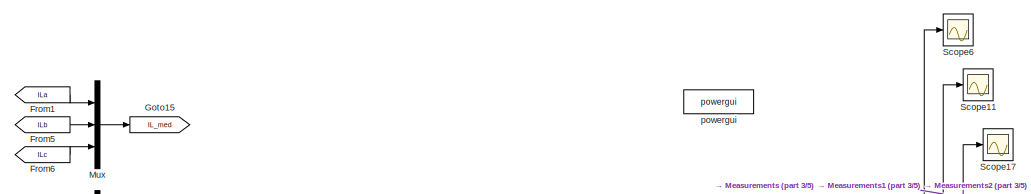
[diagram: root canvas - part 1/5, top left region]
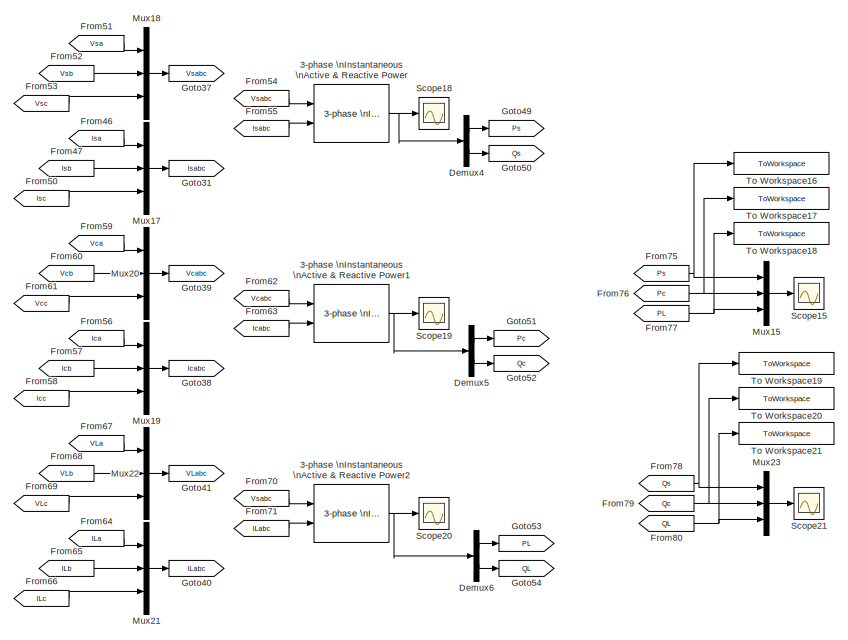
[diagram: root canvas - part 2/5, top right region]
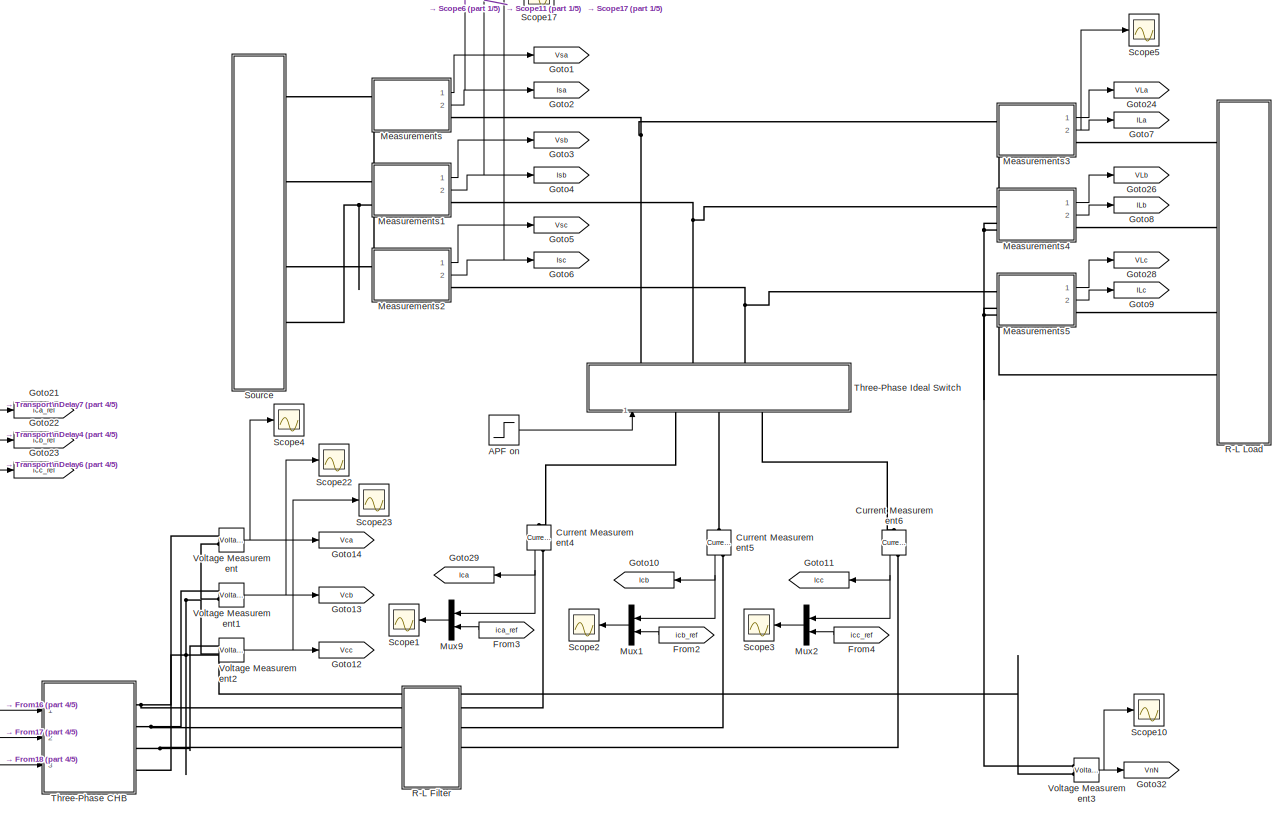
[diagram: root canvas - part 3/5, central region]
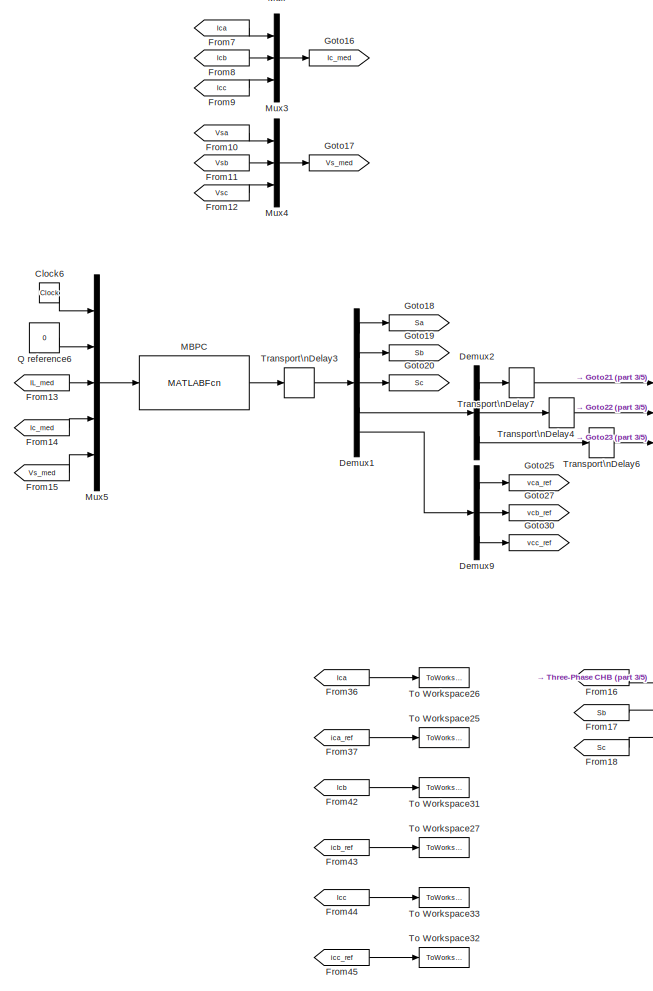
[diagram: root canvas - part 4/5, middle left region]
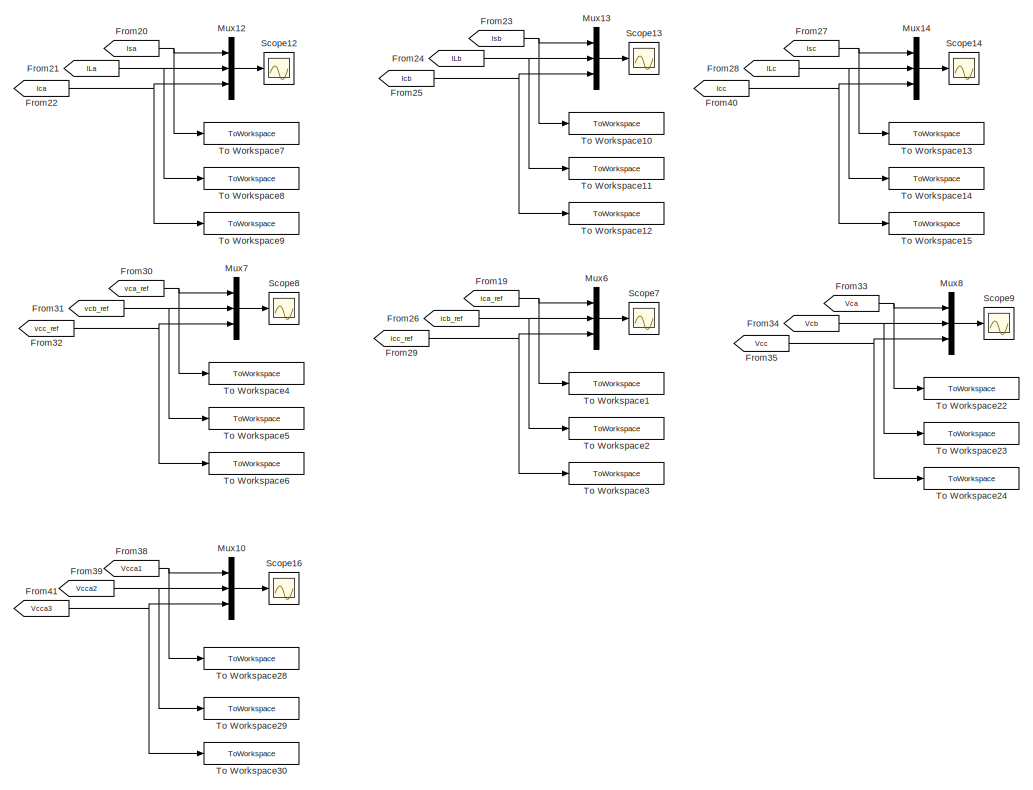
[diagram: root canvas - part 5/5, bottom right region]
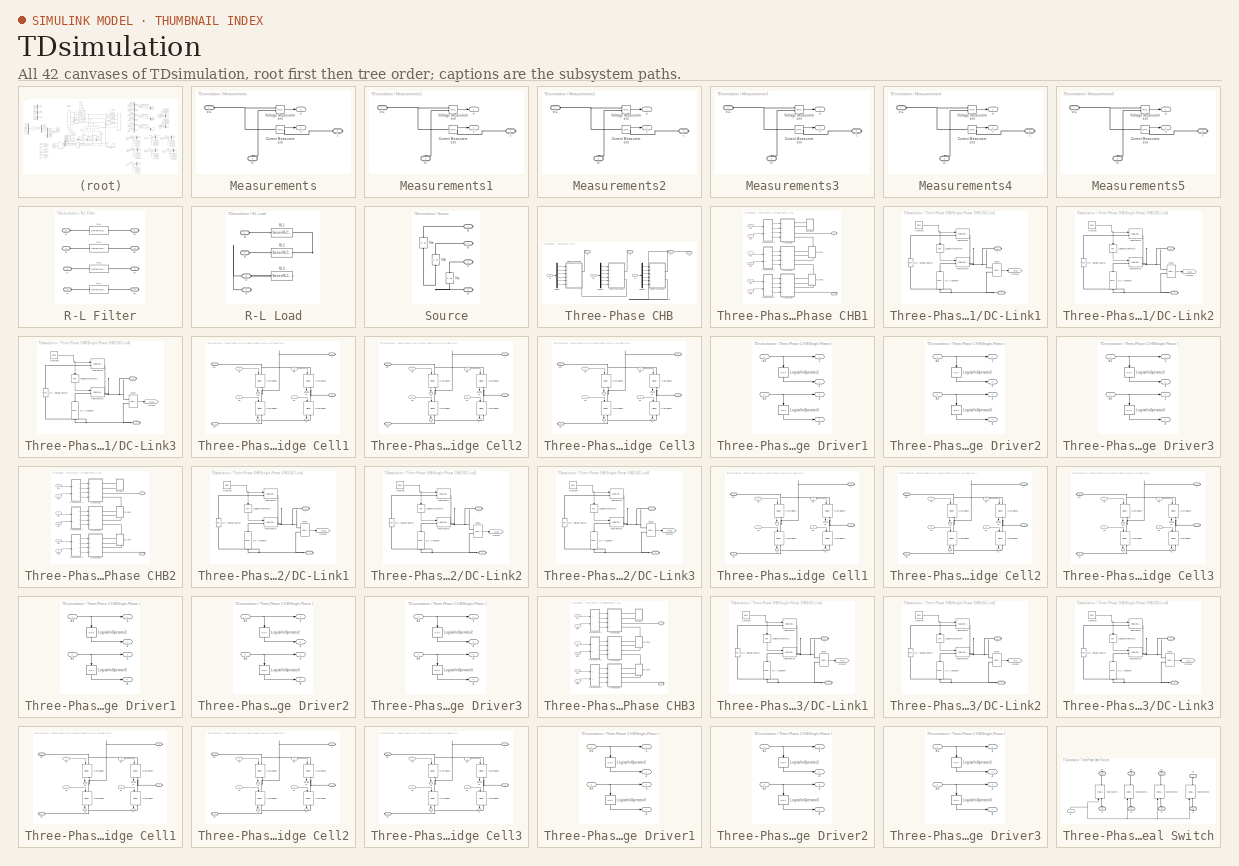
[diagram: thumbnail index - all 42 canvases of the model, root first then tree order]
MODEL TDsimulation
KIND model
CONFIG InitFcn = GlobalParam;
BLOCK [Reference] 3-phase \nInstantaneous \nActive & Reactive Power  REF=powerlib_extras/Measurements/3-phase \nInstantaneous \nActive & Reactive Power
  Ports = [2, 1]
  SID = 2222
  SourceBlock = powerlib_extras/Measurements/3-phase \nInstantaneous \nActive & Reactive Power
  SourceType = 3-phase instantaneous active and reactive power
BLOCK [Reference] 3-phase \nInstantaneous \nActive & Reactive Power1  REF=powerlib_extras/Measurements/3-phase \nInstantaneous \nActive & Reactive Power
  Ports = [2, 1]
  SID = 2223
  SourceBlock = powerlib_extras/Measurements/3-phase \nInstantaneous \nActive & Reactive Power
  SourceType = 3-phase instantaneous active and reactive power
BLOCK [Reference] 3-phase \nInstantaneous \nActive & Reactive Power2  REF=powerlib_extras/Measurements/3-phase \nInstantaneous \nActive & Reactive Power
  Ports = [2, 1]
  SID = 2224
  SourceBlock = powerlib_extras/Measurements/3-phase \nInstantaneous \nActive & Reactive Power
  SourceType = 3-phase instantaneous active and reactive power
BLOCK [Step] APF on
  SID = 980
  SampleTime = 0
  Time = APFon
BLOCK [Clock] Clock6
  SID = 8111
BLOCK [Reference] Current Measurement4  REF=powerlib/Measurements/Current Measurement
  OutputType = Complex
  PSBequivalent = 0
  PhasorSimulation = off
  Ports = [0, 1, 0, 0, 0, 1, 1]
  SID = 2177
  SourceBlock = powerlib/Measurements/Current Measurement
  SourceType = Current Measurement
BLOCK [Reference] Current Measurement5  REF=powerlib/Measurements/Current Measurement
  OutputType = Complex
  PSBequivalent = 0
  PhasorSimulation = off
  Ports = [0, 1, 0, 0, 0, 1, 1]
  SID = 2182
  SourceBlock = powerlib/Measurements/Current Measurement
  SourceType = Current Measurement
BLOCK [Reference] Current Measurement6  REF=powerlib/Measurements/Current Measurement
  OutputType = Complex
  PSBequivalent = 0
  PhasorSimulation = off
  Ports = [0, 1, 0, 0, 0, 1, 1]
  SID = 2187
  SourceBlock = powerlib/Measurements/Current Measurement
  SourceType = Current Measurement
BLOCK [Demux] Demux1
  DisplayOption = bar
  Outputs = 5
  Ports = [1, 5]
  SID = 8112
BLOCK [Demux] Demux2
  DisplayOption = bar
  Outputs = 3
  Ports = [1, 3]
  SID = 8113
BLOCK [Demux] Demux4
  DisplayOption = bar
  Outputs = 2
  Ports = [1, 2]
  SID = 2225
BLOCK [Demux] Demux5
  DisplayOption = bar
  Outputs = 2
  Ports = [1, 2]
  SID = 2226
BLOCK [Demux] Demux6
  DisplayOption = bar
  Outputs = 2
  Ports = [1, 2]
  SID = 2227
BLOCK [Demux] Demux9
  DisplayOption = bar
  Outputs = 3
  Ports = [1, 3]
  SID = 8114
BLOCK [From] From1
  GotoTag = ILa
  SID = 2324
BLOCK [From] From10
  GotoTag = Vsa
  SID = 2330
BLOCK [From] From11
  GotoTag = Vsb
  SID = 2331
BLOCK [From] From12
  GotoTag = Vsc
  SID = 2332
BLOCK [From] From13
  GotoTag = IL_med
  SID = 8115
BLOCK [From] From14
  GotoTag = Ic_med
  SID = 8116
BLOCK [From] From15
  GotoTag = Vs_med
  SID = 8117
BLOCK [From] From16
  GotoTag = Sa
  SID = 2348
BLOCK [From] From17
  GotoTag = Sb
  SID = 2349
BLOCK [From] From18
  GotoTag = Sc
  SID = 2350
BLOCK [From] From19
  GotoTag = ica_ref
  SID = 2489
BLOCK [From] From2
  GotoTag = icb_ref
  SID = 2183
BLOCK [From] From20
  GotoTag = Isa
  SID = 2488
BLOCK [From] From21
  GotoTag = ILa
  SID = 2485
BLOCK [From] From22
  GotoTag = Ica
  SID = 2484
BLOCK [From] From23
  GotoTag = Isb
  SID = 2483
BLOCK [From] From24
  GotoTag = ILb
  SID = 2482
BLOCK [From] From25
  GotoTag = Icb
  SID = 2490
BLOCK [From] From26
  GotoTag = icb_ref
  SID = 2481
BLOCK [From] From27
  GotoTag = Isc
  SID = 2487
BLOCK [From] From28
  GotoTag = ILc
  SID = 2486
BLOCK [From] From29
  GotoTag = icc_ref
  SID = 2480
BLOCK [From] From3
  GotoTag = ica_ref
  SID = 2178
BLOCK [From] From30
  GotoTag = vca_ref
  SID = 2527
BLOCK [From] From31
  GotoTag = vcb_ref
  SID = 2528
BLOCK [From] From32
  GotoTag = vcc_ref
  SID = 2529
BLOCK [From] From33
  GotoTag = Vca
  SID = 2537
BLOCK [From] From34
  GotoTag = Vcb
  SID = 2538
BLOCK [From] From35
  GotoTag = Vcc
  SID = 2539
BLOCK [From] From36
  GotoTag = Ica
  SID = 2550
BLOCK [From] From37
  GotoTag = ica_ref
  SID = 2551
BLOCK [From] From38
  GotoTag = Vcca1
  SID = 2555
  TagVisibility = global
BLOCK [From] From39
  GotoTag = Vcca2
  SID = 2556
  TagVisibility = global
BLOCK [From] From4
  GotoTag = icc_ref
  SID = 2188
BLOCK [From] From40
  GotoTag = Icc
  SID = 2479
BLOCK [From] From41
  GotoTag = Vcca3
  SID = 2557
  TagVisibility = global
BLOCK [From] From42
  GotoTag = Icb
  SID = 7896
BLOCK [From] From43
  GotoTag = icb_ref
  SID = 7897
BLOCK [From] From44
  GotoTag = Icc
  SID = 7900
BLOCK [From] From45
  GotoTag = icc_ref
  SID = 7901
BLOCK [From] From46
  GotoTag = Isa
  SID = 2228
BLOCK [From] From47
  GotoTag = Isb
  SID = 2229
BLOCK [From] From5
  GotoTag = ILb
  SID = 2325
BLOCK [From] From50
  GotoTag = Isc
  SID = 2230
BLOCK [From] From51
  GotoTag = Vsa
  SID = 2231
BLOCK [From] From52
  GotoTag = Vsb
  SID = 2232
BLOCK [From] From53
  GotoTag = Vsc
  SID = 2233
BLOCK [From] From54
  GotoTag = Vsabc
  SID = 2234
BLOCK [From] From55
  GotoTag = Isabc
  SID = 2235
BLOCK [From] From56
  GotoTag = Ica
  SID = 2236
BLOCK [From] From57
  GotoTag = Icb
  SID = 2237
BLOCK [From] From58
  GotoTag = Icc
  SID = 2238
BLOCK [From] From59
  GotoTag = Vca
  SID = 2239
BLOCK [From] From6
  GotoTag = ILc
  SID = 2326
BLOCK [From] From60
  GotoTag = Vcb
  SID = 2240
BLOCK [From] From61
  GotoTag = Vcc
  SID = 2241
BLOCK [From] From62
  GotoTag = Vcabc
  SID = 2242
BLOCK [From] From63
  GotoTag = Icabc
  SID = 2243
BLOCK [From] From64
  GotoTag = ILa
  SID = 2244
BLOCK [From] From65
  GotoTag = ILb
  SID = 2245
BLOCK [From] From66
  GotoTag = ILc
  SID = 2246
BLOCK [From] From67
  GotoTag = VLa
  SID = 2247
BLOCK [From] From68
  GotoTag = VLb
  SID = 2248
BLOCK [From] From69
  GotoTag = VLc
  SID = 2249
BLOCK [From] From7
  GotoTag = Ica
  SID = 2327
BLOCK [From] From70
  GotoTag = Vsabc
  SID = 2250
BLOCK [From] From71
  GotoTag = ILabc
  SID = 2251
BLOCK [From] From75
  GotoTag = Ps
  SID = 2252
BLOCK [From] From76
  GotoTag = Pc
  SID = 2253
BLOCK [From] From77
  GotoTag = PL
  SID = 2254
BLOCK [From] From78
  GotoTag = Qs
  SID = 2255
BLOCK [From] From79
  GotoTag = Qc
  SID = 2256
BLOCK [From] From8
  GotoTag = Icb
  SID = 2328
BLOCK [From] From80
  GotoTag = QL
  SID = 2257
BLOCK [From] From9
  GotoTag = Icc
  SID = 2329
BLOCK [Goto] Goto1
  GotoTag = Vsa
  SID = 439
BLOCK [Goto] Goto10
  GotoTag = Icb
  SID = 2184
BLOCK [Goto] Goto11
  GotoTag = Icc
  SID = 2189
BLOCK [Goto] Goto12
  GotoTag = Vcc
  SID = 2217
BLOCK [Goto] Goto13
  GotoTag = Vcb
  SID = 2218
BLOCK [Goto] Goto14
  GotoTag = Vca
  SID = 2219
BLOCK [Goto] Goto15
  GotoTag = IL_med
  SID = 2337
BLOCK [Goto] Goto16
  GotoTag = Ic_med
  SID = 2338
BLOCK [Goto] Goto17
  GotoTag = Vs_med
  SID = 2339
BLOCK [Goto] Goto18
  GotoTag = Sa
  SID = 8118
BLOCK [Goto] Goto19
  GotoTag = Sb
  SID = 8119
BLOCK [Goto] Goto2
  GotoTag = Isa
  SID = 2159
BLOCK [Goto] Goto20
  GotoTag = Sc
  SID = 8120
BLOCK [Goto] Goto21
  GotoTag = ica_ref
  SID = 8121
BLOCK [Goto] Goto22
  GotoTag = icb_ref
  SID = 8122
BLOCK [Goto] Goto23
  GotoTag = icc_ref
  SID = 8123
BLOCK [Goto] Goto24
  GotoTag = VLa
  SID = 2491
BLOCK [Goto] Goto25
  GotoTag = vca_ref
  SID = 8124
BLOCK [Goto] Goto26
  GotoTag = VLb
  SID = 2493
BLOCK [Goto] Goto27
  GotoTag = vcb_ref
  SID = 8125
BLOCK [Goto] Goto28
  GotoTag = VLc
  SID = 2495
BLOCK [Goto] Goto29
  GotoTag = Ica
  SID = 2179
BLOCK [Goto] Goto3
  GotoTag = Vsb
  SID = 2160
BLOCK [Goto] Goto30
  GotoTag = vcc_ref
  SID = 8126
BLOCK [Goto] Goto31
  GotoTag = Isabc
  SID = 2258
BLOCK [Goto] Goto32
  GotoTag = VnN
  SID = 2545
BLOCK [Goto] Goto37
  GotoTag = Vsabc
  SID = 2259
BLOCK [Goto] Goto38
  GotoTag = Icabc
  SID = 2260
BLOCK [Goto] Goto39
  GotoTag = Vcabc
  SID = 2261
BLOCK [Goto] Goto4
  GotoTag = Isb
  SID = 2161
BLOCK [Goto] Goto40
  GotoTag = ILabc
  SID = 2262
BLOCK [Goto] Goto41
  GotoTag = VLabc
  SID = 2263
BLOCK [Goto] Goto49
  GotoTag = Ps
  SID = 2264
BLOCK [Goto] Goto5
  GotoTag = Vsc
  SID = 2162
BLOCK [Goto] Goto50
  GotoTag = Qs
  SID = 2265
BLOCK [Goto] Goto51
  GotoTag = Pc
  SID = 2266
BLOCK [Goto] Goto52
  GotoTag = Qc
  SID = 2267
BLOCK [Goto] Goto53
  GotoTag = PL
  SID = 2268
BLOCK [Goto] Goto54
  GotoTag = QL
  SID = 2269
BLOCK [Goto] Goto6
  GotoTag = Isc
  SID = 2163
BLOCK [Goto] Goto7
  GotoTag = ILa
  SID = 2168
BLOCK [Goto] Goto8
  GotoTag = ILb
  SID = 2169
BLOCK [Goto] Goto9
  GotoTag = ILc
  SID = 2170
BLOCK [MATLABFcn] MBPC
  MATLABFcn = MBPC
  OutputDimensions = 24
  Ports = [1, 1]
  SID = 8127
BLOCK [SubSystem] Measurements
  Ports = [0, 2, 0, 0, 0, 2, 1]
  RequestExecContextInheritance = off
  SID = 2119
BLOCK [Reference] Measurements/Current Measurement  REF=powerlib/Measurements/Current Measurement
  OutputType = Complex
  PSBequivalent = 0
  PhasorSimulation = off
  Ports = [0, 1, 0, 0, 0, 1, 1]
  SID = 2118
  SourceBlock = powerlib/Measurements/Current Measurement
  SourceType = Current Measurement
  UserDataPersistent = on
BLOCK [Reference] Measurements/Voltage Measurement  REF=powerlib/Measurements/Voltage Measurement
  OutputType = Complex
  PSBequivalent = 0
  PhasorSimulation = off
  Ports = [0, 1, 0, 0, 0, 2]
  SID = 2117
  SourceBlock = powerlib/Measurements/Voltage Measurement
  SourceType = Voltage Measurement
  UserDataPersistent = on
BLOCK [Outport] Measurements/i
  IconDisplay = Port number
  Port = 2
  SID = 2121
BLOCK [PMIOPort] Measurements/i-
  Port = 2
  SID = 2123
  Side = Right
BLOCK [Outport] Measurements/v
  IconDisplay = Port number
  SID = 2120
BLOCK [PMIOPort] Measurements/v-
  Port = 3
  SID = 2124
  Side = Left
BLOCK [PMIOPort] Measurements/vi+
  Port = 1
  SID = 2122
  Side = Left
BLOCK [SubSystem] Measurements1
  Ports = [0, 2, 0, 0, 0, 2, 1]
  RequestExecContextInheritance = off
  SID = 2141
BLOCK [Reference] Measurements1/Current Measurement  REF=powerlib/Measurements/Current Measurement
  OutputType = Complex
  PSBequivalent = 0
  PhasorSimulation = off
  Ports = [0, 1, 0, 0, 0, 1, 1]
  SID = 2142
  SourceBlock = powerlib/Measurements/Current Measurement
  SourceType = Current Measurement
  UserDataPersistent = on
BLOCK [Reference] Measurements1/Voltage Measurement  REF=powerlib/Measurements/Voltage Measurement
  OutputType = Complex
  PSBequivalent = 0
  PhasorSimulation = off
  Ports = [0, 1, 0, 0, 0, 2]
  SID = 2143
  SourceBlock = powerlib/Measurements/Voltage Measurement
  SourceType = Voltage Measurement
  UserDataPersistent = on
BLOCK [Outport] Measurements1/i
  IconDisplay = Port number
  Port = 2
  SID = 2148
BLOCK [PMIOPort] Measurements1/i-
  Port = 2
  SID = 2145
  Side = Right
BLOCK [Outport] Measurements1/v
  IconDisplay = Port number
  SID = 2147
BLOCK [PMIOPort] Measurements1/v-
  Port = 3
  SID = 2146
  Side = Left
BLOCK [PMIOPort] Measurements1/vi+
  Port = 1
  SID = 2144
  Side = Left
BLOCK [SubSystem] Measurements2
  Ports = [0, 2, 0, 0, 0, 2, 1]
  RequestExecContextInheritance = off
  SID = 2149
BLOCK [Reference] Measurements2/Current Measurement  REF=powerlib/Measurements/Current Measurement
  OutputType = Complex
  PSBequivalent = 0
  PhasorSimulation = off
  Ports = [0, 1, 0, 0, 0, 1, 1]
  SID = 2150
  SourceBlock = powerlib/Measurements/Current Measurement
  SourceType = Current Measurement
  UserDataPersistent = on
BLOCK [Reference] Measurements2/Voltage Measurement  REF=powerlib/Measurements/Voltage Measurement
  OutputType = Complex
  PSBequivalent = 0
  PhasorSimulation = off
  Ports = [0, 1, 0, 0, 0, 2]
  SID = 2151
  SourceBlock = powerlib/Measurements/Voltage Measurement
  SourceType = Voltage Measurement
  UserDataPersistent = on
BLOCK [Outport] Measurements2/i
  IconDisplay = Port number
  Port = 2
  SID = 2156
BLOCK [PMIOPort] Measurements2/i-
  Port = 2
  SID = 2153
  Side = Right
BLOCK [Outport] Measurements2/v
  IconDisplay = Port number
  SID = 2155
BLOCK [PMIOPort] Measurements2/v-
  Port = 3
  SID = 2154
  Side = Left
BLOCK [PMIOPort] Measurements2/vi+
  Port = 1
  SID = 2152
  Side = Left
BLOCK [SubSystem] Measurements3
  Ports = [0, 2, 0, 0, 0, 2, 1]
  RequestExecContextInheritance = off
  SID = 2497
BLOCK [Reference] Measurements3/Current Measurement  REF=powerlib/Measurements/Current Measurement
  OutputType = Complex
  PSBequivalent = 0
  PhasorSimulation = off
  Ports = [0, 1, 0, 0, 0, 1, 1]
  SID = 2498
  SourceBlock = powerlib/Measurements/Current Measurement
  SourceType = Current Measurement
  UserDataPersistent = on
BLOCK [Reference] Measurements3/Voltage Measurement  REF=powerlib/Measurements/Voltage Measurement
  OutputType = Complex
  PSBequivalent = 0
  PhasorSimulation = off
  Ports = [0, 1, 0, 0, 0, 2]
  SID = 2499
  SourceBlock = powerlib/Measurements/Voltage Measurement
  SourceType = Voltage Measurement
  UserDataPersistent = on
BLOCK [Outport] Measurements3/i
  IconDisplay = Port number
  Port = 2
  SID = 2504
BLOCK [PMIOPort] Measurements3/i-
  Port = 2
  SID = 2501
  Side = Right
BLOCK [Outport] Measurements3/v
  IconDisplay = Port number
  SID = 2503
BLOCK [PMIOPort] Measurements3/v-
  Port = 3
  SID = 2502
  Side = Left
BLOCK [PMIOPort] Measurements3/vi+
  Port = 1
  SID = 2500
  Side = Left
BLOCK [SubSystem] Measurements4
  Ports = [0, 2, 0, 0, 0, 2, 1]
  RequestExecContextInheritance = off
  SID = 2505
BLOCK [Reference] Measurements4/Current Measurement  REF=powerlib/Measurements/Current Measurement
  OutputType = Complex
  PSBequivalent = 0
  PhasorSimulation = off
  Ports = [0, 1, 0, 0, 0, 1, 1]
  SID = 2506
  SourceBlock = powerlib/Measurements/Current Measurement
  SourceType = Current Measurement
  UserDataPersistent = on
BLOCK [Reference] Measurements4/Voltage Measurement  REF=powerlib/Measurements/Voltage Measurement
  OutputType = Complex
  PSBequivalent = 0
  PhasorSimulation = off
  Ports = [0, 1, 0, 0, 0, 2]
  SID = 2507
  SourceBlock = powerlib/Measurements/Voltage Measurement
  SourceType = Voltage Measurement
  UserDataPersistent = on
BLOCK [Outport] Measurements4/i
  IconDisplay = Port number
  Port = 2
  SID = 2512
BLOCK [PMIOPort] Measurements4/i-
  Port = 2
  SID = 2509
  Side = Right
BLOCK [Outport] Measurements4/v
  IconDisplay = Port number
  SID = 2511
BLOCK [PMIOPort] Measurements4/v-
  Port = 3
  SID = 2510
  Side = Left
BLOCK [PMIOPort] Measurements4/vi+
  Port = 1
  SID = 2508
  Side = Left
BLOCK [SubSystem] Measurements5
  Ports = [0, 2, 0, 0, 0, 2, 1]
  RequestExecContextInheritance = off
  SID = 2513
BLOCK [Reference] Measurements5/Current Measurement  REF=powerlib/Measurements/Current Measurement
  OutputType = Complex
  PSBequivalent = 0
  PhasorSimulation = off
  Ports = [0, 1, 0, 0, 0, 1, 1]
  SID = 2514
  SourceBlock = powerlib/Measurements/Current Measurement
  SourceType = Current Measurement
  UserDataPersistent = on
BLOCK [Reference] Measurements5/Voltage Measurement  REF=powerlib/Measurements/Voltage Measurement
  OutputType = Complex
  PSBequivalent = 0
  PhasorSimulation = off
  Ports = [0, 1, 0, 0, 0, 2]
  SID = 2515
  SourceBlock = powerlib/Measurements/Voltage Measurement
  SourceType = Voltage Measurement
  UserDataPersistent = on
BLOCK [Outport] Measurements5/i
  IconDisplay = Port number
  Port = 2
  SID = 2520
BLOCK [PMIOPort] Measurements5/i-
  Port = 2
  SID = 2517
  Side = Right
BLOCK [Outport] Measurements5/v
  IconDisplay = Port number
  SID = 2519
BLOCK [PMIOPort] Measurements5/v-
  Port = 3
  SID = 2518
  Side = Left
BLOCK [PMIOPort] Measurements5/vi+
  Port = 1
  SID = 2516
  Side = Left
BLOCK [Mux] Mux
  DisplayOption = bar
  Inputs = 3
  Ports = [3, 1]
  SID = 2333
BLOCK [Mux] Mux1
  DisplayOption = bar
  Inputs = 2
  Ports = [2, 1]
  SID = 2185
BLOCK [Mux] Mux10
  DisplayOption = bar
  Inputs = 3
  Ports = [3, 1]
  SID = 2558
BLOCK [Mux] Mux12
  DisplayOption = bar
  Inputs = 3
  Ports = [3, 1]
  SID = 2478
BLOCK [Mux] Mux13
  DisplayOption = bar
  Inputs = 3
  Ports = [3, 1]
  SID = 2477
BLOCK [Mux] Mux14
  DisplayOption = bar
  Inputs = 3
  Ports = [3, 1]
  SID = 2476
BLOCK [Mux] Mux15
  DisplayOption = bar
  Inputs = 3
  Ports = [3, 1]
  SID = 2270
BLOCK [Mux] Mux17
  DisplayOption = bar
  Inputs = 3
  Ports = [3, 1]
  SID = 2271
BLOCK [Mux] Mux18
  DisplayOption = bar
  Inputs = 3
  Ports = [3, 1]
  SID = 2272
BLOCK [Mux] Mux19
  DisplayOption = bar
  Inputs = 3
  Ports = [3, 1]
  SID = 2273
BLOCK [Mux] Mux2
  DisplayOption = bar
  Inputs = 2
  Ports = [2, 1]
  SID = 2190
BLOCK [Mux] Mux20
  DisplayOption = bar
  Inputs = 3
  Ports = [3, 1]
  SID = 2274
BLOCK [Mux] Mux21
  DisplayOption = bar
  Inputs = 3
  Ports = [3, 1]
  SID = 2275
BLOCK [Mux] Mux22
  DisplayOption = bar
  Inputs = 3
  Ports = [3, 1]
  SID = 2276
BLOCK [Mux] Mux23
  DisplayOption = bar
  Inputs = 3
  Ports = [3, 1]
  SID = 2277
BLOCK [Mux] Mux3
  DisplayOption = bar
  Inputs = 3
  Ports = [3, 1]
  SID = 2334
BLOCK [Mux] Mux4
  DisplayOption = bar
  Inputs = 3
  Ports = [3, 1]
  SID = 2335
BLOCK [Mux] Mux5
  DisplayOption = bar
  Inputs = 5
  Ports = [5, 1]
  SID = 8128
BLOCK [Mux] Mux6
  DisplayOption = bar
  Inputs = 3
  Ports = [3, 1]
  SID = 2475
BLOCK [Mux] Mux7
  DisplayOption = bar
  Inputs = 3
  Ports = [3, 1]
  SID = 2530
BLOCK [Mux] Mux8
  DisplayOption = bar
  Inputs = 3
  Ports = [3, 1]
  SID = 2540
BLOCK [Mux] Mux9
  DisplayOption = bar
  Inputs = 2
  Ports = [2, 1]
  SID = 2180
BLOCK [Constant] Q reference6
  SID = 8129
  Value = 0
BLOCK [SubSystem] R-L Filter
  Ports = [0, 0, 0, 0, 0, 4, 4]
  RequestExecContextInheritance = off
  SID = 2036
BLOCK [Reference] R-L Filter/RL1  REF=powerlib/Elements/Series RLC Branch
  BranchType = RL
  Capacitance = 1e-6
  Inductance = Lf
  InitialCurrent = 0
  InitialVoltage = 0
  LConnTagsString = __new0
  Measurements = None
  Ports = [0, 0, 0, 0, 0, 1, 1]
  RConnTagsString = __new0
  Resistance = Rf
  SID = 2037
  SetiL0 = off
  Setx0 = off
  SourceBlock = powerlib/Elements/Series RLC Branch
  SourceType = Series RLC Branch
BLOCK [Reference] R-L Filter/RL2  REF=powerlib/Elements/Series RLC Branch
  BranchType = RL
  Capacitance = 1e-6
  Inductance = Lf
  InitialCurrent = 0
  InitialVoltage = 0
  LConnTagsString = __new0
  Measurements = None
  Ports = [0, 0, 0, 0, 0, 1, 1]
  RConnTagsString = __new0
  Resistance = Rf
  SID = 2038
  SetiL0 = off
  Setx0 = off
  SourceBlock = powerlib/Elements/Series RLC Branch
  SourceType = Series RLC Branch
BLOCK [Reference] R-L Filter/RL3  REF=powerlib/Elements/Series RLC Branch
  BranchType = RL
  Capacitance = 1e-6
  Inductance = Lf
  InitialCurrent = 0
  InitialVoltage = 0
  LConnTagsString = __new0
  Measurements = None
  Ports = [0, 0, 0, 0, 0, 1, 1]
  RConnTagsString = __new0
  Resistance = Rf
  SID = 2039
  SetiL0 = off
  Setx0 = off
  SourceBlock = powerlib/Elements/Series RLC Branch
  SourceType = Series RLC Branch
BLOCK [Reference] R-L Filter/RL4  REF=powerlib/Elements/Series RLC Branch
  BranchType = RL
  Capacitance = 1e-6
  Inductance = Lf
  InitialCurrent = 0
  InitialVoltage = 0
  LConnTagsString = __new0
  Measurements = None
  Ports = [0, 0, 0, 0, 0, 1, 1]
  RConnTagsString = __new0
  Resistance = Rf
  SID = 2047
  SetiL0 = off
  Setx0 = off
  SourceBlock = powerlib/Elements/Series RLC Branch
  SourceType = Series RLC Branch
BLOCK [PMIOPort] R-L Filter/ai
  Port = 1
  SID = 2040
  Side = Left
BLOCK [PMIOPort] R-L Filter/ao
  Port = 4
  SID = 2044
  Side = Right
BLOCK [PMIOPort] R-L Filter/bi
  Port = 2
  SID = 2041
  Side = Left
BLOCK [PMIOPort] R-L Filter/bo
  Port = 5
  SID = 2045
  Side = Right
BLOCK [PMIOPort] R-L Filter/ci
  Port = 3
  SID = 2042
  Side = Left
BLOCK [PMIOPort] R-L Filter/co
  Port = 6
  SID = 2046
  Side = Right
BLOCK [PMIOPort] R-L Filter/ni
  Port = 7
  SID = 2048
  Side = Left
BLOCK [PMIOPort] R-L Filter/no
  Port = 8
  SID = 2049
  Side = Right
BLOCK [SubSystem] R-L Load
  Ports = [0, 0, 0, 0, 0, 4]
  RequestExecContextInheritance = off
  SID = 6956
BLOCK [Reference] R-L Load/RL1  REF=powerlib/Elements/Series RLC Branch
  BranchType = RL
  Capacitance = 1e-6
  Inductance = LL
  InitialCurrent = 0
  InitialVoltage = 0
  LConnTagsString = __new0
  Measurements = None
  Ports = [0, 0, 0, 0, 0, 1, 1]
  RConnTagsString = __new0
  Resistance = RL
  SID = 6957
  SetiL0 = off
  Setx0 = off
  SourceBlock = powerlib/Elements/Series RLC Branch
  SourceType = Series RLC Branch
BLOCK [Reference] R-L Load/RL2  REF=powerlib/Elements/Series RLC Branch
  BranchType = RL
  Capacitance = 1e-6
  Inductance = LL
  InitialCurrent = 0
  InitialVoltage = 0
  LConnTagsString = __new0
  Measurements = None
  Ports = [0, 0, 0, 0, 0, 1, 1]
  RConnTagsString = __new0
  Resistance = RL
  SID = 6958
  SetiL0 = off
  Setx0 = off
  SourceBlock = powerlib/Elements/Series RLC Branch
  SourceType = Series RLC Branch
BLOCK [Reference] R-L Load/RL3  REF=powerlib/Elements/Series RLC Branch
  BranchType = RL
  Capacitance = 1e-6
  Inductance = LL
  InitialCurrent = 0
  InitialVoltage = 0
  LConnTagsString = __new0
  Measurements = None
  Ports = [0, 0, 0, 0, 0, 1, 1]
  RConnTagsString = __new0
  Resistance = RL
  SID = 6959
  SetiL0 = off
  Setx0 = off
  SourceBlock = powerlib/Elements/Series RLC Branch
  SourceType = Series RLC Branch
BLOCK [PMIOPort] R-L Load/a
  Port = 1
  SID = 6960
  Side = Left
BLOCK [PMIOPort] R-L Load/b
  Port = 2
  SID = 6961
  Side = Left
BLOCK [PMIOPort] R-L Load/c
  Port = 3
  SID = 6962
  Side = Left
BLOCK [PMIOPort] R-L Load/n
  Port = 4
  SID = 6963
  Side = Left
BLOCK [Scope] Scope1
  Floating = off
  LimitDataPoints = off
  NumInputPorts = 1
  Ports = [1]
  SID = 2181
  SampleTime = 0
  SaveName = Vo
  SaveToWorkspace = on
  ShowLegends = off
  YMax = 65
  YMin = -15
BLOCK [Scope] Scope10
  DataFormat = StructureWithTime
  Floating = off
  LimitDataPoints = off
  NumInputPorts = 1
  Ports = [1]
  SID = 2546
  SampleTime = 0
  SaveName = vNn
  SaveToWorkspace = on
  ShowLegends = off
  YMax = 37500
  YMin = -2500
  ZoomMode = xonly
BLOCK [Scope] Scope11
  DataFormat = StructureWithTime
  Floating = off
  LimitDataPoints = off
  NumInputPorts = 1
  Ports = [1]
  SID = 7894
  SampleTime = 0
  SaveName = isb
  SaveToWorkspace = on
  ShowLegends = off
  YMax = -9.4
  YMin = -10.7
BLOCK [Scope] Scope12
  Floating = off
  LimitDataPoints = off
  NumInputPorts = 1
  Ports = [1]
  SID = 2474
  SampleTime = 0
  SaveName = Vo11
  SaveToWorkspace = on
  ShowLegends = off
  YMax = 11
  YMin = -11
BLOCK [Scope] Scope13
  Floating = off
  LimitDataPoints = off
  NumInputPorts = 1
  Ports = [1]
  SID = 2473
  SampleTime = 0
  SaveName = Vo12
  SaveToWorkspace = on
  ShowLegends = off
  YMax = 11
  YMin = -11
BLOCK [Scope] Scope14
  Floating = off
  LimitDataPoints = off
  NumInputPorts = 1
  Ports = [1]
  SID = 2472
  SampleTime = 0
  SaveName = Vo13
  SaveToWorkspace = on
  ShowLegends = off
  YMax = 575
  YMin = 25
BLOCK [Scope] Scope15
  Floating = off
  LimitDataPoints = off
  NumInputPorts = 1
  Ports = [1]
  SID = 2278
  SampleTime = 0
  SaveName = Vo14
  SaveToWorkspace = on
  ShowLegends = off
  YMax = 4250
  YMin = -750
BLOCK [Scope] Scope16
  Floating = off
  LimitDataPoints = off
  NumInputPorts = 1
  Ports = [1]
  SID = 2559
  SampleTime = 0
  SaveName = Vo15
  SaveToWorkspace = on
  ShowLegends = off
  TimeRange = 0.1
  YMax = 75
  YMin = 27.5
BLOCK [Scope] Scope17
  DataFormat = StructureWithTime
  Floating = off
  LimitDataPoints = off
  NumInputPorts = 1
  Ports = [1]
  SID = 7895
  SampleTime = 0
  SaveName = isc
  SaveToWorkspace = on
  ShowLegends = off
  YMax = -9.4
  YMin = -10.7
BLOCK [Scope] Scope18
  Floating = off
  LimitDataPoints = off
  NumInputPorts = 1
  Ports = [1]
  SID = 2279
  SampleTime = 0
  SaveName = Vo17
  SaveToWorkspace = on
  ShowLegends = off
  YMax = 5500
  YMin = -1500
  ZoomMode = yonly
BLOCK [Scope] Scope19
  Floating = off
  LimitDataPoints = off
  NumInputPorts = 1
  Ports = [1]
  SID = 2280
  SampleTime = 0
  SaveName = Vo18
  SaveToWorkspace = on
  ShowLegends = off
  YMax = 5500
  YMin = -1500
  ZoomMode = yonly
BLOCK [Scope] Scope2
  Floating = off
  LimitDataPoints = off
  NumInputPorts = 1
  Ports = [1]
  SID = 2186
  SampleTime = 0
  SaveName = Vo1
  SaveToWorkspace = on
  ShowLegends = off
  YMax = 6.5
  YMin = -2.5
BLOCK [Scope] Scope20
  Floating = off
  LimitDataPoints = off
  NumInputPorts = 1
  Ports = [1]
  SID = 2281
  SampleTime = 0
  SaveName = Vo19
  SaveToWorkspace = on
  ShowLegends = off
  YMax = 5500
  YMin = -1500
  ZoomMode = yonly
BLOCK [Scope] Scope21
  Floating = off
  LimitDataPoints = off
  NumInputPorts = 1
  Ports = [1]
  SID = 2282
  SampleTime = 0
  SaveName = Vo20
  SaveToWorkspace = on
  ShowLegends = off
  TimeRange = 0.1
  YMax = 4000
  YMin = -400
BLOCK [Scope] Scope22
  DataFormat = StructureWithTime
  Floating = off
  LimitDataPoints = off
  NumInputPorts = 1
  Ports = [1]
  SID = 7904
  SampleTime = 0
  SaveName = vcb
  SaveToWorkspace = on
  ShowLegends = off
  YMax = 37500
  YMin = -2500
BLOCK [Scope] Scope23
  DataFormat = StructureWithTime
  Floating = off
  LimitDataPoints = off
  NumInputPorts = 1
  Ports = [1]
  SID = 7905
  SampleTime = 0
  SaveName = vcc
  SaveToWorkspace = on
  ShowLegends = off
  YMax = 37500
  YMin = -2500
BLOCK [Scope] Scope3
  Floating = off
  LimitDataPoints = off
  NumInputPorts = 1
  Ports = [1]
  SID = 2191
  SampleTime = 0
  SaveName = Vo2
  SaveToWorkspace = on
  ShowLegends = off
  YMax = 6.5
  YMin = -2.5
BLOCK [Scope] Scope4
  DataFormat = StructureWithTime
  Floating = off
  LimitDataPoints = off
  NumInputPorts = 1
  Ports = [1]
  SID = 535
  SampleTime = 0
  SaveName = vca
  SaveToWorkspace = on
  ShowLegends = off
  YMax = 37500
  YMin = -2500
BLOCK [Scope] Scope5
  DataFormat = StructureWithTime
  Floating = off
  LimitDataPoints = off
  NumInputPorts = 1
  Ports = [1]
  SID = 2220
  SampleTime = 0
  SaveName = iLa
  SaveToWorkspace = on
  ShowLegends = off
  YMax = 37500
  YMin = -2500
BLOCK [Scope] Scope6
  DataFormat = StructureWithTime
  Floating = off
  LimitDataPoints = off
  NumInputPorts = 1
  Ports = [1]
  SID = 2221
  SampleTime = 0
  SaveName = isa
  SaveToWorkspace = on
  ShowLegends = off
  YMax = -9.4
  YMin = -10.7
BLOCK [Scope] Scope7
  Floating = off
  LimitDataPoints = off
  NumInputPorts = 1
  Ports = [1]
  SID = 2471
  SampleTime = 0
  SaveName = Vo6
  SaveToWorkspace = on
  ShowLegends = off
  YMax = 575
  YMin = 25
BLOCK [Scope] Scope8
  Floating = off
  LimitDataPoints = off
  NumInputPorts = 1
  Ports = [1]
  SID = 2531
  SampleTime = 0
  SaveName = Vo7
  SaveToWorkspace = on
  ShowLegends = off
  YMax = 575
  YMin = 25
BLOCK [Scope] Scope9
  Floating = off
  LimitDataPoints = off
  NumInputPorts = 1
  Ports = [1]
  SID = 2541
  SampleTime = 0
  SaveName = Vo8
  SaveToWorkspace = on
  ShowLegends = off
  YMax = 575
  YMin = 25
BLOCK [SubSystem] Source
  Ports = [0, 0, 0, 0, 0, 0, 4]
  RequestExecContextInheritance = off
  SID = 1110
BLOCK [Reference] Source/Vsa  REF=powerlib/Electrical\nSources/AC Voltage Source
  Amplitude = Vs
  Frequency = fe
  Measurements = None
  Phase = tetaa
  Ports = [0, 0, 0, 0, 0, 1, 1]
  SID = 1104
  SampleTime = 0
  SourceBlock = powerlib/Electrical\nSources/AC Voltage Source
  SourceType = AC Voltage Source
BLOCK [Reference] Source/Vsb  REF=powerlib/Electrical\nSources/AC Voltage Source
  Amplitude = Vs
  Frequency = fe
  Measurements = None
  Phase = tetab
  Ports = [0, 0, 0, 0, 0, 1, 1]
  SID = 1106
  SampleTime = 0
  SourceBlock = powerlib/Electrical\nSources/AC Voltage Source
  SourceType = AC Voltage Source
BLOCK [Reference] Source/Vsc  REF=powerlib/Electrical\nSources/AC Voltage Source
  Amplitude = Vs
  Frequency = fe
  Measurements = None
  Phase = tetac
  Ports = [0, 0, 0, 0, 0, 1, 1]
  SID = 1108
  SampleTime = 0
  SourceBlock = powerlib/Electrical\nSources/AC Voltage Source
  SourceType = AC Voltage Source
BLOCK [PMIOPort] Source/a
  Port = 1
  SID = 1111
  Side = Right
BLOCK [PMIOPort] Source/b
  Port = 2
  SID = 1112
  Side = Right
BLOCK [PMIOPort] Source/c
  Port = 3
  SID = 1113
  Side = Right
BLOCK [PMIOPort] Source/n
  Port = 4
  SID = 1114
  Side = Right
BLOCK [SubSystem] Three-Phase CHB
  Ports = [3, 0, 0, 0, 0, 0, 4]
  RequestExecContextInheritance = off
  SID = 2028
BLOCK [Demux] Three-Phase CHB/Demux
  DisplayOption = bar
  Outputs = 6
  Ports = [1, 6]
  SID = 2025
BLOCK [Demux] Three-Phase CHB/Demux1
  DisplayOption = bar
  Outputs = 6
  Ports = [1, 6]
  SID = 2026
BLOCK [Demux] Three-Phase CHB/Demux2
  DisplayOption = bar
  Outputs = 6
  Ports = [1, 6]
  SID = 2027
BLOCK [Inport] Three-Phase CHB/Sa
  IconDisplay = Port number
  SID = 2029
BLOCK [Inport] Three-Phase CHB/Sb
  IconDisplay = Port number
  Port = 2
  SID = 2030
BLOCK [Inport] Three-Phase CHB/Sc
  IconDisplay = Port number
  Port = 3
  SID = 2031
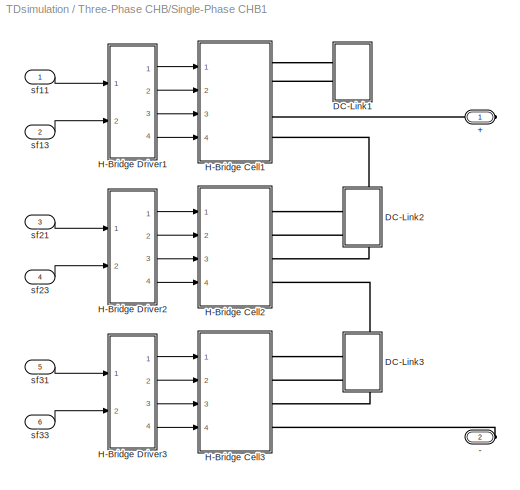
BLOCK [SubSystem] Three-Phase CHB/Single-Phase CHB1
  Ports = [6, 0, 0, 0, 0, 0, 2]
  RequestExecContextInheritance = off
  SID = 1683
BLOCK [PMIOPort] Three-Phase CHB/Single-Phase CHB1/+
  Port = 1
  SID = 1795
  Side = Right
BLOCK [PMIOPort] Three-Phase CHB/Single-Phase CHB1/-
  Port = 2
  SID = 1796
  Side = Right
BLOCK [SubSystem] Three-Phase CHB/Single-Phase CHB1/DC-Link1
  Ports = [0, 0, 0, 0, 0, 0, 2]
  RequestExecContextInheritance = off
  SID = 1690
BLOCK [PMIOPort] Three-Phase CHB/Single-Phase CHB1/DC-Link1/+
  Port = 1
  SID = 1697
  Side = Right
BLOCK [PMIOPort] Three-Phase CHB/Single-Phase CHB1/DC-Link1/-
  Port = 2
  SID = 1698
  Side = Right
BLOCK [Constant] Three-Phase CHB/Single-Phase CHB1/DC-Link1/Constant
  SID = 1691
  Value = Ideal
BLOCK [Reference] Three-Phase CHB/Single-Phase CHB1/DC-Link1/DC Capacitor  REF=powerlib/Elements/Series RLC Branch
  BranchType = C
  Capacitance = Cdc
  Inductance = 0.002996
  InitialCurrent = 0
  InitialVoltage = Vodc
  LConnTagsString = __new0
  Measurements = None
  Ports = [0, 0, 0, 0, 0, 1, 1]
  RConnTagsString = __new0
  Resistance = 0.09
  SID = 1692
  SetiL0 = off
  Setx0 = on
  SourceBlock = powerlib/Elements/Series RLC Branch
  SourceType = Series RLC Branch
BLOCK [Reference] Three-Phase CHB/Single-Phase CHB1/DC-Link1/DC Voltage Source  REF=powerlib/Electrical\nSources/DC Voltage Source
  Amplitude = Vdc
  Measurements = None
  Ports = [0, 0, 0, 0, 0, 1, 1]
  SID = 1693
  SourceBlock = powerlib/Electrical\nSources/DC Voltage Source
  SourceType = DC Voltage Source
BLOCK [Goto] Three-Phase CHB/Single-Phase CHB1/DC-Link1/Goto16
  GotoTag = Vcca1
  SID = 2563
  TagVisibility = global
BLOCK [Reference] Three-Phase CHB/Single-Phase CHB1/DC-Link1/Ideal Switch  REF=powerlib/Power\nElectronics/Ideal Switch
  Cs = inf
  IC = 0
  Lon = 0
  Measurements = on
  Ports = [1, 1, 0, 0, 0, 1, 1]
  Ron = 0.001
  Rs = 1e5
  SID = 1694
  SourceBlock = powerlib/Power\nElectronics/Ideal Switch
  SourceType = Ideal Switch
BLOCK [Reference] Three-Phase CHB/Single-Phase CHB1/DC-Link1/Ideal Switch1  REF=powerlib/Power\nElectronics/Ideal Switch
  Cs = inf
  IC = 0
  Lon = 0
  Measurements = on
  Ports = [1, 1, 0, 0, 0, 1, 1]
  Ron = 0.001
  Rs = 1e5
  SID = 1695
  SourceBlock = powerlib/Power\nElectronics/Ideal Switch
  SourceType = Ideal Switch
BLOCK [Logic] Three-Phase CHB/Single-Phase CHB1/DC-Link1/Logical\nOperator2
  AllPortsSameDT = off
  Operator = NOT
  OutDataTypeStr = boolean
  Ports = [1, 1]
  SID = 1696
BLOCK [Reference] Three-Phase CHB/Single-Phase CHB1/DC-Link1/Vcan3  REF=powerlib/Measurements/Voltage Measurement
  OutputType = Complex
  PSBequivalent = 0
  PhasorSimulation = off
  Ports = [0, 1, 0, 0, 0, 2]
  SID = 2564
  SourceBlock = powerlib/Measurements/Voltage Measurement
  SourceType = Voltage Measurement
BLOCK [SubSystem] Three-Phase CHB/Single-Phase CHB1/DC-Link2
  Ports = [0, 0, 0, 0, 0, 0, 2]
  RequestExecContextInheritance = off
  SID = 2355
BLOCK [PMIOPort] Three-Phase CHB/Single-Phase CHB1/DC-Link2/+
  Port = 1
  SID = 2362
  Side = Right
BLOCK [PMIOPort] Three-Phase CHB/Single-Phase CHB1/DC-Link2/-
  Port = 2
  SID = 2363
  Side = Right
BLOCK [Constant] Three-Phase CHB/Single-Phase CHB1/DC-Link2/Constant
  SID = 2356
  Value = Ideal
BLOCK [Reference] Three-Phase CHB/Single-Phase CHB1/DC-Link2/DC Capacitor  REF=powerlib/Elements/Series RLC Branch
  BranchType = C
  Capacitance = Cdc
  Inductance = 0.002996
  InitialCurrent = 0
  InitialVoltage = Vodc
  LConnTagsString = __new0
  Measurements = None
  Ports = [0, 0, 0, 0, 0, 1, 1]
  RConnTagsString = __new0
  Resistance = 0.09
  SID = 2357
  SetiL0 = off
  Setx0 = on
  SourceBlock = powerlib/Elements/Series RLC Branch
  SourceType = Series RLC Branch
BLOCK [Reference] Three-Phase CHB/Single-Phase CHB1/DC-Link2/DC Voltage Source  REF=powerlib/Electrical\nSources/DC Voltage Source
  Amplitude = Vdc
  Measurements = None
  Ports = [0, 0, 0, 0, 0, 1, 1]
  SID = 2358
  SourceBlock = powerlib/Electrical\nSources/DC Voltage Source
  SourceType = DC Voltage Source
BLOCK [Goto] Three-Phase CHB/Single-Phase CHB1/DC-Link2/Goto16
  GotoTag = Vcca2
  SID = 2570
  TagVisibility = global
BLOCK [Reference] Three-Phase CHB/Single-Phase CHB1/DC-Link2/Ideal Switch  REF=powerlib/Power\nElectronics/Ideal Switch
  Cs = inf
  IC = 0
  Lon = 0
  Measurements = on
  Ports = [1, 1, 0, 0, 0, 1, 1]
  Ron = 0.001
  Rs = 1e5
  SID = 2359
  SourceBlock = powerlib/Power\nElectronics/Ideal Switch
  SourceType = Ideal Switch
BLOCK [Reference] Three-Phase CHB/Single-Phase CHB1/DC-Link2/Ideal Switch1  REF=powerlib/Power\nElectronics/Ideal Switch
  Cs = inf
  IC = 0
  Lon = 0
  Measurements = on
  Ports = [1, 1, 0, 0, 0, 1, 1]
  Ron = 0.001
  Rs = 1e5
  SID = 2360
  SourceBlock = powerlib/Power\nElectronics/Ideal Switch
  SourceType = Ideal Switch
BLOCK [Logic] Three-Phase CHB/Single-Phase CHB1/DC-Link2/Logical\nOperator2
  AllPortsSameDT = off
  Operator = NOT
  OutDataTypeStr = boolean
  Ports = [1, 1]
  SID = 2361
BLOCK [Reference] Three-Phase CHB/Single-Phase CHB1/DC-Link2/Vcan3  REF=powerlib/Measurements/Voltage Measurement
  OutputType = Complex
  PSBequivalent = 0
  PhasorSimulation = off
  Ports = [0, 1, 0, 0, 0, 2]
  SID = 2571
  SourceBlock = powerlib/Measurements/Voltage Measurement
  SourceType = Voltage Measurement
BLOCK [SubSystem] Three-Phase CHB/Single-Phase CHB1/DC-Link3
  Ports = [0, 0, 0, 0, 0, 0, 2]
  RequestExecContextInheritance = off
  SID = 2364
BLOCK [PMIOPort] Three-Phase CHB/Single-Phase CHB1/DC-Link3/+
  Port = 1
  SID = 2371
  Side = Right
BLOCK [PMIOPort] Three-Phase CHB/Single-Phase CHB1/DC-Link3/-
  Port = 2
  SID = 2372
  Side = Right
BLOCK [Constant] Three-Phase CHB/Single-Phase CHB1/DC-Link3/Constant
  SID = 2365
  Value = Ideal
BLOCK [Reference] Three-Phase CHB/Single-Phase CHB1/DC-Link3/DC Capacitor  REF=powerlib/Elements/Series RLC Branch
  BranchType = C
  Capacitance = Cdc
  Inductance = 0.002996
  InitialCurrent = 0
  InitialVoltage = Vodc
  LConnTagsString = __new0
  Measurements = None
  Ports = [0, 0, 0, 0, 0, 1, 1]
  RConnTagsString = __new0
  Resistance = 0.09
  SID = 2366
  SetiL0 = off
  Setx0 = on
  SourceBlock = powerlib/Elements/Series RLC Branch
  SourceType = Series RLC Branch
BLOCK [Reference] Three-Phase CHB/Single-Phase CHB1/DC-Link3/DC Voltage Source  REF=powerlib/Electrical\nSources/DC Voltage Source
  Amplitude = Vdc
  Measurements = None
  Ports = [0, 0, 0, 0, 0, 1, 1]
  SID = 2367
  SourceBlock = powerlib/Electrical\nSources/DC Voltage Source
  SourceType = DC Voltage Source
BLOCK [Goto] Three-Phase CHB/Single-Phase CHB1/DC-Link3/Goto16
  GotoTag = Vcca3
  SID = 2572
  TagVisibility = global
BLOCK [Reference] Three-Phase CHB/Single-Phase CHB1/DC-Link3/Ideal Switch  REF=powerlib/Power\nElectronics/Ideal Switch
  Cs = inf
  IC = 0
  Lon = 0
  Measurements = on
  Ports = [1, 1, 0, 0, 0, 1, 1]
  Ron = 0.001
  Rs = 1e5
  SID = 2368
  SourceBlock = powerlib/Power\nElectronics/Ideal Switch
  SourceType = Ideal Switch
BLOCK [Reference] Three-Phase CHB/Single-Phase CHB1/DC-Link3/Ideal Switch1  REF=powerlib/Power\nElectronics/Ideal Switch
  Cs = inf
  IC = 0
  Lon = 0
  Measurements = on
  Ports = [1, 1, 0, 0, 0, 1, 1]
  Ron = 0.001
  Rs = 1e5
  SID = 2369
  SourceBlock = powerlib/Power\nElectronics/Ideal Switch
  SourceType = Ideal Switch
BLOCK [Logic] Three-Phase CHB/Single-Phase CHB1/DC-Link3/Logical\nOperator2
  AllPortsSameDT = off
  Operator = NOT
  OutDataTypeStr = boolean
  Ports = [1, 1]
  SID = 2370
BLOCK [Reference] Three-Phase CHB/Single-Phase CHB1/DC-Link3/Vcan3  REF=powerlib/Measurements/Voltage Measurement
  OutputType = Complex
  PSBequivalent = 0
  PhasorSimulation = off
  Ports = [0, 1, 0, 0, 0, 2]
  SID = 2573
  SourceBlock = powerlib/Measurements/Voltage Measurement
  SourceType = Voltage Measurement
BLOCK [SubSystem] Three-Phase CHB/Single-Phase CHB1/H-Bridge Cell1
  Ports = [4, 0, 0, 0, 0, 0, 4]
  RequestExecContextInheritance = off
  SID = 1717
BLOCK [PMIOPort] Three-Phase CHB/Single-Phase CHB1/H-Bridge Cell1/+
  Port = 3
  SID = 1732
  Side = Right
BLOCK [PMIOPort] Three-Phase CHB/Single-Phase CHB1/H-Bridge Cell1/-
  Port = 4
  SID = 1733
  Side = Right
BLOCK [PMIOPort] Three-Phase CHB/Single-Phase CHB1/H-Bridge Cell1/DC+
  Port = 1
  SID = 1730
  Side = Right
BLOCK [PMIOPort] Three-Phase CHB/Single-Phase CHB1/H-Bridge Cell1/DC-
  Port = 2
  SID = 1731
  Side = Right
BLOCK [Reference] Three-Phase CHB/Single-Phase CHB1/H-Bridge Cell1/IGBT//Diode1  REF=powerlib/Power\nElectronics/IGBT//Diode
  Cs = 0.5
  Measurements = on
  Ports = [1, 1, 0, 0, 0, 1, 1]
  Ron = 1e-3
  Rs = 1e5
  SID = 1722
  SourceBlock = powerlib/Power\nElectronics/IGBT//Diode
  SourceType = IGBT/Diode
BLOCK [Reference] Three-Phase CHB/Single-Phase CHB1/H-Bridge Cell1/IGBT//Diode2  REF=powerlib/Power\nElectronics/IGBT//Diode
  Cs = 0.5
  Measurements = on
  Ports = [1, 1, 0, 0, 0, 1, 1]
  Ron = 1e-3
  Rs = 1e5
  SID = 1723
  SourceBlock = powerlib/Power\nElectronics/IGBT//Diode
  SourceType = IGBT/Diode
BLOCK [Reference] Three-Phase CHB/Single-Phase CHB1/H-Bridge Cell1/IGBT//Diode3  REF=powerlib/Power\nElectronics/IGBT//Diode
  Cs = 0.5
  Measurements = on
  Ports = [1, 1, 0, 0, 0, 1, 1]
  Ron = 1e-3
  Rs = 1e5
  SID = 1724
  SourceBlock = powerlib/Power\nElectronics/IGBT//Diode
  SourceType = IGBT/Diode
BLOCK [Reference] Three-Phase CHB/Single-Phase CHB1/H-Bridge Cell1/IGBT//Diode4  REF=powerlib/Power\nElectronics/IGBT//Diode
  Cs = 0.5
  Measurements = on
  Ports = [1, 1, 0, 0, 0, 1, 1]
  Ron = 1e-3
  Rs = 1e5
  SID = 1725
  SourceBlock = powerlib/Power\nElectronics/IGBT//Diode
  SourceType = IGBT/Diode
BLOCK [Terminator] Three-Phase CHB/Single-Phase CHB1/H-Bridge Cell1/T1
  SID = 1726
BLOCK [Terminator] Three-Phase CHB/Single-Phase CHB1/H-Bridge Cell1/T2
  SID = 1727
BLOCK [Terminator] Three-Phase CHB/Single-Phase CHB1/H-Bridge Cell1/T3
  SID = 1728
BLOCK [Terminator] Three-Phase CHB/Single-Phase CHB1/H-Bridge Cell1/T4
  SID = 1729
BLOCK [Inport] Three-Phase CHB/Single-Phase CHB1/H-Bridge Cell1/si1
  IconDisplay = Port number
  SID = 1718
BLOCK [Inport] Three-Phase CHB/Single-Phase CHB1/H-Bridge Cell1/si2
  IconDisplay = Port number
  Port = 2
  SID = 1719
BLOCK [Inport] Three-Phase CHB/Single-Phase CHB1/H-Bridge Cell1/si3
  IconDisplay = Port number
  Port = 3
  SID = 1720
BLOCK [Inport] Three-Phase CHB/Single-Phase CHB1/H-Bridge Cell1/si4
  IconDisplay = Port number
  Port = 4
  SID = 1721
BLOCK [SubSystem] Three-Phase CHB/Single-Phase CHB1/H-Bridge Cell2
  Ports = [4, 0, 0, 0, 0, 0, 4]
  RequestExecContextInheritance = off
  SID = 1734
BLOCK [PMIOPort] Three-Phase CHB/Single-Phase CHB1/H-Bridge Cell2/+
  Port = 3
  SID = 1749
  Side = Right
BLOCK [PMIOPort] Three-Phase CHB/Single-Phase CHB1/H-Bridge Cell2/-
  Port = 4
  SID = 1750
  Side = Right
BLOCK [PMIOPort] Three-Phase CHB/Single-Phase CHB1/H-Bridge Cell2/DC+
  Port = 1
  SID = 1747
  Side = Right
BLOCK [PMIOPort] Three-Phase CHB/Single-Phase CHB1/H-Bridge Cell2/DC-
  Port = 2
  SID = 1748
  Side = Right
BLOCK [Reference] Three-Phase CHB/Single-Phase CHB1/H-Bridge Cell2/IGBT//Diode1  REF=powerlib/Power\nElectronics/IGBT//Diode
  Cs = 0.5
  Measurements = on
  Ports = [1, 1, 0, 0, 0, 1, 1]
  Ron = 1e-3
  Rs = 1e5
  SID = 1739
  SourceBlock = powerlib/Power\nElectronics/IGBT//Diode
  SourceType = IGBT/Diode
BLOCK [Reference] Three-Phase CHB/Single-Phase CHB1/H-Bridge Cell2/IGBT//Diode2  REF=powerlib/Power\nElectronics/IGBT//Diode
  Cs = 0.5
  Measurements = on
  Ports = [1, 1, 0, 0, 0, 1, 1]
  Ron = 1e-3
  Rs = 1e5
  SID = 1740
  SourceBlock = powerlib/Power\nElectronics/IGBT//Diode
  SourceType = IGBT/Diode
BLOCK [Reference] Three-Phase CHB/Single-Phase CHB1/H-Bridge Cell2/IGBT//Diode3  REF=powerlib/Power\nElectronics/IGBT//Diode
  Cs = 0.5
  Measurements = on
  Ports = [1, 1, 0, 0, 0, 1, 1]
  Ron = 1e-3
  Rs = 1e5
  SID = 1741
  SourceBlock = powerlib/Power\nElectronics/IGBT//Diode
  SourceType = IGBT/Diode
BLOCK [Reference] Three-Phase CHB/Single-Phase CHB1/H-Bridge Cell2/IGBT//Diode4  REF=powerlib/Power\nElectronics/IGBT//Diode
  Cs = 0.5
  Measurements = on
  Ports = [1, 1, 0, 0, 0, 1, 1]
  Ron = 1e-3
  Rs = 1e5
  SID = 1742
  SourceBlock = powerlib/Power\nElectronics/IGBT//Diode
  SourceType = IGBT/Diode
BLOCK [Terminator] Three-Phase CHB/Single-Phase CHB1/H-Bridge Cell2/T1
  SID = 1743
BLOCK [Terminator] Three-Phase CHB/Single-Phase CHB1/H-Bridge Cell2/T2
  SID = 1744
BLOCK [Terminator] Three-Phase CHB/Single-Phase CHB1/H-Bridge Cell2/T3
  SID = 1745
BLOCK [Terminator] Three-Phase CHB/Single-Phase CHB1/H-Bridge Cell2/T4
  SID = 1746
BLOCK [Inport] Three-Phase CHB/Single-Phase CHB1/H-Bridge Cell2/si1
  IconDisplay = Port number
  SID = 1735
BLOCK [Inport] Three-Phase CHB/Single-Phase CHB1/H-Bridge Cell2/si2
  IconDisplay = Port number
  Port = 2
  SID = 1736
BLOCK [Inport] Three-Phase CHB/Single-Phase CHB1/H-Bridge Cell2/si3
  IconDisplay = Port number
  Port = 3
  SID = 1737
BLOCK [Inport] Three-Phase CHB/Single-Phase CHB1/H-Bridge Cell2/si4
  IconDisplay = Port number
  Port = 4
  SID = 1738
BLOCK [SubSystem] Three-Phase CHB/Single-Phase CHB1/H-Bridge Cell3
  Ports = [4, 0, 0, 0, 0, 0, 4]
  RequestExecContextInheritance = off
  SID = 1751
BLOCK [PMIOPort] Three-Phase CHB/Single-Phase CHB1/H-Bridge Cell3/+
  Port = 3
  SID = 1766
  Side = Right
BLOCK [PMIOPort] Three-Phase CHB/Single-Phase CHB1/H-Bridge Cell3/-
  Port = 4
  SID = 1767
  Side = Right
BLOCK [PMIOPort] Three-Phase CHB/Single-Phase CHB1/H-Bridge Cell3/DC+
  Port = 1
  SID = 1764
  Side = Right
BLOCK [PMIOPort] Three-Phase CHB/Single-Phase CHB1/H-Bridge Cell3/DC-
  Port = 2
  SID = 1765
  Side = Right
BLOCK [Reference] Three-Phase CHB/Single-Phase CHB1/H-Bridge Cell3/IGBT//Diode1  REF=powerlib/Power\nElectronics/IGBT//Diode
  Cs = 0.5
  Measurements = on
  Ports = [1, 1, 0, 0, 0, 1, 1]
  Ron = 1e-3
  Rs = 1e5
  SID = 1756
  SourceBlock = powerlib/Power\nElectronics/IGBT//Diode
  SourceType = IGBT/Diode
BLOCK [Reference] Three-Phase CHB/Single-Phase CHB1/H-Bridge Cell3/IGBT//Diode2  REF=powerlib/Power\nElectronics/IGBT//Diode
  Cs = 0.5
  Measurements = on
  Ports = [1, 1, 0, 0, 0, 1, 1]
  Ron = 1e-3
  Rs = 1e5
  SID = 1757
  SourceBlock = powerlib/Power\nElectronics/IGBT//Diode
  SourceType = IGBT/Diode
BLOCK [Reference] Three-Phase CHB/Single-Phase CHB1/H-Bridge Cell3/IGBT//Diode3  REF=powerlib/Power\nElectronics/IGBT//Diode
  Cs = 0.5
  Measurements = on
  Ports = [1, 1, 0, 0, 0, 1, 1]
  Ron = 1e-3
  Rs = 1e5
  SID = 1758
  SourceBlock = powerlib/Power\nElectronics/IGBT//Diode
  SourceType = IGBT/Diode
BLOCK [Reference] Three-Phase CHB/Single-Phase CHB1/H-Bridge Cell3/IGBT//Diode4  REF=powerlib/Power\nElectronics/IGBT//Diode
  Cs = 0.5
  Measurements = on
  Ports = [1, 1, 0, 0, 0, 1, 1]
  Ron = 1e-3
  Rs = 1e5
  SID = 1759
  SourceBlock = powerlib/Power\nElectronics/IGBT//Diode
  SourceType = IGBT/Diode
BLOCK [Terminator] Three-Phase CHB/Single-Phase CHB1/H-Bridge Cell3/T1
  SID = 1760
BLOCK [Terminator] Three-Phase CHB/Single-Phase CHB1/H-Bridge Cell3/T2
  SID = 1761
BLOCK [Terminator] Three-Phase CHB/Single-Phase CHB1/H-Bridge Cell3/T3
  SID = 1762
BLOCK [Terminator] Three-Phase CHB/Single-Phase CHB1/H-Bridge Cell3/T4
  SID = 1763
BLOCK [Inport] Three-Phase CHB/Single-Phase CHB1/H-Bridge Cell3/si1
  IconDisplay = Port number
  SID = 1752
BLOCK [Inport] Three-Phase CHB/Single-Phase CHB1/H-Bridge Cell3/si2
  IconDisplay = Port number
  Port = 2
  SID = 1753
BLOCK [Inport] Three-Phase CHB/Single-Phase CHB1/H-Bridge Cell3/si3
  IconDisplay = Port number
  Port = 3
  SID = 1754
BLOCK [Inport] Three-Phase CHB/Single-Phase CHB1/H-Bridge Cell3/si4
  IconDisplay = Port number
  Port = 4
  SID = 1755
BLOCK [SubSystem] Three-Phase CHB/Single-Phase CHB1/H-Bridge Driver1
  Ports = [2, 4]
  RequestExecContextInheritance = off
  SID = 1768
BLOCK [Outport] Three-Phase CHB/Single-Phase CHB1/H-Bridge Driver1/1
  IconDisplay = Port number
  SID = 1773
BLOCK [Outport] Three-Phase CHB/Single-Phase CHB1/H-Bridge Driver1/2
  IconDisplay = Port number
  Port = 2
  SID = 1774
BLOCK [Outport] Three-Phase CHB/Single-Phase CHB1/H-Bridge Driver1/3
  IconDisplay = Port number
  Port = 3
  SID = 1775
BLOCK [Outport] Three-Phase CHB/Single-Phase CHB1/H-Bridge Driver1/4
  IconDisplay = Port number
  Port = 4
  SID = 1776
BLOCK [Logic] Three-Phase CHB/Single-Phase CHB1/H-Bridge Driver1/Logical\nOperator2
  AllPortsSameDT = off
  Operator = NOT
  OutDataTypeStr = boolean
  Ports = [1, 1]
  SID = 1771
BLOCK [Logic] Three-Phase CHB/Single-Phase CHB1/H-Bridge Driver1/Logical\nOperator3
  AllPortsSameDT = off
  Operator = NOT
  OutDataTypeStr = boolean
  Ports = [1, 1]
  SID = 1772
BLOCK [Inport] Three-Phase CHB/Single-Phase CHB1/H-Bridge Driver1/si1
  IconDisplay = Port number
  SID = 1769
BLOCK [Inport] Three-Phase CHB/Single-Phase CHB1/H-Bridge Driver1/si3
  IconDisplay = Port number
  Port = 2
  SID = 1770
BLOCK [SubSystem] Three-Phase CHB/Single-Phase CHB1/H-Bridge Driver2
  Ports = [2, 4]
  RequestExecContextInheritance = off
  SID = 1777
BLOCK [Outport] Three-Phase CHB/Single-Phase CHB1/H-Bridge Driver2/1
  IconDisplay = Port number
  SID = 1782
BLOCK [Outport] Three-Phase CHB/Single-Phase CHB1/H-Bridge Driver2/2
  IconDisplay = Port number
  Port = 2
  SID = 1783
BLOCK [Outport] Three-Phase CHB/Single-Phase CHB1/H-Bridge Driver2/3
  IconDisplay = Port number
  Port = 3
  SID = 1784
BLOCK [Outport] Three-Phase CHB/Single-Phase CHB1/H-Bridge Driver2/4
  IconDisplay = Port number
  Port = 4
  SID = 1785
BLOCK [Logic] Three-Phase CHB/Single-Phase CHB1/H-Bridge Driver2/Logical\nOperator2
  AllPortsSameDT = off
  Operator = NOT
  OutDataTypeStr = boolean
  Ports = [1, 1]
  SID = 1780
BLOCK [Logic] Three-Phase CHB/Single-Phase CHB1/H-Bridge Driver2/Logical\nOperator3
  AllPortsSameDT = off
  Operator = NOT
  OutDataTypeStr = boolean
  Ports = [1, 1]
  SID = 1781
BLOCK [Inport] Three-Phase CHB/Single-Phase CHB1/H-Bridge Driver2/si1
  IconDisplay = Port number
  SID = 1778
BLOCK [Inport] Three-Phase CHB/Single-Phase CHB1/H-Bridge Driver2/si3
  IconDisplay = Port number
  Port = 2
  SID = 1779
BLOCK [SubSystem] Three-Phase CHB/Single-Phase CHB1/H-Bridge Driver3
  Ports = [2, 4]
  RequestExecContextInheritance = off
  SID = 1786
BLOCK [Outport] Three-Phase CHB/Single-Phase CHB1/H-Bridge Driver3/1
  IconDisplay = Port number
  SID = 1791
BLOCK [Outport] Three-Phase CHB/Single-Phase CHB1/H-Bridge Driver3/2
  IconDisplay = Port number
  Port = 2
  SID = 1792
BLOCK [Outport] Three-Phase CHB/Single-Phase CHB1/H-Bridge Driver3/3
  IconDisplay = Port number
  Port = 3
  SID = 1793
BLOCK [Outport] Three-Phase CHB/Single-Phase CHB1/H-Bridge Driver3/4
  IconDisplay = Port number
  Port = 4
  SID = 1794
BLOCK [Logic] Three-Phase CHB/Single-Phase CHB1/H-Bridge Driver3/Logical\nOperator2
  AllPortsSameDT = off
  Operator = NOT
  OutDataTypeStr = boolean
  Ports = [1, 1]
  SID = 1789
BLOCK [Logic] Three-Phase CHB/Single-Phase CHB1/H-Bridge Driver3/Logical\nOperator3
  AllPortsSameDT = off
  Operator = NOT
  OutDataTypeStr = boolean
  Ports = [1, 1]
  SID = 1790
BLOCK [Inport] Three-Phase CHB/Single-Phase CHB1/H-Bridge Driver3/si1
  IconDisplay = Port number
  SID = 1787
BLOCK [Inport] Three-Phase CHB/Single-Phase CHB1/H-Bridge Driver3/si3
  IconDisplay = Port number
  Port = 2
  SID = 1788
BLOCK [Inport] Three-Phase CHB/Single-Phase CHB1/sf11
  IconDisplay = Port number
  SID = 1684
BLOCK [Inport] Three-Phase CHB/Single-Phase CHB1/sf13
  IconDisplay = Port number
  Port = 2
  SID = 1685
BLOCK [Inport] Three-Phase CHB/Single-Phase CHB1/sf21
  IconDisplay = Port number
  Port = 3
  SID = 1686
BLOCK [Inport] Three-Phase CHB/Single-Phase CHB1/sf23
  IconDisplay = Port number
  Port = 4
  SID = 1687
BLOCK [Inport] Three-Phase CHB/Single-Phase CHB1/sf31
  IconDisplay = Port number
  Port = 5
  SID = 1688
BLOCK [Inport] Three-Phase CHB/Single-Phase CHB1/sf33
  IconDisplay = Port number
  Port = 6
  SID = 1689
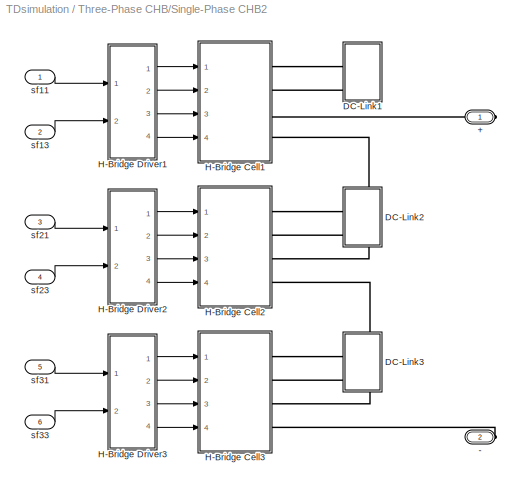
BLOCK [SubSystem] Three-Phase CHB/Single-Phase CHB2
  Ports = [6, 0, 0, 0, 0, 0, 2]
  RequestExecContextInheritance = off
  SID = 1797
BLOCK [PMIOPort] Three-Phase CHB/Single-Phase CHB2/+
  Port = 1
  SID = 1909
  Side = Right
BLOCK [PMIOPort] Three-Phase CHB/Single-Phase CHB2/-
  Port = 2
  SID = 1910
  Side = Right
BLOCK [SubSystem] Three-Phase CHB/Single-Phase CHB2/DC-Link1
  Ports = [0, 0, 0, 0, 0, 0, 2]
  RequestExecContextInheritance = off
  SID = 2373
BLOCK [PMIOPort] Three-Phase CHB/Single-Phase CHB2/DC-Link1/+
  Port = 1
  SID = 2380
  Side = Right
BLOCK [PMIOPort] Three-Phase CHB/Single-Phase CHB2/DC-Link1/-
  Port = 2
  SID = 2381
  Side = Right
BLOCK [Constant] Three-Phase CHB/Single-Phase CHB2/DC-Link1/Constant
  SID = 2374
  Value = Ideal
BLOCK [Reference] Three-Phase CHB/Single-Phase CHB2/DC-Link1/DC Capacitor  REF=powerlib/Elements/Series RLC Branch
  BranchType = C
  Capacitance = Cdc
  Inductance = 0.002996
  InitialCurrent = 0
  InitialVoltage = Vodc
  LConnTagsString = __new0
  Measurements = None
  Ports = [0, 0, 0, 0, 0, 1, 1]
  RConnTagsString = __new0
  Resistance = 0.09
  SID = 2375
  SetiL0 = off
  Setx0 = on
  SourceBlock = powerlib/Elements/Series RLC Branch
  SourceType = Series RLC Branch
BLOCK [Reference] Three-Phase CHB/Single-Phase CHB2/DC-Link1/DC Voltage Source  REF=powerlib/Electrical\nSources/DC Voltage Source
  Amplitude = Vdc
  Measurements = None
  Ports = [0, 0, 0, 0, 0, 1, 1]
  SID = 2376
  SourceBlock = powerlib/Electrical\nSources/DC Voltage Source
  SourceType = DC Voltage Source
BLOCK [Goto] Three-Phase CHB/Single-Phase CHB2/DC-Link1/Goto16
  GotoTag = Vccb1
  SID = 2574
  TagVisibility = global
BLOCK [Reference] Three-Phase CHB/Single-Phase CHB2/DC-Link1/Ideal Switch  REF=powerlib/Power\nElectronics/Ideal Switch
  Cs = inf
  IC = 0
  Lon = 0
  Measurements = on
  Ports = [1, 1, 0, 0, 0, 1, 1]
  Ron = 0.001
  Rs = 1e5
  SID = 2377
  SourceBlock = powerlib/Power\nElectronics/Ideal Switch
  SourceType = Ideal Switch
BLOCK [Reference] Three-Phase CHB/Single-Phase CHB2/DC-Link1/Ideal Switch1  REF=powerlib/Power\nElectronics/Ideal Switch
  Cs = inf
  IC = 0
  Lon = 0
  Measurements = on
  Ports = [1, 1, 0, 0, 0, 1, 1]
  Ron = 0.001
  Rs = 1e5
  SID = 2378
  SourceBlock = powerlib/Power\nElectronics/Ideal Switch
  SourceType = Ideal Switch
BLOCK [Logic] Three-Phase CHB/Single-Phase CHB2/DC-Link1/Logical\nOperator2
  AllPortsSameDT = off
  Operator = NOT
  OutDataTypeStr = boolean
  Ports = [1, 1]
  SID = 2379
BLOCK [Reference] Three-Phase CHB/Single-Phase CHB2/DC-Link1/Vcan3  REF=powerlib/Measurements/Voltage Measurement
  OutputType = Complex
  PSBequivalent = 0
  PhasorSimulation = off
  Ports = [0, 1, 0, 0, 0, 2]
  SID = 2575
  SourceBlock = powerlib/Measurements/Voltage Measurement
  SourceType = Voltage Measurement
BLOCK [SubSystem] Three-Phase CHB/Single-Phase CHB2/DC-Link2
  Ports = [0, 0, 0, 0, 0, 0, 2]
  RequestExecContextInheritance = off
  SID = 2382
BLOCK [PMIOPort] Three-Phase CHB/Single-Phase CHB2/DC-Link2/+
  Port = 1
  SID = 2389
  Side = Right
BLOCK [PMIOPort] Three-Phase CHB/Single-Phase CHB2/DC-Link2/-
  Port = 2
  SID = 2390
  Side = Right
BLOCK [Constant] Three-Phase CHB/Single-Phase CHB2/DC-Link2/Constant
  SID = 2383
  Value = Ideal
BLOCK [Reference] Three-Phase CHB/Single-Phase CHB2/DC-Link2/DC Capacitor  REF=powerlib/Elements/Series RLC Branch
  BranchType = C
  Capacitance = Cdc
  Inductance = 0.002996
  InitialCurrent = 0
  InitialVoltage = Vodc
  LConnTagsString = __new0
  Measurements = None
  Ports = [0, 0, 0, 0, 0, 1, 1]
  RConnTagsString = __new0
  Resistance = 0.09
  SID = 2384
  SetiL0 = off
  Setx0 = on
  SourceBlock = powerlib/Elements/Series RLC Branch
  SourceType = Series RLC Branch
BLOCK [Reference] Three-Phase CHB/Single-Phase CHB2/DC-Link2/DC Voltage Source  REF=powerlib/Electrical\nSources/DC Voltage Source
  Amplitude = Vdc
  Measurements = None
  Ports = [0, 0, 0, 0, 0, 1, 1]
  SID = 2385
  SourceBlock = powerlib/Electrical\nSources/DC Voltage Source
  SourceType = DC Voltage Source
BLOCK [Goto] Three-Phase CHB/Single-Phase CHB2/DC-Link2/Goto16
  GotoTag = Vccb2
  SID = 2576
  TagVisibility = global
BLOCK [Reference] Three-Phase CHB/Single-Phase CHB2/DC-Link2/Ideal Switch  REF=powerlib/Power\nElectronics/Ideal Switch
  Cs = inf
  IC = 0
  Lon = 0
  Measurements = on
  Ports = [1, 1, 0, 0, 0, 1, 1]
  Ron = 0.001
  Rs = 1e5
  SID = 2386
  SourceBlock = powerlib/Power\nElectronics/Ideal Switch
  SourceType = Ideal Switch
BLOCK [Reference] Three-Phase CHB/Single-Phase CHB2/DC-Link2/Ideal Switch1  REF=powerlib/Power\nElectronics/Ideal Switch
  Cs = inf
  IC = 0
  Lon = 0
  Measurements = on
  Ports = [1, 1, 0, 0, 0, 1, 1]
  Ron = 0.001
  Rs = 1e5
  SID = 2387
  SourceBlock = powerlib/Power\nElectronics/Ideal Switch
  SourceType = Ideal Switch
BLOCK [Logic] Three-Phase CHB/Single-Phase CHB2/DC-Link2/Logical\nOperator2
  AllPortsSameDT = off
  Operator = NOT
  OutDataTypeStr = boolean
  Ports = [1, 1]
  SID = 2388
BLOCK [Reference] Three-Phase CHB/Single-Phase CHB2/DC-Link2/Vcan3  REF=powerlib/Measurements/Voltage Measurement
  OutputType = Complex
  PSBequivalent = 0
  PhasorSimulation = off
  Ports = [0, 1, 0, 0, 0, 2]
  SID = 2577
  SourceBlock = powerlib/Measurements/Voltage Measurement
  SourceType = Voltage Measurement
BLOCK [SubSystem] Three-Phase CHB/Single-Phase CHB2/DC-Link3
  Ports = [0, 0, 0, 0, 0, 0, 2]
  RequestExecContextInheritance = off
  SID = 2391
BLOCK [PMIOPort] Three-Phase CHB/Single-Phase CHB2/DC-Link3/+
  Port = 1
  SID = 2398
  Side = Right
BLOCK [PMIOPort] Three-Phase CHB/Single-Phase CHB2/DC-Link3/-
  Port = 2
  SID = 2399
  Side = Right
BLOCK [Constant] Three-Phase CHB/Single-Phase CHB2/DC-Link3/Constant
  SID = 2392
  Value = Ideal
BLOCK [Reference] Three-Phase CHB/Single-Phase CHB2/DC-Link3/DC Capacitor  REF=powerlib/Elements/Series RLC Branch
  BranchType = C
  Capacitance = Cdc
  Inductance = 0.002996
  InitialCurrent = 0
  InitialVoltage = Vodc
  LConnTagsString = __new0
  Measurements = None
  Ports = [0, 0, 0, 0, 0, 1, 1]
  RConnTagsString = __new0
  Resistance = 0.09
  SID = 2393
  SetiL0 = off
  Setx0 = on
  SourceBlock = powerlib/Elements/Series RLC Branch
  SourceType = Series RLC Branch
BLOCK [Reference] Three-Phase CHB/Single-Phase CHB2/DC-Link3/DC Voltage Source  REF=powerlib/Electrical\nSources/DC Voltage Source
  Amplitude = Vdc
  Measurements = None
  Ports = [0, 0, 0, 0, 0, 1, 1]
  SID = 2394
  SourceBlock = powerlib/Electrical\nSources/DC Voltage Source
  SourceType = DC Voltage Source
BLOCK [Goto] Three-Phase CHB/Single-Phase CHB2/DC-Link3/Goto16
  GotoTag = Vccb3
  SID = 2578
  TagVisibility = global
BLOCK [Reference] Three-Phase CHB/Single-Phase CHB2/DC-Link3/Ideal Switch  REF=powerlib/Power\nElectronics/Ideal Switch
  Cs = inf
  IC = 0
  Lon = 0
  Measurements = on
  Ports = [1, 1, 0, 0, 0, 1, 1]
  Ron = 0.001
  Rs = 1e5
  SID = 2395
  SourceBlock = powerlib/Power\nElectronics/Ideal Switch
  SourceType = Ideal Switch
BLOCK [Reference] Three-Phase CHB/Single-Phase CHB2/DC-Link3/Ideal Switch1  REF=powerlib/Power\nElectronics/Ideal Switch
  Cs = inf
  IC = 0
  Lon = 0
  Measurements = on
  Ports = [1, 1, 0, 0, 0, 1, 1]
  Ron = 0.001
  Rs = 1e5
  SID = 2396
  SourceBlock = powerlib/Power\nElectronics/Ideal Switch
  SourceType = Ideal Switch
BLOCK [Logic] Three-Phase CHB/Single-Phase CHB2/DC-Link3/Logical\nOperator2
  AllPortsSameDT = off
  Operator = NOT
  OutDataTypeStr = boolean
  Ports = [1, 1]
  SID = 2397
BLOCK [Reference] Three-Phase CHB/Single-Phase CHB2/DC-Link3/Vcan3  REF=powerlib/Measurements/Voltage Measurement
  OutputType = Complex
  PSBequivalent = 0
  PhasorSimulation = off
  Ports = [0, 1, 0, 0, 0, 2]
  SID = 2579
  SourceBlock = powerlib/Measurements/Voltage Measurement
  SourceType = Voltage Measurement
BLOCK [SubSystem] Three-Phase CHB/Single-Phase CHB2/H-Bridge Cell1
  Ports = [4, 0, 0, 0, 0, 0, 4]
  RequestExecContextInheritance = off
  SID = 1831
BLOCK [PMIOPort] Three-Phase CHB/Single-Phase CHB2/H-Bridge Cell1/+
  Port = 3
  SID = 1846
  Side = Right
BLOCK [PMIOPort] Three-Phase CHB/Single-Phase CHB2/H-Bridge Cell1/-
  Port = 4
  SID = 1847
  Side = Right
BLOCK [PMIOPort] Three-Phase CHB/Single-Phase CHB2/H-Bridge Cell1/DC+
  Port = 1
  SID = 1844
  Side = Right
BLOCK [PMIOPort] Three-Phase CHB/Single-Phase CHB2/H-Bridge Cell1/DC-
  Port = 2
  SID = 1845
  Side = Right
BLOCK [Reference] Three-Phase CHB/Single-Phase CHB2/H-Bridge Cell1/IGBT//Diode1  REF=powerlib/Power\nElectronics/IGBT//Diode
  Cs = 0.5
  Measurements = on
  Ports = [1, 1, 0, 0, 0, 1, 1]
  Ron = 1e-3
  Rs = 1e5
  SID = 1836
  SourceBlock = powerlib/Power\nElectronics/IGBT//Diode
  SourceType = IGBT/Diode
BLOCK [Reference] Three-Phase CHB/Single-Phase CHB2/H-Bridge Cell1/IGBT//Diode2  REF=powerlib/Power\nElectronics/IGBT//Diode
  Cs = 0.5
  Measurements = on
  Ports = [1, 1, 0, 0, 0, 1, 1]
  Ron = 1e-3
  Rs = 1e5
  SID = 1837
  SourceBlock = powerlib/Power\nElectronics/IGBT//Diode
  SourceType = IGBT/Diode
BLOCK [Reference] Three-Phase CHB/Single-Phase CHB2/H-Bridge Cell1/IGBT//Diode3  REF=powerlib/Power\nElectronics/IGBT//Diode
  Cs = 0.5
  Measurements = on
  Ports = [1, 1, 0, 0, 0, 1, 1]
  Ron = 1e-3
  Rs = 1e5
  SID = 1838
  SourceBlock = powerlib/Power\nElectronics/IGBT//Diode
  SourceType = IGBT/Diode
BLOCK [Reference] Three-Phase CHB/Single-Phase CHB2/H-Bridge Cell1/IGBT//Diode4  REF=powerlib/Power\nElectronics/IGBT//Diode
  Cs = 0.5
  Measurements = on
  Ports = [1, 1, 0, 0, 0, 1, 1]
  Ron = 1e-3
  Rs = 1e5
  SID = 1839
  SourceBlock = powerlib/Power\nElectronics/IGBT//Diode
  SourceType = IGBT/Diode
BLOCK [Terminator] Three-Phase CHB/Single-Phase CHB2/H-Bridge Cell1/T1
  SID = 1840
BLOCK [Terminator] Three-Phase CHB/Single-Phase CHB2/H-Bridge Cell1/T2
  SID = 1841
BLOCK [Terminator] Three-Phase CHB/Single-Phase CHB2/H-Bridge Cell1/T3
  SID = 1842
BLOCK [Terminator] Three-Phase CHB/Single-Phase CHB2/H-Bridge Cell1/T4
  SID = 1843
BLOCK [Inport] Three-Phase CHB/Single-Phase CHB2/H-Bridge Cell1/si1
  IconDisplay = Port number
  SID = 1832
BLOCK [Inport] Three-Phase CHB/Single-Phase CHB2/H-Bridge Cell1/si2
  IconDisplay = Port number
  Port = 2
  SID = 1833
BLOCK [Inport] Three-Phase CHB/Single-Phase CHB2/H-Bridge Cell1/si3
  IconDisplay = Port number
  Port = 3
  SID = 1834
BLOCK [Inport] Three-Phase CHB/Single-Phase CHB2/H-Bridge Cell1/si4
  IconDisplay = Port number
  Port = 4
  SID = 1835
BLOCK [SubSystem] Three-Phase CHB/Single-Phase CHB2/H-Bridge Cell2
  Ports = [4, 0, 0, 0, 0, 0, 4]
  RequestExecContextInheritance = off
  SID = 1848
BLOCK [PMIOPort] Three-Phase CHB/Single-Phase CHB2/H-Bridge Cell2/+
  Port = 3
  SID = 1863
  Side = Right
BLOCK [PMIOPort] Three-Phase CHB/Single-Phase CHB2/H-Bridge Cell2/-
  Port = 4
  SID = 1864
  Side = Right
BLOCK [PMIOPort] Three-Phase CHB/Single-Phase CHB2/H-Bridge Cell2/DC+
  Port = 1
  SID = 1861
  Side = Right
BLOCK [PMIOPort] Three-Phase CHB/Single-Phase CHB2/H-Bridge Cell2/DC-
  Port = 2
  SID = 1862
  Side = Right
BLOCK [Reference] Three-Phase CHB/Single-Phase CHB2/H-Bridge Cell2/IGBT//Diode1  REF=powerlib/Power\nElectronics/IGBT//Diode
  Cs = 0.5
  Measurements = on
  Ports = [1, 1, 0, 0, 0, 1, 1]
  Ron = 1e-3
  Rs = 1e5
  SID = 1853
  SourceBlock = powerlib/Power\nElectronics/IGBT//Diode
  SourceType = IGBT/Diode
BLOCK [Reference] Three-Phase CHB/Single-Phase CHB2/H-Bridge Cell2/IGBT//Diode2  REF=powerlib/Power\nElectronics/IGBT//Diode
  Cs = 0.5
  Measurements = on
  Ports = [1, 1, 0, 0, 0, 1, 1]
  Ron = 1e-3
  Rs = 1e5
  SID = 1854
  SourceBlock = powerlib/Power\nElectronics/IGBT//Diode
  SourceType = IGBT/Diode
BLOCK [Reference] Three-Phase CHB/Single-Phase CHB2/H-Bridge Cell2/IGBT//Diode3  REF=powerlib/Power\nElectronics/IGBT//Diode
  Cs = 0.5
  Measurements = on
  Ports = [1, 1, 0, 0, 0, 1, 1]
  Ron = 1e-3
  Rs = 1e5
  SID = 1855
  SourceBlock = powerlib/Power\nElectronics/IGBT//Diode
  SourceType = IGBT/Diode
BLOCK [Reference] Three-Phase CHB/Single-Phase CHB2/H-Bridge Cell2/IGBT//Diode4  REF=powerlib/Power\nElectronics/IGBT//Diode
  Cs = 0.5
  Measurements = on
  Ports = [1, 1, 0, 0, 0, 1, 1]
  Ron = 1e-3
  Rs = 1e5
  SID = 1856
  SourceBlock = powerlib/Power\nElectronics/IGBT//Diode
  SourceType = IGBT/Diode
BLOCK [Terminator] Three-Phase CHB/Single-Phase CHB2/H-Bridge Cell2/T1
  SID = 1857
BLOCK [Terminator] Three-Phase CHB/Single-Phase CHB2/H-Bridge Cell2/T2
  SID = 1858
BLOCK [Terminator] Three-Phase CHB/Single-Phase CHB2/H-Bridge Cell2/T3
  SID = 1859
BLOCK [Terminator] Three-Phase CHB/Single-Phase CHB2/H-Bridge Cell2/T4
  SID = 1860
BLOCK [Inport] Three-Phase CHB/Single-Phase CHB2/H-Bridge Cell2/si1
  IconDisplay = Port number
  SID = 1849
BLOCK [Inport] Three-Phase CHB/Single-Phase CHB2/H-Bridge Cell2/si2
  IconDisplay = Port number
  Port = 2
  SID = 1850
BLOCK [Inport] Three-Phase CHB/Single-Phase CHB2/H-Bridge Cell2/si3
  IconDisplay = Port number
  Port = 3
  SID = 1851
BLOCK [Inport] Three-Phase CHB/Single-Phase CHB2/H-Bridge Cell2/si4
  IconDisplay = Port number
  Port = 4
  SID = 1852
BLOCK [SubSystem] Three-Phase CHB/Single-Phase CHB2/H-Bridge Cell3
  Ports = [4, 0, 0, 0, 0, 0, 4]
  RequestExecContextInheritance = off
  SID = 1865
BLOCK [PMIOPort] Three-Phase CHB/Single-Phase CHB2/H-Bridge Cell3/+
  Port = 3
  SID = 1880
  Side = Right
BLOCK [PMIOPort] Three-Phase CHB/Single-Phase CHB2/H-Bridge Cell3/-
  Port = 4
  SID = 1881
  Side = Right
BLOCK [PMIOPort] Three-Phase CHB/Single-Phase CHB2/H-Bridge Cell3/DC+
  Port = 1
  SID = 1878
  Side = Right
BLOCK [PMIOPort] Three-Phase CHB/Single-Phase CHB2/H-Bridge Cell3/DC-
  Port = 2
  SID = 1879
  Side = Right
BLOCK [Reference] Three-Phase CHB/Single-Phase CHB2/H-Bridge Cell3/IGBT//Diode1  REF=powerlib/Power\nElectronics/IGBT//Diode
  Cs = 0.5
  Measurements = on
  Ports = [1, 1, 0, 0, 0, 1, 1]
  Ron = 1e-3
  Rs = 1e5
  SID = 1870
  SourceBlock = powerlib/Power\nElectronics/IGBT//Diode
  SourceType = IGBT/Diode
BLOCK [Reference] Three-Phase CHB/Single-Phase CHB2/H-Bridge Cell3/IGBT//Diode2  REF=powerlib/Power\nElectronics/IGBT//Diode
  Cs = 0.5
  Measurements = on
  Ports = [1, 1, 0, 0, 0, 1, 1]
  Ron = 1e-3
  Rs = 1e5
  SID = 1871
  SourceBlock = powerlib/Power\nElectronics/IGBT//Diode
  SourceType = IGBT/Diode
BLOCK [Reference] Three-Phase CHB/Single-Phase CHB2/H-Bridge Cell3/IGBT//Diode3  REF=powerlib/Power\nElectronics/IGBT//Diode
  Cs = 0.5
  Measurements = on
  Ports = [1, 1, 0, 0, 0, 1, 1]
  Ron = 1e-3
  Rs = 1e5
  SID = 1872
  SourceBlock = powerlib/Power\nElectronics/IGBT//Diode
  SourceType = IGBT/Diode
BLOCK [Reference] Three-Phase CHB/Single-Phase CHB2/H-Bridge Cell3/IGBT//Diode4  REF=powerlib/Power\nElectronics/IGBT//Diode
  Cs = 0.5
  Measurements = on
  Ports = [1, 1, 0, 0, 0, 1, 1]
  Ron = 1e-3
  Rs = 1e5
  SID = 1873
  SourceBlock = powerlib/Power\nElectronics/IGBT//Diode
  SourceType = IGBT/Diode
BLOCK [Terminator] Three-Phase CHB/Single-Phase CHB2/H-Bridge Cell3/T1
  SID = 1874
BLOCK [Terminator] Three-Phase CHB/Single-Phase CHB2/H-Bridge Cell3/T2
  SID = 1875
BLOCK [Terminator] Three-Phase CHB/Single-Phase CHB2/H-Bridge Cell3/T3
  SID = 1876
BLOCK [Terminator] Three-Phase CHB/Single-Phase CHB2/H-Bridge Cell3/T4
  SID = 1877
BLOCK [Inport] Three-Phase CHB/Single-Phase CHB2/H-Bridge Cell3/si1
  IconDisplay = Port number
  SID = 1866
BLOCK [Inport] Three-Phase CHB/Single-Phase CHB2/H-Bridge Cell3/si2
  IconDisplay = Port number
  Port = 2
  SID = 1867
BLOCK [Inport] Three-Phase CHB/Single-Phase CHB2/H-Bridge Cell3/si3
  IconDisplay = Port number
  Port = 3
  SID = 1868
BLOCK [Inport] Three-Phase CHB/Single-Phase CHB2/H-Bridge Cell3/si4
  IconDisplay = Port number
  Port = 4
  SID = 1869
BLOCK [SubSystem] Three-Phase CHB/Single-Phase CHB2/H-Bridge Driver1
  Ports = [2, 4]
  RequestExecContextInheritance = off
  SID = 1882
BLOCK [Outport] Three-Phase CHB/Single-Phase CHB2/H-Bridge Driver1/1
  IconDisplay = Port number
  SID = 1887
BLOCK [Outport] Three-Phase CHB/Single-Phase CHB2/H-Bridge Driver1/2
  IconDisplay = Port number
  Port = 2
  SID = 1888
BLOCK [Outport] Three-Phase CHB/Single-Phase CHB2/H-Bridge Driver1/3
  IconDisplay = Port number
  Port = 3
  SID = 1889
BLOCK [Outport] Three-Phase CHB/Single-Phase CHB2/H-Bridge Driver1/4
  IconDisplay = Port number
  Port = 4
  SID = 1890
BLOCK [Logic] Three-Phase CHB/Single-Phase CHB2/H-Bridge Driver1/Logical\nOperator2
  AllPortsSameDT = off
  Operator = NOT
  OutDataTypeStr = boolean
  Ports = [1, 1]
  SID = 1885
BLOCK [Logic] Three-Phase CHB/Single-Phase CHB2/H-Bridge Driver1/Logical\nOperator3
  AllPortsSameDT = off
  Operator = NOT
  OutDataTypeStr = boolean
  Ports = [1, 1]
  SID = 1886
BLOCK [Inport] Three-Phase CHB/Single-Phase CHB2/H-Bridge Driver1/si1
  IconDisplay = Port number
  SID = 1883
BLOCK [Inport] Three-Phase CHB/Single-Phase CHB2/H-Bridge Driver1/si3
  IconDisplay = Port number
  Port = 2
  SID = 1884
BLOCK [SubSystem] Three-Phase CHB/Single-Phase CHB2/H-Bridge Driver2
  Ports = [2, 4]
  RequestExecContextInheritance = off
  SID = 1891
BLOCK [Outport] Three-Phase CHB/Single-Phase CHB2/H-Bridge Driver2/1
  IconDisplay = Port number
  SID = 1896
BLOCK [Outport] Three-Phase CHB/Single-Phase CHB2/H-Bridge Driver2/2
  IconDisplay = Port number
  Port = 2
  SID = 1897
BLOCK [Outport] Three-Phase CHB/Single-Phase CHB2/H-Bridge Driver2/3
  IconDisplay = Port number
  Port = 3
  SID = 1898
BLOCK [Outport] Three-Phase CHB/Single-Phase CHB2/H-Bridge Driver2/4
  IconDisplay = Port number
  Port = 4
  SID = 1899
BLOCK [Logic] Three-Phase CHB/Single-Phase CHB2/H-Bridge Driver2/Logical\nOperator2
  AllPortsSameDT = off
  Operator = NOT
  OutDataTypeStr = boolean
  Ports = [1, 1]
  SID = 1894
BLOCK [Logic] Three-Phase CHB/Single-Phase CHB2/H-Bridge Driver2/Logical\nOperator3
  AllPortsSameDT = off
  Operator = NOT
  OutDataTypeStr = boolean
  Ports = [1, 1]
  SID = 1895
BLOCK [Inport] Three-Phase CHB/Single-Phase CHB2/H-Bridge Driver2/si1
  IconDisplay = Port number
  SID = 1892
BLOCK [Inport] Three-Phase CHB/Single-Phase CHB2/H-Bridge Driver2/si3
  IconDisplay = Port number
  Port = 2
  SID = 1893
BLOCK [SubSystem] Three-Phase CHB/Single-Phase CHB2/H-Bridge Driver3
  Ports = [2, 4]
  RequestExecContextInheritance = off
  SID = 1900
BLOCK [Outport] Three-Phase CHB/Single-Phase CHB2/H-Bridge Driver3/1
  IconDisplay = Port number
  SID = 1905
BLOCK [Outport] Three-Phase CHB/Single-Phase CHB2/H-Bridge Driver3/2
  IconDisplay = Port number
  Port = 2
  SID = 1906
BLOCK [Outport] Three-Phase CHB/Single-Phase CHB2/H-Bridge Driver3/3
  IconDisplay = Port number
  Port = 3
  SID = 1907
BLOCK [Outport] Three-Phase CHB/Single-Phase CHB2/H-Bridge Driver3/4
  IconDisplay = Port number
  Port = 4
  SID = 1908
BLOCK [Logic] Three-Phase CHB/Single-Phase CHB2/H-Bridge Driver3/Logical\nOperator2
  AllPortsSameDT = off
  Operator = NOT
  OutDataTypeStr = boolean
  Ports = [1, 1]
  SID = 1903
BLOCK [Logic] Three-Phase CHB/Single-Phase CHB2/H-Bridge Driver3/Logical\nOperator3
  AllPortsSameDT = off
  Operator = NOT
  OutDataTypeStr = boolean
  Ports = [1, 1]
  SID = 1904
BLOCK [Inport] Three-Phase CHB/Single-Phase CHB2/H-Bridge Driver3/si1
  IconDisplay = Port number
  SID = 1901
BLOCK [Inport] Three-Phase CHB/Single-Phase CHB2/H-Bridge Driver3/si3
  IconDisplay = Port number
  Port = 2
  SID = 1902
BLOCK [Inport] Three-Phase CHB/Single-Phase CHB2/sf11
  IconDisplay = Port number
  SID = 1798
BLOCK [Inport] Three-Phase CHB/Single-Phase CHB2/sf13
  IconDisplay = Port number
  Port = 2
  SID = 1799
BLOCK [Inport] Three-Phase CHB/Single-Phase CHB2/sf21
  IconDisplay = Port number
  Port = 3
  SID = 1800
BLOCK [Inport] Three-Phase CHB/Single-Phase CHB2/sf23
  IconDisplay = Port number
  Port = 4
  SID = 1801
BLOCK [Inport] Three-Phase CHB/Single-Phase CHB2/sf31
  IconDisplay = Port number
  Port = 5
  SID = 1802
BLOCK [Inport] Three-Phase CHB/Single-Phase CHB2/sf33
  IconDisplay = Port number
  Port = 6
  SID = 1803
BLOCK [SubSystem] Three-Phase CHB/Single-Phase CHB3
  Ports = [6, 0, 0, 0, 0, 0, 2]
  RequestExecContextInheritance = off
  SID = 1911
BLOCK [PMIOPort] Three-Phase CHB/Single-Phase CHB3/+
  Port = 1
  SID = 2023
  Side = Right
BLOCK [PMIOPort] Three-Phase CHB/Single-Phase CHB3/-
  Port = 2
  SID = 2024
  Side = Right
BLOCK [SubSystem] Three-Phase CHB/Single-Phase CHB3/DC-Link1
  Ports = [0, 0, 0, 0, 0, 0, 2]
  RequestExecContextInheritance = off
  SID = 2400
BLOCK [PMIOPort] Three-Phase CHB/Single-Phase CHB3/DC-Link1/+
  Port = 1
  SID = 2407
  Side = Right
BLOCK [PMIOPort] Three-Phase CHB/Single-Phase CHB3/DC-Link1/-
  Port = 2
  SID = 2408
  Side = Right
BLOCK [Constant] Three-Phase CHB/Single-Phase CHB3/DC-Link1/Constant
  SID = 2401
  Value = Ideal
BLOCK [Reference] Three-Phase CHB/Single-Phase CHB3/DC-Link1/DC Capacitor  REF=powerlib/Elements/Series RLC Branch
  BranchType = C
  Capacitance = Cdc
  Inductance = 0.002996
  InitialCurrent = 0
  InitialVoltage = Vodc
  LConnTagsString = __new0
  Measurements = None
  Ports = [0, 0, 0, 0, 0, 1, 1]
  RConnTagsString = __new0
  Resistance = 0.09
  SID = 2402
  SetiL0 = off
  Setx0 = on
  SourceBlock = powerlib/Elements/Series RLC Branch
  SourceType = Series RLC Branch
BLOCK [Reference] Three-Phase CHB/Single-Phase CHB3/DC-Link1/DC Voltage Source  REF=powerlib/Electrical\nSources/DC Voltage Source
  Amplitude = Vdc
  Measurements = None
  Ports = [0, 0, 0, 0, 0, 1, 1]
  SID = 2403
  SourceBlock = powerlib/Electrical\nSources/DC Voltage Source
  SourceType = DC Voltage Source
BLOCK [Goto] Three-Phase CHB/Single-Phase CHB3/DC-Link1/Goto16
  GotoTag = Vccc1
  SID = 2580
  TagVisibility = global
BLOCK [Reference] Three-Phase CHB/Single-Phase CHB3/DC-Link1/Ideal Switch  REF=powerlib/Power\nElectronics/Ideal Switch
  Cs = inf
  IC = 0
  Lon = 0
  Measurements = on
  Ports = [1, 1, 0, 0, 0, 1, 1]
  Ron = 0.001
  Rs = 1e5
  SID = 2404
  SourceBlock = powerlib/Power\nElectronics/Ideal Switch
  SourceType = Ideal Switch
BLOCK [Reference] Three-Phase CHB/Single-Phase CHB3/DC-Link1/Ideal Switch1  REF=powerlib/Power\nElectronics/Ideal Switch
  Cs = inf
  IC = 0
  Lon = 0
  Measurements = on
  Ports = [1, 1, 0, 0, 0, 1, 1]
  Ron = 0.001
  Rs = 1e5
  SID = 2405
  SourceBlock = powerlib/Power\nElectronics/Ideal Switch
  SourceType = Ideal Switch
BLOCK [Logic] Three-Phase CHB/Single-Phase CHB3/DC-Link1/Logical\nOperator2
  AllPortsSameDT = off
  Operator = NOT
  OutDataTypeStr = boolean
  Ports = [1, 1]
  SID = 2406
BLOCK [Reference] Three-Phase CHB/Single-Phase CHB3/DC-Link1/Vcan3  REF=powerlib/Measurements/Voltage Measurement
  OutputType = Complex
  PSBequivalent = 0
  PhasorSimulation = off
  Ports = [0, 1, 0, 0, 0, 2]
  SID = 2581
  SourceBlock = powerlib/Measurements/Voltage Measurement
  SourceType = Voltage Measurement
BLOCK [SubSystem] Three-Phase CHB/Single-Phase CHB3/DC-Link2
  Ports = [0, 0, 0, 0, 0, 0, 2]
  RequestExecContextInheritance = off
  SID = 2409
BLOCK [PMIOPort] Three-Phase CHB/Single-Phase CHB3/DC-Link2/+
  Port = 1
  SID = 2416
  Side = Right
BLOCK [PMIOPort] Three-Phase CHB/Single-Phase CHB3/DC-Link2/-
  Port = 2
  SID = 2417
  Side = Right
BLOCK [Constant] Three-Phase CHB/Single-Phase CHB3/DC-Link2/Constant
  SID = 2410
  Value = Ideal
BLOCK [Reference] Three-Phase CHB/Single-Phase CHB3/DC-Link2/DC Capacitor  REF=powerlib/Elements/Series RLC Branch
  BranchType = C
  Capacitance = Cdc
  Inductance = 0.002996
  InitialCurrent = 0
  InitialVoltage = Vodc
  LConnTagsString = __new0
  Measurements = None
  Ports = [0, 0, 0, 0, 0, 1, 1]
  RConnTagsString = __new0
  Resistance = 0.09
  SID = 2411
  SetiL0 = off
  Setx0 = on
  SourceBlock = powerlib/Elements/Series RLC Branch
  SourceType = Series RLC Branch
BLOCK [Reference] Three-Phase CHB/Single-Phase CHB3/DC-Link2/DC Voltage Source  REF=powerlib/Electrical\nSources/DC Voltage Source
  Amplitude = Vdc
  Measurements = None
  Ports = [0, 0, 0, 0, 0, 1, 1]
  SID = 2412
  SourceBlock = powerlib/Electrical\nSources/DC Voltage Source
  SourceType = DC Voltage Source
BLOCK [Goto] Three-Phase CHB/Single-Phase CHB3/DC-Link2/Goto16
  GotoTag = Vccc2
  SID = 2582
  TagVisibility = global
BLOCK [Reference] Three-Phase CHB/Single-Phase CHB3/DC-Link2/Ideal Switch  REF=powerlib/Power\nElectronics/Ideal Switch
  Cs = inf
  IC = 0
  Lon = 0
  Measurements = on
  Ports = [1, 1, 0, 0, 0, 1, 1]
  Ron = 0.001
  Rs = 1e5
  SID = 2413
  SourceBlock = powerlib/Power\nElectronics/Ideal Switch
  SourceType = Ideal Switch
BLOCK [Reference] Three-Phase CHB/Single-Phase CHB3/DC-Link2/Ideal Switch1  REF=powerlib/Power\nElectronics/Ideal Switch
  Cs = inf
  IC = 0
  Lon = 0
  Measurements = on
  Ports = [1, 1, 0, 0, 0, 1, 1]
  Ron = 0.001
  Rs = 1e5
  SID = 2414
  SourceBlock = powerlib/Power\nElectronics/Ideal Switch
  SourceType = Ideal Switch
BLOCK [Logic] Three-Phase CHB/Single-Phase CHB3/DC-Link2/Logical\nOperator2
  AllPortsSameDT = off
  Operator = NOT
  OutDataTypeStr = boolean
  Ports = [1, 1]
  SID = 2415
BLOCK [Reference] Three-Phase CHB/Single-Phase CHB3/DC-Link2/Vcan3  REF=powerlib/Measurements/Voltage Measurement
  OutputType = Complex
  PSBequivalent = 0
  PhasorSimulation = off
  Ports = [0, 1, 0, 0, 0, 2]
  SID = 2583
  SourceBlock = powerlib/Measurements/Voltage Measurement
  SourceType = Voltage Measurement
BLOCK [SubSystem] Three-Phase CHB/Single-Phase CHB3/DC-Link3
  Ports = [0, 0, 0, 0, 0, 0, 2]
  RequestExecContextInheritance = off
  SID = 2418
BLOCK [PMIOPort] Three-Phase CHB/Single-Phase CHB3/DC-Link3/+
  Port = 1
  SID = 2425
  Side = Right
BLOCK [PMIOPort] Three-Phase CHB/Single-Phase CHB3/DC-Link3/-
  Port = 2
  SID = 2426
  Side = Right
BLOCK [Constant] Three-Phase CHB/Single-Phase CHB3/DC-Link3/Constant
  SID = 2419
  Value = Ideal
BLOCK [Reference] Three-Phase CHB/Single-Phase CHB3/DC-Link3/DC Capacitor  REF=powerlib/Elements/Series RLC Branch
  BranchType = C
  Capacitance = Cdc
  Inductance = 0.002996
  InitialCurrent = 0
  InitialVoltage = Vodc
  LConnTagsString = __new0
  Measurements = None
  Ports = [0, 0, 0, 0, 0, 1, 1]
  RConnTagsString = __new0
  Resistance = 0.09
  SID = 2420
  SetiL0 = off
  Setx0 = on
  SourceBlock = powerlib/Elements/Series RLC Branch
  SourceType = Series RLC Branch
BLOCK [Reference] Three-Phase CHB/Single-Phase CHB3/DC-Link3/DC Voltage Source  REF=powerlib/Electrical\nSources/DC Voltage Source
  Amplitude = Vdc
  Measurements = None
  Ports = [0, 0, 0, 0, 0, 1, 1]
  SID = 2421
  SourceBlock = powerlib/Electrical\nSources/DC Voltage Source
  SourceType = DC Voltage Source
BLOCK [Goto] Three-Phase CHB/Single-Phase CHB3/DC-Link3/Goto16
  GotoTag = Vccc3
  SID = 2584
  TagVisibility = global
BLOCK [Reference] Three-Phase CHB/Single-Phase CHB3/DC-Link3/Ideal Switch  REF=powerlib/Power\nElectronics/Ideal Switch
  Cs = inf
  IC = 0
  Lon = 0
  Measurements = on
  Ports = [1, 1, 0, 0, 0, 1, 1]
  Ron = 0.001
  Rs = 1e5
  SID = 2422
  SourceBlock = powerlib/Power\nElectronics/Ideal Switch
  SourceType = Ideal Switch
BLOCK [Reference] Three-Phase CHB/Single-Phase CHB3/DC-Link3/Ideal Switch1  REF=powerlib/Power\nElectronics/Ideal Switch
  Cs = inf
  IC = 0
  Lon = 0
  Measurements = on
  Ports = [1, 1, 0, 0, 0, 1, 1]
  Ron = 0.001
  Rs = 1e5
  SID = 2423
  SourceBlock = powerlib/Power\nElectronics/Ideal Switch
  SourceType = Ideal Switch
BLOCK [Logic] Three-Phase CHB/Single-Phase CHB3/DC-Link3/Logical\nOperator2
  AllPortsSameDT = off
  Operator = NOT
  OutDataTypeStr = boolean
  Ports = [1, 1]
  SID = 2424
BLOCK [Reference] Three-Phase CHB/Single-Phase CHB3/DC-Link3/Vcan3  REF=powerlib/Measurements/Voltage Measurement
  OutputType = Complex
  PSBequivalent = 0
  PhasorSimulation = off
  Ports = [0, 1, 0, 0, 0, 2]
  SID = 2585
  SourceBlock = powerlib/Measurements/Voltage Measurement
  SourceType = Voltage Measurement
BLOCK [SubSystem] Three-Phase CHB/Single-Phase CHB3/H-Bridge Cell1
  Ports = [4, 0, 0, 0, 0, 0, 4]
  RequestExecContextInheritance = off
  SID = 1945
BLOCK [PMIOPort] Three-Phase CHB/Single-Phase CHB3/H-Bridge Cell1/+
  Port = 3
  SID = 1960
  Side = Right
BLOCK [PMIOPort] Three-Phase CHB/Single-Phase CHB3/H-Bridge Cell1/-
  Port = 4
  SID = 1961
  Side = Right
BLOCK [PMIOPort] Three-Phase CHB/Single-Phase CHB3/H-Bridge Cell1/DC+
  Port = 1
  SID = 1958
  Side = Right
BLOCK [PMIOPort] Three-Phase CHB/Single-Phase CHB3/H-Bridge Cell1/DC-
  Port = 2
  SID = 1959
  Side = Right
BLOCK [Reference] Three-Phase CHB/Single-Phase CHB3/H-Bridge Cell1/IGBT//Diode1  REF=powerlib/Power\nElectronics/IGBT//Diode
  Cs = 0.5
  Measurements = on
  Ports = [1, 1, 0, 0, 0, 1, 1]
  Ron = 1e-3
  Rs = 1e5
  SID = 1950
  SourceBlock = powerlib/Power\nElectronics/IGBT//Diode
  SourceType = IGBT/Diode
BLOCK [Reference] Three-Phase CHB/Single-Phase CHB3/H-Bridge Cell1/IGBT//Diode2  REF=powerlib/Power\nElectronics/IGBT//Diode
  Cs = 0.5
  Measurements = on
  Ports = [1, 1, 0, 0, 0, 1, 1]
  Ron = 1e-3
  Rs = 1e5
  SID = 1951
  SourceBlock = powerlib/Power\nElectronics/IGBT//Diode
  SourceType = IGBT/Diode
BLOCK [Reference] Three-Phase CHB/Single-Phase CHB3/H-Bridge Cell1/IGBT//Diode3  REF=powerlib/Power\nElectronics/IGBT//Diode
  Cs = 0.5
  Measurements = on
  Ports = [1, 1, 0, 0, 0, 1, 1]
  Ron = 1e-3
  Rs = 1e5
  SID = 1952
  SourceBlock = powerlib/Power\nElectronics/IGBT//Diode
  SourceType = IGBT/Diode
BLOCK [Reference] Three-Phase CHB/Single-Phase CHB3/H-Bridge Cell1/IGBT//Diode4  REF=powerlib/Power\nElectronics/IGBT//Diode
  Cs = 0.5
  Measurements = on
  Ports = [1, 1, 0, 0, 0, 1, 1]
  Ron = 1e-3
  Rs = 1e5
  SID = 1953
  SourceBlock = powerlib/Power\nElectronics/IGBT//Diode
  SourceType = IGBT/Diode
BLOCK [Terminator] Three-Phase CHB/Single-Phase CHB3/H-Bridge Cell1/T1
  SID = 1954
BLOCK [Terminator] Three-Phase CHB/Single-Phase CHB3/H-Bridge Cell1/T2
  SID = 1955
BLOCK [Terminator] Three-Phase CHB/Single-Phase CHB3/H-Bridge Cell1/T3
  SID = 1956
BLOCK [Terminator] Three-Phase CHB/Single-Phase CHB3/H-Bridge Cell1/T4
  SID = 1957
BLOCK [Inport] Three-Phase CHB/Single-Phase CHB3/H-Bridge Cell1/si1
  IconDisplay = Port number
  SID = 1946
BLOCK [Inport] Three-Phase CHB/Single-Phase CHB3/H-Bridge Cell1/si2
  IconDisplay = Port number
  Port = 2
  SID = 1947
BLOCK [Inport] Three-Phase CHB/Single-Phase CHB3/H-Bridge Cell1/si3
  IconDisplay = Port number
  Port = 3
  SID = 1948
BLOCK [Inport] Three-Phase CHB/Single-Phase CHB3/H-Bridge Cell1/si4
  IconDisplay = Port number
  Port = 4
  SID = 1949
BLOCK [SubSystem] Three-Phase CHB/Single-Phase CHB3/H-Bridge Cell2
  Ports = [4, 0, 0, 0, 0, 0, 4]
  RequestExecContextInheritance = off
  SID = 1962
BLOCK [PMIOPort] Three-Phase CHB/Single-Phase CHB3/H-Bridge Cell2/+
  Port = 3
  SID = 1977
  Side = Right
BLOCK [PMIOPort] Three-Phase CHB/Single-Phase CHB3/H-Bridge Cell2/-
  Port = 4
  SID = 1978
  Side = Right
BLOCK [PMIOPort] Three-Phase CHB/Single-Phase CHB3/H-Bridge Cell2/DC+
  Port = 1
  SID = 1975
  Side = Right
BLOCK [PMIOPort] Three-Phase CHB/Single-Phase CHB3/H-Bridge Cell2/DC-
  Port = 2
  SID = 1976
  Side = Right
BLOCK [Reference] Three-Phase CHB/Single-Phase CHB3/H-Bridge Cell2/IGBT//Diode1  REF=powerlib/Power\nElectronics/IGBT//Diode
  Cs = 0.5
  Measurements = on
  Ports = [1, 1, 0, 0, 0, 1, 1]
  Ron = 1e-3
  Rs = 1e5
  SID = 1967
  SourceBlock = powerlib/Power\nElectronics/IGBT//Diode
  SourceType = IGBT/Diode
BLOCK [Reference] Three-Phase CHB/Single-Phase CHB3/H-Bridge Cell2/IGBT//Diode2  REF=powerlib/Power\nElectronics/IGBT//Diode
  Cs = 0.5
  Measurements = on
  Ports = [1, 1, 0, 0, 0, 1, 1]
  Ron = 1e-3
  Rs = 1e5
  SID = 1968
  SourceBlock = powerlib/Power\nElectronics/IGBT//Diode
  SourceType = IGBT/Diode
BLOCK [Reference] Three-Phase CHB/Single-Phase CHB3/H-Bridge Cell2/IGBT//Diode3  REF=powerlib/Power\nElectronics/IGBT//Diode
  Cs = 0.5
  Measurements = on
  Ports = [1, 1, 0, 0, 0, 1, 1]
  Ron = 1e-3
  Rs = 1e5
  SID = 1969
  SourceBlock = powerlib/Power\nElectronics/IGBT//Diode
  SourceType = IGBT/Diode
BLOCK [Reference] Three-Phase CHB/Single-Phase CHB3/H-Bridge Cell2/IGBT//Diode4  REF=powerlib/Power\nElectronics/IGBT//Diode
  Cs = 0.5
  Measurements = on
  Ports = [1, 1, 0, 0, 0, 1, 1]
  Ron = 1e-3
  Rs = 1e5
  SID = 1970
  SourceBlock = powerlib/Power\nElectronics/IGBT//Diode
  SourceType = IGBT/Diode
BLOCK [Terminator] Three-Phase CHB/Single-Phase CHB3/H-Bridge Cell2/T1
  SID = 1971
BLOCK [Terminator] Three-Phase CHB/Single-Phase CHB3/H-Bridge Cell2/T2
  SID = 1972
BLOCK [Terminator] Three-Phase CHB/Single-Phase CHB3/H-Bridge Cell2/T3
  SID = 1973
BLOCK [Terminator] Three-Phase CHB/Single-Phase CHB3/H-Bridge Cell2/T4
  SID = 1974
BLOCK [Inport] Three-Phase CHB/Single-Phase CHB3/H-Bridge Cell2/si1
  IconDisplay = Port number
  SID = 1963
BLOCK [Inport] Three-Phase CHB/Single-Phase CHB3/H-Bridge Cell2/si2
  IconDisplay = Port number
  Port = 2
  SID = 1964
BLOCK [Inport] Three-Phase CHB/Single-Phase CHB3/H-Bridge Cell2/si3
  IconDisplay = Port number
  Port = 3
  SID = 1965
BLOCK [Inport] Three-Phase CHB/Single-Phase CHB3/H-Bridge Cell2/si4
  IconDisplay = Port number
  Port = 4
  SID = 1966
BLOCK [SubSystem] Three-Phase CHB/Single-Phase CHB3/H-Bridge Cell3
  Ports = [4, 0, 0, 0, 0, 0, 4]
  RequestExecContextInheritance = off
  SID = 1979
BLOCK [PMIOPort] Three-Phase CHB/Single-Phase CHB3/H-Bridge Cell3/+
  Port = 3
  SID = 1994
  Side = Right
BLOCK [PMIOPort] Three-Phase CHB/Single-Phase CHB3/H-Bridge Cell3/-
  Port = 4
  SID = 1995
  Side = Right
BLOCK [PMIOPort] Three-Phase CHB/Single-Phase CHB3/H-Bridge Cell3/DC+
  Port = 1
  SID = 1992
  Side = Right
BLOCK [PMIOPort] Three-Phase CHB/Single-Phase CHB3/H-Bridge Cell3/DC-
  Port = 2
  SID = 1993
  Side = Right
BLOCK [Reference] Three-Phase CHB/Single-Phase CHB3/H-Bridge Cell3/IGBT//Diode1  REF=powerlib/Power\nElectronics/IGBT//Diode
  Cs = 0.5
  Measurements = on
  Ports = [1, 1, 0, 0, 0, 1, 1]
  Ron = 1e-3
  Rs = 1e5
  SID = 1984
  SourceBlock = powerlib/Power\nElectronics/IGBT//Diode
  SourceType = IGBT/Diode
BLOCK [Reference] Three-Phase CHB/Single-Phase CHB3/H-Bridge Cell3/IGBT//Diode2  REF=powerlib/Power\nElectronics/IGBT//Diode
  Cs = 0.5
  Measurements = on
  Ports = [1, 1, 0, 0, 0, 1, 1]
  Ron = 1e-3
  Rs = 1e5
  SID = 1985
  SourceBlock = powerlib/Power\nElectronics/IGBT//Diode
  SourceType = IGBT/Diode
BLOCK [Reference] Three-Phase CHB/Single-Phase CHB3/H-Bridge Cell3/IGBT//Diode3  REF=powerlib/Power\nElectronics/IGBT//Diode
  Cs = 0.5
  Measurements = on
  Ports = [1, 1, 0, 0, 0, 1, 1]
  Ron = 1e-3
  Rs = 1e5
  SID = 1986
  SourceBlock = powerlib/Power\nElectronics/IGBT//Diode
  SourceType = IGBT/Diode
BLOCK [Reference] Three-Phase CHB/Single-Phase CHB3/H-Bridge Cell3/IGBT//Diode4  REF=powerlib/Power\nElectronics/IGBT//Diode
  Cs = 0.5
  Measurements = on
  Ports = [1, 1, 0, 0, 0, 1, 1]
  Ron = 1e-3
  Rs = 1e5
  SID = 1987
  SourceBlock = powerlib/Power\nElectronics/IGBT//Diode
  SourceType = IGBT/Diode
BLOCK [Terminator] Three-Phase CHB/Single-Phase CHB3/H-Bridge Cell3/T1
  SID = 1988
BLOCK [Terminator] Three-Phase CHB/Single-Phase CHB3/H-Bridge Cell3/T2
  SID = 1989
BLOCK [Terminator] Three-Phase CHB/Single-Phase CHB3/H-Bridge Cell3/T3
  SID = 1990
BLOCK [Terminator] Three-Phase CHB/Single-Phase CHB3/H-Bridge Cell3/T4
  SID = 1991
BLOCK [Inport] Three-Phase CHB/Single-Phase CHB3/H-Bridge Cell3/si1
  IconDisplay = Port number
  SID = 1980
BLOCK [Inport] Three-Phase CHB/Single-Phase CHB3/H-Bridge Cell3/si2
  IconDisplay = Port number
  Port = 2
  SID = 1981
BLOCK [Inport] Three-Phase CHB/Single-Phase CHB3/H-Bridge Cell3/si3
  IconDisplay = Port number
  Port = 3
  SID = 1982
BLOCK [Inport] Three-Phase CHB/Single-Phase CHB3/H-Bridge Cell3/si4
  IconDisplay = Port number
  Port = 4
  SID = 1983
BLOCK [SubSystem] Three-Phase CHB/Single-Phase CHB3/H-Bridge Driver1
  Ports = [2, 4]
  RequestExecContextInheritance = off
  SID = 1996
BLOCK [Outport] Three-Phase CHB/Single-Phase CHB3/H-Bridge Driver1/1
  IconDisplay = Port number
  SID = 2001
BLOCK [Outport] Three-Phase CHB/Single-Phase CHB3/H-Bridge Driver1/2
  IconDisplay = Port number
  Port = 2
  SID = 2002
BLOCK [Outport] Three-Phase CHB/Single-Phase CHB3/H-Bridge Driver1/3
  IconDisplay = Port number
  Port = 3
  SID = 2003
BLOCK [Outport] Three-Phase CHB/Single-Phase CHB3/H-Bridge Driver1/4
  IconDisplay = Port number
  Port = 4
  SID = 2004
BLOCK [Logic] Three-Phase CHB/Single-Phase CHB3/H-Bridge Driver1/Logical\nOperator2
  AllPortsSameDT = off
  Operator = NOT
  OutDataTypeStr = boolean
  Ports = [1, 1]
  SID = 1999
BLOCK [Logic] Three-Phase CHB/Single-Phase CHB3/H-Bridge Driver1/Logical\nOperator3
  AllPortsSameDT = off
  Operator = NOT
  OutDataTypeStr = boolean
  Ports = [1, 1]
  SID = 2000
BLOCK [Inport] Three-Phase CHB/Single-Phase CHB3/H-Bridge Driver1/si1
  IconDisplay = Port number
  SID = 1997
BLOCK [Inport] Three-Phase CHB/Single-Phase CHB3/H-Bridge Driver1/si3
  IconDisplay = Port number
  Port = 2
  SID = 1998
BLOCK [SubSystem] Three-Phase CHB/Single-Phase CHB3/H-Bridge Driver2
  Ports = [2, 4]
  RequestExecContextInheritance = off
  SID = 2005
BLOCK [Outport] Three-Phase CHB/Single-Phase CHB3/H-Bridge Driver2/1
  IconDisplay = Port number
  SID = 2010
BLOCK [Outport] Three-Phase CHB/Single-Phase CHB3/H-Bridge Driver2/2
  IconDisplay = Port number
  Port = 2
  SID = 2011
BLOCK [Outport] Three-Phase CHB/Single-Phase CHB3/H-Bridge Driver2/3
  IconDisplay = Port number
  Port = 3
  SID = 2012
BLOCK [Outport] Three-Phase CHB/Single-Phase CHB3/H-Bridge Driver2/4
  IconDisplay = Port number
  Port = 4
  SID = 2013
BLOCK [Logic] Three-Phase CHB/Single-Phase CHB3/H-Bridge Driver2/Logical\nOperator2
  AllPortsSameDT = off
  Operator = NOT
  OutDataTypeStr = boolean
  Ports = [1, 1]
  SID = 2008
BLOCK [Logic] Three-Phase CHB/Single-Phase CHB3/H-Bridge Driver2/Logical\nOperator3
  AllPortsSameDT = off
  Operator = NOT
  OutDataTypeStr = boolean
  Ports = [1, 1]
  SID = 2009
BLOCK [Inport] Three-Phase CHB/Single-Phase CHB3/H-Bridge Driver2/si1
  IconDisplay = Port number
  SID = 2006
BLOCK [Inport] Three-Phase CHB/Single-Phase CHB3/H-Bridge Driver2/si3
  IconDisplay = Port number
  Port = 2
  SID = 2007
BLOCK [SubSystem] Three-Phase CHB/Single-Phase CHB3/H-Bridge Driver3
  Ports = [2, 4]
  RequestExecContextInheritance = off
  SID = 2014
BLOCK [Outport] Three-Phase CHB/Single-Phase CHB3/H-Bridge Driver3/1
  IconDisplay = Port number
  SID = 2019
BLOCK [Outport] Three-Phase CHB/Single-Phase CHB3/H-Bridge Driver3/2
  IconDisplay = Port number
  Port = 2
  SID = 2020
BLOCK [Outport] Three-Phase CHB/Single-Phase CHB3/H-Bridge Driver3/3
  IconDisplay = Port number
  Port = 3
  SID = 2021
BLOCK [Outport] Three-Phase CHB/Single-Phase CHB3/H-Bridge Driver3/4
  IconDisplay = Port number
  Port = 4
  SID = 2022
BLOCK [Logic] Three-Phase CHB/Single-Phase CHB3/H-Bridge Driver3/Logical\nOperator2
  AllPortsSameDT = off
  Operator = NOT
  OutDataTypeStr = boolean
  Ports = [1, 1]
  SID = 2017
BLOCK [Logic] Three-Phase CHB/Single-Phase CHB3/H-Bridge Driver3/Logical\nOperator3
  AllPortsSameDT = off
  Operator = NOT
  OutDataTypeStr = boolean
  Ports = [1, 1]
  SID = 2018
BLOCK [Inport] Three-Phase CHB/Single-Phase CHB3/H-Bridge Driver3/si1
  IconDisplay = Port number
  SID = 2015
BLOCK [Inport] Three-Phase CHB/Single-Phase CHB3/H-Bridge Driver3/si3
  IconDisplay = Port number
  Port = 2
  SID = 2016
BLOCK [Inport] Three-Phase CHB/Single-Phase CHB3/sf11
  IconDisplay = Port number
  SID = 1912
BLOCK [Inport] Three-Phase CHB/Single-Phase CHB3/sf13
  IconDisplay = Port number
  Port = 2
  SID = 1913
BLOCK [Inport] Three-Phase CHB/Single-Phase CHB3/sf21
  IconDisplay = Port number
  Port = 3
  SID = 1914
BLOCK [Inport] Three-Phase CHB/Single-Phase CHB3/sf23
  IconDisplay = Port number
  Port = 4
  SID = 1915
BLOCK [Inport] Three-Phase CHB/Single-Phase CHB3/sf31
  IconDisplay = Port number
  Port = 5
  SID = 1916
BLOCK [Inport] Three-Phase CHB/Single-Phase CHB3/sf33
  IconDisplay = Port number
  Port = 6
  SID = 1917
BLOCK [PMIOPort] Three-Phase CHB/a
  Port = 1
  SID = 2032
  Side = Right
BLOCK [PMIOPort] Three-Phase CHB/b
  Port = 2
  SID = 2033
  Side = Right
BLOCK [PMIOPort] Three-Phase CHB/c
  Port = 3
  SID = 2034
  Side = Right
BLOCK [PMIOPort] Three-Phase CHB/n
  Port = 4
  SID = 2035
  Side = Right
BLOCK [SubSystem] Three-Phase Ideal Switch
  Ports = [1, 0, 0, 0, 0, 4, 4]
  RequestExecContextInheritance = off
  SID = 2195
BLOCK [Reference] Three-Phase Ideal Switch/Ideal Switch  REF=powerlib/Power\nElectronics/Ideal Switch
  Cs = inf
  IC = 0
  Lon = 0
  Measurements = on
  Ports = [1, 1, 0, 0, 0, 1, 1]
  Ron = 0.001
  Rs = 1e5
  SID = 2192
  SourceBlock = powerlib/Power\nElectronics/Ideal Switch
  SourceType = Ideal Switch
BLOCK [Reference] Three-Phase Ideal Switch/Ideal Switch1  REF=powerlib/Power\nElectronics/Ideal Switch
  Cs = inf
  IC = 0
  Lon = 0
  Measurements = on
  Ports = [1, 1, 0, 0, 0, 1, 1]
  Ron = 0.001
  Rs = 1e5
  SID = 2193
  SourceBlock = powerlib/Power\nElectronics/Ideal Switch
  SourceType = Ideal Switch
BLOCK [Reference] Three-Phase Ideal Switch/Ideal Switch2  REF=powerlib/Power\nElectronics/Ideal Switch
  Cs = inf
  IC = 0
  Lon = 0
  Measurements = on
  Ports = [1, 1, 0, 0, 0, 1, 1]
  Ron = 0.001
  Rs = 1e5
  SID = 2194
  SourceBlock = powerlib/Power\nElectronics/Ideal Switch
  SourceType = Ideal Switch
BLOCK [Reference] Three-Phase Ideal Switch/Ideal Switch3  REF=powerlib/Power\nElectronics/Ideal Switch
  Cs = inf
  IC = 0
  Lon = 0
  Measurements = on
  Ports = [1, 1, 0, 0, 0, 1, 1]
  Ron = 0.001
  Rs = 1e5
  SID = 2208
  SourceBlock = powerlib/Power\nElectronics/Ideal Switch
  SourceType = Ideal Switch
BLOCK [PMIOPort] Three-Phase Ideal Switch/ai
  Port = 4
  SID = 2205
  Side = Left
BLOCK [PMIOPort] Three-Phase Ideal Switch/ao
  Port = 1
  SID = 2202
  Side = Right
BLOCK [PMIOPort] Three-Phase Ideal Switch/bi
  Port = 5
  SID = 2206
  Side = Left
BLOCK [PMIOPort] Three-Phase Ideal Switch/bo
  Port = 2
  SID = 2203
  Side = Right
BLOCK [PMIOPort] Three-Phase Ideal Switch/ci
  Port = 6
  SID = 2207
  Side = Left
BLOCK [PMIOPort] Three-Phase Ideal Switch/co
  Port = 3
  SID = 2204
  Side = Right
BLOCK [Inport] Three-Phase Ideal Switch/g
  IconDisplay = Port number
  SID = 2196
BLOCK [PMIOPort] Three-Phase Ideal Switch/ni
  Port = 8
  SID = 2210
  Side = Right
BLOCK [PMIOPort] Three-Phase Ideal Switch/no
  Port = 7
  SID = 2209
  Side = Left
BLOCK [ToWorkspace] To Workspace1
  MaxDataPoints = inf
  Ports = [1]
  SID = 2470
  SampleTime = -1
  SaveFormat = Timeseries
  VariableName = ica_ref_k
BLOCK [ToWorkspace] To Workspace10
  MaxDataPoints = inf
  Ports = [1]
  SID = 2469
  SampleTime = -1
  SaveFormat = Timeseries
  VariableName = Isb_k
BLOCK [ToWorkspace] To Workspace11
  MaxDataPoints = inf
  Ports = [1]
  SID = 2468
  SampleTime = -1
  SaveFormat = Timeseries
  VariableName = ILb_k
BLOCK [ToWorkspace] To Workspace12
  MaxDataPoints = inf
  Ports = [1]
  SID = 2467
  SampleTime = -1
  SaveFormat = Timeseries
  VariableName = Icb_k
BLOCK [ToWorkspace] To Workspace13
  MaxDataPoints = inf
  Ports = [1]
  SID = 2466
  SampleTime = -1
  SaveFormat = Timeseries
  VariableName = Isc_k
BLOCK [ToWorkspace] To Workspace14
  MaxDataPoints = inf
  Ports = [1]
  SID = 2465
  SampleTime = -1
  SaveFormat = Timeseries
  VariableName = ILc_k
BLOCK [ToWorkspace] To Workspace15
  MaxDataPoints = inf
  Ports = [1]
  SID = 2464
  SampleTime = -1
  SaveFormat = Timeseries
  VariableName = Icc_k
BLOCK [ToWorkspace] To Workspace16
  MaxDataPoints = inf
  Ports = [1]
  SID = 2283
  SampleTime = -1
  SaveFormat = Timeseries
  VariableName = Ps_k
BLOCK [ToWorkspace] To Workspace17
  MaxDataPoints = inf
  Ports = [1]
  SID = 2284
  SampleTime = -1
  SaveFormat = Timeseries
  VariableName = Pc_k
BLOCK [ToWorkspace] To Workspace18
  MaxDataPoints = inf
  Ports = [1]
  SID = 2285
  SampleTime = -1
  SaveFormat = Timeseries
  VariableName = PL_k
BLOCK [ToWorkspace] To Workspace19
  MaxDataPoints = inf
  Ports = [1]
  SID = 2286
  SampleTime = -1
  SaveFormat = Timeseries
  VariableName = Qs_k
BLOCK [ToWorkspace] To Workspace2
  MaxDataPoints = inf
  Ports = [1]
  SID = 2463
  SampleTime = -1
  SaveFormat = Timeseries
  VariableName = icb_ref_k
BLOCK [ToWorkspace] To Workspace20
  MaxDataPoints = inf
  Ports = [1]
  SID = 2287
  SampleTime = -1
  SaveFormat = Timeseries
  VariableName = Qc_k
BLOCK [ToWorkspace] To Workspace21
  MaxDataPoints = inf
  Ports = [1]
  SID = 2288
  SampleTime = -1
  SaveFormat = Timeseries
  VariableName = QL_k
BLOCK [ToWorkspace] To Workspace22
  MaxDataPoints = inf
  Ports = [1]
  SID = 2542
  SampleTime = -1
  SaveFormat = Timeseries
  VariableName = vca_k
BLOCK [ToWorkspace] To Workspace23
  MaxDataPoints = inf
  Ports = [1]
  SID = 2543
  SampleTime = -1
  SaveFormat = Timeseries
  VariableName = vcb_k
BLOCK [ToWorkspace] To Workspace24
  MaxDataPoints = inf
  Ports = [1]
  SID = 2544
  SampleTime = -1
  SaveFormat = Timeseries
  VariableName = vcc_k
BLOCK [ToWorkspace] To Workspace25
  MaxDataPoints = inf
  Ports = [1]
  SID = 2548
  SampleTime = -1
  VariableName = Ica_r
BLOCK [ToWorkspace] To Workspace26
  MaxDataPoints = inf
  Ports = [1]
  SID = 2549
  SampleTime = -1
  VariableName = Ica_m
BLOCK [ToWorkspace] To Workspace27
  MaxDataPoints = inf
  Ports = [1]
  SID = 7898
  SampleTime = -1
  VariableName = Icb_r
BLOCK [ToWorkspace] To Workspace28
  MaxDataPoints = inf
  Ports = [1]
  SID = 2560
  SampleTime = -1
  SaveFormat = Timeseries
  VariableName = Vcca1_k
BLOCK [ToWorkspace] To Workspace29
  MaxDataPoints = inf
  Ports = [1]
  SID = 2561
  SampleTime = -1
  SaveFormat = Timeseries
  VariableName = Vcca2_k
BLOCK [ToWorkspace] To Workspace3
  MaxDataPoints = inf
  Ports = [1]
  SID = 2462
  SampleTime = -1
  SaveFormat = Timeseries
  VariableName = icc_ref_k
BLOCK [ToWorkspace] To Workspace30
  MaxDataPoints = inf
  Ports = [1]
  SID = 2562
  SampleTime = -1
  SaveFormat = Timeseries
  VariableName = Vcca3_k
BLOCK [ToWorkspace] To Workspace31
  MaxDataPoints = inf
  Ports = [1]
  SID = 7899
  SampleTime = -1
  VariableName = Icb_m
BLOCK [ToWorkspace] To Workspace32
  MaxDataPoints = inf
  Ports = [1]
  SID = 7902
  SampleTime = -1
  VariableName = Icc_r
BLOCK [ToWorkspace] To Workspace33
  MaxDataPoints = inf
  Ports = [1]
  SID = 7903
  SampleTime = -1
  VariableName = Icc_m
BLOCK [ToWorkspace] To Workspace4
  MaxDataPoints = inf
  Ports = [1]
  SID = 2532
  SampleTime = -1
  SaveFormat = Timeseries
  VariableName = vca_ref_k
BLOCK [ToWorkspace] To Workspace5
  MaxDataPoints = inf
  Ports = [1]
  SID = 2533
  SampleTime = -1
  SaveFormat = Timeseries
  VariableName = vcb_ref_k
BLOCK [ToWorkspace] To Workspace6
  MaxDataPoints = inf
  Ports = [1]
  SID = 2534
  SampleTime = -1
  SaveFormat = Timeseries
  VariableName = vcc_ref_k
BLOCK [ToWorkspace] To Workspace7
  MaxDataPoints = inf
  Ports = [1]
  SID = 2461
  SampleTime = -1
  SaveFormat = Timeseries
  VariableName = Isa_k
BLOCK [ToWorkspace] To Workspace8
  MaxDataPoints = inf
  Ports = [1]
  SID = 2460
  SampleTime = -1
  SaveFormat = Timeseries
  VariableName = ILa_k
BLOCK [ToWorkspace] To Workspace9
  MaxDataPoints = inf
  Ports = [1]
  SID = 2459
  SampleTime = -1
  SaveFormat = Timeseries
  VariableName = Ica_k
BLOCK [TransportDelay] Transport\nDelay3
  DelayTime = Tm
  Ports = [1, 1]
  SID = 8130
BLOCK [TransportDelay] Transport\nDelay4
  DelayTime = Tm
  Ports = [1, 1]
  SID = 8131
BLOCK [TransportDelay] Transport\nDelay6
  DelayTime = Tm
  Ports = [1, 1]
  SID = 8132
BLOCK [TransportDelay] Transport\nDelay7
  DelayTime = Tm
  Ports = [1, 1]
  SID = 8133
BLOCK [Reference] Voltage Measurement  REF=powerlib/Measurements/Voltage Measurement
  OutputType = Complex
  PSBequivalent = 0
  PhasorSimulation = off
  Ports = [0, 1, 0, 0, 0, 2]
  SID = 2214
  SourceBlock = powerlib/Measurements/Voltage Measurement
  SourceType = Voltage Measurement
  UserDataPersistent = on
BLOCK [Reference] Voltage Measurement1  REF=powerlib/Measurements/Voltage Measurement
  OutputType = Complex
  PSBequivalent = 0
  PhasorSimulation = off
  Ports = [0, 1, 0, 0, 0, 2]
  SID = 2215
  SourceBlock = powerlib/Measurements/Voltage Measurement
  SourceType = Voltage Measurement
  UserDataPersistent = on
BLOCK [Reference] Voltage Measurement2  REF=powerlib/Measurements/Voltage Measurement
  OutputType = Complex
  PSBequivalent = 0
  PhasorSimulation = off
  Ports = [0, 1, 0, 0, 0, 2]
  SID = 2216
  SourceBlock = powerlib/Measurements/Voltage Measurement
  SourceType = Voltage Measurement
  UserDataPersistent = on
BLOCK [Reference] Voltage Measurement3  REF=powerlib/Measurements/Voltage Measurement
  OutputType = Complex
  PSBequivalent = 0
  PhasorSimulation = off
  Ports = [0, 1, 0, 0, 0, 2]
  SID = 2547
  SourceBlock = powerlib/Measurements/Voltage Measurement
  SourceType = Voltage Measurement
  UserDataPersistent = on
BLOCK [Reference] powergui  REF=powerlib/powergui
  DisableRonSwitches = off
  DisableSnubberDevices = off
  DisableVfSwitches = off
  DisplayEquations = off
  DisplayStyle = 1
  EnableUseOfTLC = off
  ErrMax = 1e-4
  Frange = [0:2:500]
  FreqAxis = off
  FunctionMessages = off
  HookPort = off
  Interpol = off
  Iterations = 50
  MaxFrequency = 60000
  Pbase = 100e6
  Ports = []
  ResistiveCurrentMeasurement = off
  RestoreLinks = warning
  RmsSteady = 1
  SID = 555
  SPID = off
  SampleTime = Ts
  ShowGrid = off
  SolverType = Backward Euler
  SourceBlock = powerlib/powergui
  SourceType = PSB option menu block
  StartTime = 0.03
  SwTol = 0
  Ts = 0
  UnitsV = kV
  UnitsW = MW
  UserData = DataTag0
  UserDataPersistent = on
  Xlog = on
  Ylog = off
  ZoomFFT = off
  cycles = 2
  display = off
  echomessages = off
  frequency = 60
  frequencyindice = 0
  frequencyindicesteady = 1
  fundamental = 50
  methode = off
  save = off
  structure = vcc
  variable = ZData
  x0status = blocks
NET 3-phase \nInstantaneous \nActive & Reactive Power1:1 -> Demux5:1, Scope19:1
NET 3-phase \nInstantaneous \nActive & Reactive Power2:1 -> Demux6:1, Scope20:1
NET 3-phase \nInstantaneous \nActive & Reactive Power:1 -> Demux4:1, Scope18:1
LINE APF on:1 -> Three-Phase Ideal Switch:1
LINE Clock6:1 -> Mux5:1
NET Current Measurement4:1 -> Goto29:1, Mux9:1
NET Current Measurement5:1 -> Goto10:1, Mux1:1
NET Current Measurement6:1 -> Goto11:1, Mux2:1
LINE Demux1:1 -> Goto18:1
LINE Demux1:2 -> Goto19:1
LINE Demux1:3 -> Goto20:1
LINE Demux1:4 -> Demux2:1
LINE Demux1:5 -> Demux9:1
LINE Demux2:1 -> Transport\nDelay7:1
LINE Demux2:2 -> Transport\nDelay4:1
LINE Demux2:3 -> Transport\nDelay6:1
LINE Demux4:1 -> Goto49:1
LINE Demux4:2 -> Goto50:1
LINE Demux5:1 -> Goto51:1
LINE Demux5:2 -> Goto52:1
LINE Demux6:1 -> Goto53:1
LINE Demux6:2 -> Goto54:1
LINE Demux9:1 -> Goto25:1
LINE Demux9:2 -> Goto27:1
LINE Demux9:3 -> Goto30:1
LINE From10:1 -> Mux4:1
LINE From11:1 -> Mux4:2
LINE From12:1 -> Mux4:3
LINE From13:1 -> Mux5:3
LINE From14:1 -> Mux5:4
LINE From15:1 -> Mux5:5
LINE From16:1 -> Three-Phase CHB:1
LINE From17:1 -> Three-Phase CHB:2
LINE From18:1 -> Three-Phase CHB:3
NET From19:1 -> Mux6:1, To Workspace1:1
LINE From1:1 -> Mux:1
NET From20:1 -> Mux12:1, To Workspace7:1
NET From21:1 -> Mux12:2, To Workspace8:1
NET From22:1 -> Mux12:3, To Workspace9:1
NET From23:1 -> Mux13:1, To Workspace10:1
NET From24:1 -> Mux13:2, To Workspace11:1
NET From25:1 -> Mux13:3, To Workspace12:1
NET From26:1 -> Mux6:2, To Workspace2:1
NET From27:1 -> Mux14:1, To Workspace13:1
NET From28:1 -> Mux14:2, To Workspace14:1
NET From29:1 -> Mux6:3, To Workspace3:1
LINE From2:1 -> Mux1:2
NET From30:1 -> Mux7:1, To Workspace4:1
NET From31:1 -> Mux7:2, To Workspace5:1
NET From32:1 -> Mux7:3, To Workspace6:1
NET From33:1 -> Mux8:1, To Workspace22:1
NET From34:1 -> Mux8:2, To Workspace23:1
NET From35:1 -> Mux8:3, To Workspace24:1
LINE From36:1 -> To Workspace26:1
LINE From37:1 -> To Workspace25:1
NET From38:1 -> Mux10:1, To Workspace28:1
NET From39:1 -> Mux10:2, To Workspace29:1
LINE From3:1 -> Mux9:2
NET From40:1 -> Mux14:3, To Workspace15:1
NET From41:1 -> Mux10:3, To Workspace30:1
LINE From42:1 -> To Workspace31:1
LINE From43:1 -> To Workspace27:1
LINE From44:1 -> To Workspace33:1
LINE From45:1 -> To Workspace32:1
LINE From46:1 -> Mux17:1
LINE From47:1 -> Mux17:2
LINE From4:1 -> Mux2:2
LINE From50:1 -> Mux17:3
LINE From51:1 -> Mux18:1
LINE From52:1 -> Mux18:2
LINE From53:1 -> Mux18:3
LINE From54:1 -> 3-phase \nInstantaneous \nActive & Reactive Power:1
LINE From55:1 -> 3-phase \nInstantaneous \nActive & Reactive Power:2
LINE From56:1 -> Mux19:1
LINE From57:1 -> Mux19:2
LINE From58:1 -> Mux19:3
LINE From59:1 -> Mux20:1
LINE From5:1 -> Mux:2
LINE From60:1 -> Mux20:2
LINE From61:1 -> Mux20:3
LINE From62:1 -> 3-phase \nInstantaneous \nActive & Reactive Power1:1
LINE From63:1 -> 3-phase \nInstantaneous \nActive & Reactive Power1:2
LINE From64:1 -> Mux21:1
LINE From65:1 -> Mux21:2
LINE From66:1 -> Mux21:3
LINE From67:1 -> Mux22:1
LINE From68:1 -> Mux22:2
LINE From69:1 -> Mux22:3
LINE From6:1 -> Mux:3
LINE From70:1 -> 3-phase \nInstantaneous \nActive & Reactive Power2:1
LINE From71:1 -> 3-phase \nInstantaneous \nActive & Reactive Power2:2
NET From75:1 -> Mux15:1, To Workspace16:1
NET From76:1 -> Mux15:2, To Workspace17:1
NET From77:1 -> Mux15:3, To Workspace18:1
NET From78:1 -> Mux23:1, To Workspace19:1
NET From79:1 -> Mux23:2, To Workspace20:1
LINE From7:1 -> Mux3:1
NET From80:1 -> Mux23:3, To Workspace21:1
LINE From8:1 -> Mux3:2
LINE From9:1 -> Mux3:3
LINE MBPC:1 -> Transport\nDelay3:1
LINE Measurements/Current Measurement:1 -> Measurements/i:1
LINE Measurements/Voltage Measurement:1 -> Measurements/v:1
LINE Measurements1/Current Measurement:1 -> Measurements1/i:1
LINE Measurements1/Voltage Measurement:1 -> Measurements1/v:1
LINE Measurements1:1 -> Goto3:1
NET Measurements1:2 -> Goto4:1, Scope11:1
LINE Measurements2/Current Measurement:1 -> Measurements2/i:1
LINE Measurements2/Voltage Measurement:1 -> Measurements2/v:1
LINE Measurements2:1 -> Goto5:1
NET Measurements2:2 -> Goto6:1, Scope17:1
LINE Measurements3/Current Measurement:1 -> Measurements3/i:1
LINE Measurements3/Voltage Measurement:1 -> Measurements3/v:1
LINE Measurements3:1 -> Goto24:1
NET Measurements3:2 -> Goto7:1, Scope5:1
LINE Measurements4/Current Measurement:1 -> Measurements4/i:1
LINE Measurements4/Voltage Measurement:1 -> Measurements4/v:1
LINE Measurements4:1 -> Goto26:1
LINE Measurements4:2 -> Goto8:1
LINE Measurements5/Current Measurement:1 -> Measurements5/i:1
LINE Measurements5/Voltage Measurement:1 -> Measurements5/v:1
LINE Measurements5:1 -> Goto28:1
LINE Measurements5:2 -> Goto9:1
LINE Measurements:1 -> Goto1:1
NET Measurements:2 -> Goto2:1, Scope6:1
LINE Mux10:1 -> Scope16:1
LINE Mux12:1 -> Scope12:1
LINE Mux13:1 -> Scope13:1
LINE Mux14:1 -> Scope14:1
LINE Mux15:1 -> Scope15:1
LINE Mux17:1 -> Goto31:1
LINE Mux18:1 -> Goto37:1
LINE Mux19:1 -> Goto38:1
LINE Mux1:1 -> Scope2:1
LINE Mux20:1 -> Goto39:1
LINE Mux21:1 -> Goto40:1
LINE Mux22:1 -> Goto41:1
LINE Mux23:1 -> Scope21:1
LINE Mux2:1 -> Scope3:1
LINE Mux3:1 -> Goto16:1
LINE Mux4:1 -> Goto17:1
LINE Mux5:1 -> MBPC:1
LINE Mux6:1 -> Scope7:1
LINE Mux7:1 -> Scope8:1
LINE Mux8:1 -> Scope9:1
LINE Mux9:1 -> Scope1:1
LINE Mux:1 -> Goto15:1
LINE Q reference6:1 -> Mux5:2
LINE Three-Phase CHB/Demux1:1 -> Three-Phase CHB/Single-Phase CHB2:1
LINE Three-Phase CHB/Demux1:2 -> Three-Phase CHB/Single-Phase CHB2:2
LINE Three-Phase CHB/Demux1:3 -> Three-Phase CHB/Single-Phase CHB2:3
LINE Three-Phase CHB/Demux1:4 -> Three-Phase CHB/Single-Phase CHB2:4
LINE Three-Phase CHB/Demux1:5 -> Three-Phase CHB/Single-Phase CHB2:5
LINE Three-Phase CHB/Demux1:6 -> Three-Phase CHB/Single-Phase CHB2:6
LINE Three-Phase CHB/Demux2:1 -> Three-Phase CHB/Single-Phase CHB3:1
LINE Three-Phase CHB/Demux2:2 -> Three-Phase CHB/Single-Phase CHB3:2
LINE Three-Phase CHB/Demux2:3 -> Three-Phase CHB/Single-Phase CHB3:3
LINE Three-Phase CHB/Demux2:4 -> Three-Phase CHB/Single-Phase CHB3:4
LINE Three-Phase CHB/Demux2:5 -> Three-Phase CHB/Single-Phase CHB3:5
LINE Three-Phase CHB/Demux2:6 -> Three-Phase CHB/Single-Phase CHB3:6
LINE Three-Phase CHB/Demux:1 -> Three-Phase CHB/Single-Phase CHB1:1
LINE Three-Phase CHB/Demux:2 -> Three-Phase CHB/Single-Phase CHB1:2
LINE Three-Phase CHB/Demux:3 -> Three-Phase CHB/Single-Phase CHB1:3
LINE Three-Phase CHB/Demux:4 -> Three-Phase CHB/Single-Phase CHB1:4
LINE Three-Phase CHB/Demux:5 -> Three-Phase CHB/Single-Phase CHB1:5
LINE Three-Phase CHB/Demux:6 -> Three-Phase CHB/Single-Phase CHB1:6
LINE Three-Phase CHB/Sa:1 -> Three-Phase CHB/Demux:1
LINE Three-Phase CHB/Sb:1 -> Three-Phase CHB/Demux1:1
LINE Three-Phase CHB/Sc:1 -> Three-Phase CHB/Demux2:1
NET Three-Phase CHB/Single-Phase CHB1/DC-Link1/Constant:1 -> Three-Phase CHB/Single-Phase CHB1/DC-Link1/Ideal Switch:1, Three-Phase CHB/Single-Phase CHB1/DC-Link1/Logical\nOperator2:1
LINE Three-Phase CHB/Single-Phase CHB1/DC-Link1/Logical\nOperator2:1 -> Three-Phase CHB/Single-Phase CHB1/DC-Link1/Ideal Switch1:1
LINE Three-Phase CHB/Single-Phase CHB1/DC-Link1/Vcan3:1 -> Three-Phase CHB/Single-Phase CHB1/DC-Link1/Goto16:1
NET Three-Phase CHB/Single-Phase CHB1/DC-Link2/Constant:1 -> Three-Phase CHB/Single-Phase CHB1/DC-Link2/Ideal Switch:1, Three-Phase CHB/Single-Phase CHB1/DC-Link2/Logical\nOperator2:1
LINE Three-Phase CHB/Single-Phase CHB1/DC-Link2/Logical\nOperator2:1 -> Three-Phase CHB/Single-Phase CHB1/DC-Link2/Ideal Switch1:1
LINE Three-Phase CHB/Single-Phase CHB1/DC-Link2/Vcan3:1 -> Three-Phase CHB/Single-Phase CHB1/DC-Link2/Goto16:1
NET Three-Phase CHB/Single-Phase CHB1/DC-Link3/Constant:1 -> Three-Phase CHB/Single-Phase CHB1/DC-Link3/Ideal Switch:1, Three-Phase CHB/Single-Phase CHB1/DC-Link3/Logical\nOperator2:1
LINE Three-Phase CHB/Single-Phase CHB1/DC-Link3/Logical\nOperator2:1 -> Three-Phase CHB/Single-Phase CHB1/DC-Link3/Ideal Switch1:1
LINE Three-Phase CHB/Single-Phase CHB1/DC-Link3/Vcan3:1 -> Three-Phase CHB/Single-Phase CHB1/DC-Link3/Goto16:1
LINE Three-Phase CHB/Single-Phase CHB1/H-Bridge Cell1/IGBT//Diode1:1 -> Three-Phase CHB/Single-Phase CHB1/H-Bridge Cell1/T1:1
LINE Three-Phase CHB/Single-Phase CHB1/H-Bridge Cell1/IGBT//Diode2:1 -> Three-Phase CHB/Single-Phase CHB1/H-Bridge Cell1/T2:1
LINE Three-Phase CHB/Single-Phase CHB1/H-Bridge Cell1/IGBT//Diode3:1 -> Three-Phase CHB/Single-Phase CHB1/H-Bridge Cell1/T3:1
LINE Three-Phase CHB/Single-Phase CHB1/H-Bridge Cell1/IGBT//Diode4:1 -> Three-Phase CHB/Single-Phase CHB1/H-Bridge Cell1/T4:1
LINE Three-Phase CHB/Single-Phase CHB1/H-Bridge Cell1/si1:1 -> Three-Phase CHB/Single-Phase CHB1/H-Bridge Cell1/IGBT//Diode1:1
LINE Three-Phase CHB/Single-Phase CHB1/H-Bridge Cell1/si2:1 -> Three-Phase CHB/Single-Phase CHB1/H-Bridge Cell1/IGBT//Diode2:1
LINE Three-Phase CHB/Single-Phase CHB1/H-Bridge Cell1/si3:1 -> Three-Phase CHB/Single-Phase CHB1/H-Bridge Cell1/IGBT//Diode3:1
LINE Three-Phase CHB/Single-Phase CHB1/H-Bridge Cell1/si4:1 -> Three-Phase CHB/Single-Phase CHB1/H-Bridge Cell1/IGBT//Diode4:1
LINE Three-Phase CHB/Single-Phase CHB1/H-Bridge Cell2/IGBT//Diode1:1 -> Three-Phase CHB/Single-Phase CHB1/H-Bridge Cell2/T1:1
LINE Three-Phase CHB/Single-Phase CHB1/H-Bridge Cell2/IGBT//Diode2:1 -> Three-Phase CHB/Single-Phase CHB1/H-Bridge Cell2/T2:1
LINE Three-Phase CHB/Single-Phase CHB1/H-Bridge Cell2/IGBT//Diode3:1 -> Three-Phase CHB/Single-Phase CHB1/H-Bridge Cell2/T3:1
LINE Three-Phase CHB/Single-Phase CHB1/H-Bridge Cell2/IGBT//Diode4:1 -> Three-Phase CHB/Single-Phase CHB1/H-Bridge Cell2/T4:1
LINE Three-Phase CHB/Single-Phase CHB1/H-Bridge Cell2/si1:1 -> Three-Phase CHB/Single-Phase CHB1/H-Bridge Cell2/IGBT//Diode1:1
LINE Three-Phase CHB/Single-Phase CHB1/H-Bridge Cell2/si2:1 -> Three-Phase CHB/Single-Phase CHB1/H-Bridge Cell2/IGBT//Diode2:1
LINE Three-Phase CHB/Single-Phase CHB1/H-Bridge Cell2/si3:1 -> Three-Phase CHB/Single-Phase CHB1/H-Bridge Cell2/IGBT//Diode3:1
LINE Three-Phase CHB/Single-Phase CHB1/H-Bridge Cell2/si4:1 -> Three-Phase CHB/Single-Phase CHB1/H-Bridge Cell2/IGBT//Diode4:1
LINE Three-Phase CHB/Single-Phase CHB1/H-Bridge Cell3/IGBT//Diode1:1 -> Three-Phase CHB/Single-Phase CHB1/H-Bridge Cell3/T1:1
LINE Three-Phase CHB/Single-Phase CHB1/H-Bridge Cell3/IGBT//Diode2:1 -> Three-Phase CHB/Single-Phase CHB1/H-Bridge Cell3/T2:1
LINE Three-Phase CHB/Single-Phase CHB1/H-Bridge Cell3/IGBT//Diode3:1 -> Three-Phase CHB/Single-Phase CHB1/H-Bridge Cell3/T3:1
LINE Three-Phase CHB/Single-Phase CHB1/H-Bridge Cell3/IGBT//Diode4:1 -> Three-Phase CHB/Single-Phase CHB1/H-Bridge Cell3/T4:1
LINE Three-Phase CHB/Single-Phase CHB1/H-Bridge Cell3/si1:1 -> Three-Phase CHB/Single-Phase CHB1/H-Bridge Cell3/IGBT//Diode1:1
LINE Three-Phase CHB/Single-Phase CHB1/H-Bridge Cell3/si2:1 -> Three-Phase CHB/Single-Phase CHB1/H-Bridge Cell3/IGBT//Diode2:1
LINE Three-Phase CHB/Single-Phase CHB1/H-Bridge Cell3/si3:1 -> Three-Phase CHB/Single-Phase CHB1/H-Bridge Cell3/IGBT//Diode3:1
LINE Three-Phase CHB/Single-Phase CHB1/H-Bridge Cell3/si4:1 -> Three-Phase CHB/Single-Phase CHB1/H-Bridge Cell3/IGBT//Diode4:1
LINE Three-Phase CHB/Single-Phase CHB1/H-Bridge Driver1/Logical\nOperator2:1 -> Three-Phase CHB/Single-Phase CHB1/H-Bridge Driver1/2:1
LINE Three-Phase CHB/Single-Phase CHB1/H-Bridge Driver1/Logical\nOperator3:1 -> Three-Phase CHB/Single-Phase CHB1/H-Bridge Driver1/4:1
NET Three-Phase CHB/Single-Phase CHB1/H-Bridge Driver1/si1:1 -> Three-Phase CHB/Single-Phase CHB1/H-Bridge Driver1/1:1, Three-Phase CHB/Single-Phase CHB1/H-Bridge Driver1/Logical\nOperator2:1
NET Three-Phase CHB/Single-Phase CHB1/H-Bridge Driver1/si3:1 -> Three-Phase CHB/Single-Phase CHB1/H-Bridge Driver1/3:1, Three-Phase CHB/Single-Phase CHB1/H-Bridge Driver1/Logical\nOperator3:1
LINE Three-Phase CHB/Single-Phase CHB1/H-Bridge Driver1:1 -> Three-Phase CHB/Single-Phase CHB1/H-Bridge Cell1:1
LINE Three-Phase CHB/Single-Phase CHB1/H-Bridge Driver1:2 -> Three-Phase CHB/Single-Phase CHB1/H-Bridge Cell1:2
LINE Three-Phase CHB/Single-Phase CHB1/H-Bridge Driver1:3 -> Three-Phase CHB/Single-Phase CHB1/H-Bridge Cell1:3
LINE Three-Phase CHB/Single-Phase CHB1/H-Bridge Driver1:4 -> Three-Phase CHB/Single-Phase CHB1/H-Bridge Cell1:4
LINE Three-Phase CHB/Single-Phase CHB1/H-Bridge Driver2/Logical\nOperator2:1 -> Three-Phase CHB/Single-Phase CHB1/H-Bridge Driver2/2:1
LINE Three-Phase CHB/Single-Phase CHB1/H-Bridge Driver2/Logical\nOperator3:1 -> Three-Phase CHB/Single-Phase CHB1/H-Bridge Driver2/4:1
NET Three-Phase CHB/Single-Phase CHB1/H-Bridge Driver2/si1:1 -> Three-Phase CHB/Single-Phase CHB1/H-Bridge Driver2/1:1, Three-Phase CHB/Single-Phase CHB1/H-Bridge Driver2/Logical\nOperator2:1
NET Three-Phase CHB/Single-Phase CHB1/H-Bridge Driver2/si3:1 -> Three-Phase CHB/Single-Phase CHB1/H-Bridge Driver2/3:1, Three-Phase CHB/Single-Phase CHB1/H-Bridge Driver2/Logical\nOperator3:1
LINE Three-Phase CHB/Single-Phase CHB1/H-Bridge Driver2:1 -> Three-Phase CHB/Single-Phase CHB1/H-Bridge Cell2:1
LINE Three-Phase CHB/Single-Phase CHB1/H-Bridge Driver2:2 -> Three-Phase CHB/Single-Phase CHB1/H-Bridge Cell2:2
LINE Three-Phase CHB/Single-Phase CHB1/H-Bridge Driver2:3 -> Three-Phase CHB/Single-Phase CHB1/H-Bridge Cell2:3
LINE Three-Phase CHB/Single-Phase CHB1/H-Bridge Driver2:4 -> Three-Phase CHB/Single-Phase CHB1/H-Bridge Cell2:4
LINE Three-Phase CHB/Single-Phase CHB1/H-Bridge Driver3/Logical\nOperator2:1 -> Three-Phase CHB/Single-Phase CHB1/H-Bridge Driver3/2:1
LINE Three-Phase CHB/Single-Phase CHB1/H-Bridge Driver3/Logical\nOperator3:1 -> Three-Phase CHB/Single-Phase CHB1/H-Bridge Driver3/4:1
NET Three-Phase CHB/Single-Phase CHB1/H-Bridge Driver3/si1:1 -> Three-Phase CHB/Single-Phase CHB1/H-Bridge Driver3/1:1, Three-Phase CHB/Single-Phase CHB1/H-Bridge Driver3/Logical\nOperator2:1
NET Three-Phase CHB/Single-Phase CHB1/H-Bridge Driver3/si3:1 -> Three-Phase CHB/Single-Phase CHB1/H-Bridge Driver3/3:1, Three-Phase CHB/Single-Phase CHB1/H-Bridge Driver3/Logical\nOperator3:1
LINE Three-Phase CHB/Single-Phase CHB1/H-Bridge Driver3:1 -> Three-Phase CHB/Single-Phase CHB1/H-Bridge Cell3:1
LINE Three-Phase CHB/Single-Phase CHB1/H-Bridge Driver3:2 -> Three-Phase CHB/Single-Phase CHB1/H-Bridge Cell3:2
LINE Three-Phase CHB/Single-Phase CHB1/H-Bridge Driver3:3 -> Three-Phase CHB/Single-Phase CHB1/H-Bridge Cell3:3
LINE Three-Phase CHB/Single-Phase CHB1/H-Bridge Driver3:4 -> Three-Phase CHB/Single-Phase CHB1/H-Bridge Cell3:4
LINE Three-Phase CHB/Single-Phase CHB1/sf11:1 -> Three-Phase CHB/Single-Phase CHB1/H-Bridge Driver1:1
LINE Three-Phase CHB/Single-Phase CHB1/sf13:1 -> Three-Phase CHB/Single-Phase CHB1/H-Bridge Driver1:2
LINE Three-Phase CHB/Single-Phase CHB1/sf21:1 -> Three-Phase CHB/Single-Phase CHB1/H-Bridge Driver2:1
LINE Three-Phase CHB/Single-Phase CHB1/sf23:1 -> Three-Phase CHB/Single-Phase CHB1/H-Bridge Driver2:2
LINE Three-Phase CHB/Single-Phase CHB1/sf31:1 -> Three-Phase CHB/Single-Phase CHB1/H-Bridge Driver3:1
LINE Three-Phase CHB/Single-Phase CHB1/sf33:1 -> Three-Phase CHB/Single-Phase CHB1/H-Bridge Driver3:2
NET Three-Phase CHB/Single-Phase CHB2/DC-Link1/Constant:1 -> Three-Phase CHB/Single-Phase CHB2/DC-Link1/Ideal Switch:1, Three-Phase CHB/Single-Phase CHB2/DC-Link1/Logical\nOperator2:1
LINE Three-Phase CHB/Single-Phase CHB2/DC-Link1/Logical\nOperator2:1 -> Three-Phase CHB/Single-Phase CHB2/DC-Link1/Ideal Switch1:1
LINE Three-Phase CHB/Single-Phase CHB2/DC-Link1/Vcan3:1 -> Three-Phase CHB/Single-Phase CHB2/DC-Link1/Goto16:1
NET Three-Phase CHB/Single-Phase CHB2/DC-Link2/Constant:1 -> Three-Phase CHB/Single-Phase CHB2/DC-Link2/Ideal Switch:1, Three-Phase CHB/Single-Phase CHB2/DC-Link2/Logical\nOperator2:1
LINE Three-Phase CHB/Single-Phase CHB2/DC-Link2/Logical\nOperator2:1 -> Three-Phase CHB/Single-Phase CHB2/DC-Link2/Ideal Switch1:1
LINE Three-Phase CHB/Single-Phase CHB2/DC-Link2/Vcan3:1 -> Three-Phase CHB/Single-Phase CHB2/DC-Link2/Goto16:1
NET Three-Phase CHB/Single-Phase CHB2/DC-Link3/Constant:1 -> Three-Phase CHB/Single-Phase CHB2/DC-Link3/Ideal Switch:1, Three-Phase CHB/Single-Phase CHB2/DC-Link3/Logical\nOperator2:1
LINE Three-Phase CHB/Single-Phase CHB2/DC-Link3/Logical\nOperator2:1 -> Three-Phase CHB/Single-Phase CHB2/DC-Link3/Ideal Switch1:1
LINE Three-Phase CHB/Single-Phase CHB2/DC-Link3/Vcan3:1 -> Three-Phase CHB/Single-Phase CHB2/DC-Link3/Goto16:1
LINE Three-Phase CHB/Single-Phase CHB2/H-Bridge Cell1/IGBT//Diode1:1 -> Three-Phase CHB/Single-Phase CHB2/H-Bridge Cell1/T1:1
LINE Three-Phase CHB/Single-Phase CHB2/H-Bridge Cell1/IGBT//Diode2:1 -> Three-Phase CHB/Single-Phase CHB2/H-Bridge Cell1/T2:1
LINE Three-Phase CHB/Single-Phase CHB2/H-Bridge Cell1/IGBT//Diode3:1 -> Three-Phase CHB/Single-Phase CHB2/H-Bridge Cell1/T3:1
LINE Three-Phase CHB/Single-Phase CHB2/H-Bridge Cell1/IGBT//Diode4:1 -> Three-Phase CHB/Single-Phase CHB2/H-Bridge Cell1/T4:1
LINE Three-Phase CHB/Single-Phase CHB2/H-Bridge Cell1/si1:1 -> Three-Phase CHB/Single-Phase CHB2/H-Bridge Cell1/IGBT//Diode1:1
LINE Three-Phase CHB/Single-Phase CHB2/H-Bridge Cell1/si2:1 -> Three-Phase CHB/Single-Phase CHB2/H-Bridge Cell1/IGBT//Diode2:1
LINE Three-Phase CHB/Single-Phase CHB2/H-Bridge Cell1/si3:1 -> Three-Phase CHB/Single-Phase CHB2/H-Bridge Cell1/IGBT//Diode3:1
LINE Three-Phase CHB/Single-Phase CHB2/H-Bridge Cell1/si4:1 -> Three-Phase CHB/Single-Phase CHB2/H-Bridge Cell1/IGBT//Diode4:1
LINE Three-Phase CHB/Single-Phase CHB2/H-Bridge Cell2/IGBT//Diode1:1 -> Three-Phase CHB/Single-Phase CHB2/H-Bridge Cell2/T1:1
LINE Three-Phase CHB/Single-Phase CHB2/H-Bridge Cell2/IGBT//Diode2:1 -> Three-Phase CHB/Single-Phase CHB2/H-Bridge Cell2/T2:1
LINE Three-Phase CHB/Single-Phase CHB2/H-Bridge Cell2/IGBT//Diode3:1 -> Three-Phase CHB/Single-Phase CHB2/H-Bridge Cell2/T3:1
LINE Three-Phase CHB/Single-Phase CHB2/H-Bridge Cell2/IGBT//Diode4:1 -> Three-Phase CHB/Single-Phase CHB2/H-Bridge Cell2/T4:1
LINE Three-Phase CHB/Single-Phase CHB2/H-Bridge Cell2/si1:1 -> Three-Phase CHB/Single-Phase CHB2/H-Bridge Cell2/IGBT//Diode1:1
LINE Three-Phase CHB/Single-Phase CHB2/H-Bridge Cell2/si2:1 -> Three-Phase CHB/Single-Phase CHB2/H-Bridge Cell2/IGBT//Diode2:1
LINE Three-Phase CHB/Single-Phase CHB2/H-Bridge Cell2/si3:1 -> Three-Phase CHB/Single-Phase CHB2/H-Bridge Cell2/IGBT//Diode3:1
LINE Three-Phase CHB/Single-Phase CHB2/H-Bridge Cell2/si4:1 -> Three-Phase CHB/Single-Phase CHB2/H-Bridge Cell2/IGBT//Diode4:1
LINE Three-Phase CHB/Single-Phase CHB2/H-Bridge Cell3/IGBT//Diode1:1 -> Three-Phase CHB/Single-Phase CHB2/H-Bridge Cell3/T1:1
LINE Three-Phase CHB/Single-Phase CHB2/H-Bridge Cell3/IGBT//Diode2:1 -> Three-Phase CHB/Single-Phase CHB2/H-Bridge Cell3/T2:1
LINE Three-Phase CHB/Single-Phase CHB2/H-Bridge Cell3/IGBT//Diode3:1 -> Three-Phase CHB/Single-Phase CHB2/H-Bridge Cell3/T3:1
LINE Three-Phase CHB/Single-Phase CHB2/H-Bridge Cell3/IGBT//Diode4:1 -> Three-Phase CHB/Single-Phase CHB2/H-Bridge Cell3/T4:1
LINE Three-Phase CHB/Single-Phase CHB2/H-Bridge Cell3/si1:1 -> Three-Phase CHB/Single-Phase CHB2/H-Bridge Cell3/IGBT//Diode1:1
LINE Three-Phase CHB/Single-Phase CHB2/H-Bridge Cell3/si2:1 -> Three-Phase CHB/Single-Phase CHB2/H-Bridge Cell3/IGBT//Diode2:1
LINE Three-Phase CHB/Single-Phase CHB2/H-Bridge Cell3/si3:1 -> Three-Phase CHB/Single-Phase CHB2/H-Bridge Cell3/IGBT//Diode3:1
LINE Three-Phase CHB/Single-Phase CHB2/H-Bridge Cell3/si4:1 -> Three-Phase CHB/Single-Phase CHB2/H-Bridge Cell3/IGBT//Diode4:1
LINE Three-Phase CHB/Single-Phase CHB2/H-Bridge Driver1/Logical\nOperator2:1 -> Three-Phase CHB/Single-Phase CHB2/H-Bridge Driver1/2:1
LINE Three-Phase CHB/Single-Phase CHB2/H-Bridge Driver1/Logical\nOperator3:1 -> Three-Phase CHB/Single-Phase CHB2/H-Bridge Driver1/4:1
NET Three-Phase CHB/Single-Phase CHB2/H-Bridge Driver1/si1:1 -> Three-Phase CHB/Single-Phase CHB2/H-Bridge Driver1/1:1, Three-Phase CHB/Single-Phase CHB2/H-Bridge Driver1/Logical\nOperator2:1
NET Three-Phase CHB/Single-Phase CHB2/H-Bridge Driver1/si3:1 -> Three-Phase CHB/Single-Phase CHB2/H-Bridge Driver1/3:1, Three-Phase CHB/Single-Phase CHB2/H-Bridge Driver1/Logical\nOperator3:1
LINE Three-Phase CHB/Single-Phase CHB2/H-Bridge Driver1:1 -> Three-Phase CHB/Single-Phase CHB2/H-Bridge Cell1:1
LINE Three-Phase CHB/Single-Phase CHB2/H-Bridge Driver1:2 -> Three-Phase CHB/Single-Phase CHB2/H-Bridge Cell1:2
LINE Three-Phase CHB/Single-Phase CHB2/H-Bridge Driver1:3 -> Three-Phase CHB/Single-Phase CHB2/H-Bridge Cell1:3
LINE Three-Phase CHB/Single-Phase CHB2/H-Bridge Driver1:4 -> Three-Phase CHB/Single-Phase CHB2/H-Bridge Cell1:4
LINE Three-Phase CHB/Single-Phase CHB2/H-Bridge Driver2/Logical\nOperator2:1 -> Three-Phase CHB/Single-Phase CHB2/H-Bridge Driver2/2:1
LINE Three-Phase CHB/Single-Phase CHB2/H-Bridge Driver2/Logical\nOperator3:1 -> Three-Phase CHB/Single-Phase CHB2/H-Bridge Driver2/4:1
NET Three-Phase CHB/Single-Phase CHB2/H-Bridge Driver2/si1:1 -> Three-Phase CHB/Single-Phase CHB2/H-Bridge Driver2/1:1, Three-Phase CHB/Single-Phase CHB2/H-Bridge Driver2/Logical\nOperator2:1
NET Three-Phase CHB/Single-Phase CHB2/H-Bridge Driver2/si3:1 -> Three-Phase CHB/Single-Phase CHB2/H-Bridge Driver2/3:1, Three-Phase CHB/Single-Phase CHB2/H-Bridge Driver2/Logical\nOperator3:1
LINE Three-Phase CHB/Single-Phase CHB2/H-Bridge Driver2:1 -> Three-Phase CHB/Single-Phase CHB2/H-Bridge Cell2:1
LINE Three-Phase CHB/Single-Phase CHB2/H-Bridge Driver2:2 -> Three-Phase CHB/Single-Phase CHB2/H-Bridge Cell2:2
LINE Three-Phase CHB/Single-Phase CHB2/H-Bridge Driver2:3 -> Three-Phase CHB/Single-Phase CHB2/H-Bridge Cell2:3
LINE Three-Phase CHB/Single-Phase CHB2/H-Bridge Driver2:4 -> Three-Phase CHB/Single-Phase CHB2/H-Bridge Cell2:4
LINE Three-Phase CHB/Single-Phase CHB2/H-Bridge Driver3/Logical\nOperator2:1 -> Three-Phase CHB/Single-Phase CHB2/H-Bridge Driver3/2:1
LINE Three-Phase CHB/Single-Phase CHB2/H-Bridge Driver3/Logical\nOperator3:1 -> Three-Phase CHB/Single-Phase CHB2/H-Bridge Driver3/4:1
NET Three-Phase CHB/Single-Phase CHB2/H-Bridge Driver3/si1:1 -> Three-Phase CHB/Single-Phase CHB2/H-Bridge Driver3/1:1, Three-Phase CHB/Single-Phase CHB2/H-Bridge Driver3/Logical\nOperator2:1
NET Three-Phase CHB/Single-Phase CHB2/H-Bridge Driver3/si3:1 -> Three-Phase CHB/Single-Phase CHB2/H-Bridge Driver3/3:1, Three-Phase CHB/Single-Phase CHB2/H-Bridge Driver3/Logical\nOperator3:1
LINE Three-Phase CHB/Single-Phase CHB2/H-Bridge Driver3:1 -> Three-Phase CHB/Single-Phase CHB2/H-Bridge Cell3:1
LINE Three-Phase CHB/Single-Phase CHB2/H-Bridge Driver3:2 -> Three-Phase CHB/Single-Phase CHB2/H-Bridge Cell3:2
LINE Three-Phase CHB/Single-Phase CHB2/H-Bridge Driver3:3 -> Three-Phase CHB/Single-Phase CHB2/H-Bridge Cell3:3
LINE Three-Phase CHB/Single-Phase CHB2/H-Bridge Driver3:4 -> Three-Phase CHB/Single-Phase CHB2/H-Bridge Cell3:4
LINE Three-Phase CHB/Single-Phase CHB2/sf11:1 -> Three-Phase CHB/Single-Phase CHB2/H-Bridge Driver1:1
LINE Three-Phase CHB/Single-Phase CHB2/sf13:1 -> Three-Phase CHB/Single-Phase CHB2/H-Bridge Driver1:2
LINE Three-Phase CHB/Single-Phase CHB2/sf21:1 -> Three-Phase CHB/Single-Phase CHB2/H-Bridge Driver2:1
LINE Three-Phase CHB/Single-Phase CHB2/sf23:1 -> Three-Phase CHB/Single-Phase CHB2/H-Bridge Driver2:2
LINE Three-Phase CHB/Single-Phase CHB2/sf31:1 -> Three-Phase CHB/Single-Phase CHB2/H-Bridge Driver3:1
LINE Three-Phase CHB/Single-Phase CHB2/sf33:1 -> Three-Phase CHB/Single-Phase CHB2/H-Bridge Driver3:2
NET Three-Phase CHB/Single-Phase CHB3/DC-Link1/Constant:1 -> Three-Phase CHB/Single-Phase CHB3/DC-Link1/Ideal Switch:1, Three-Phase CHB/Single-Phase CHB3/DC-Link1/Logical\nOperator2:1
LINE Three-Phase CHB/Single-Phase CHB3/DC-Link1/Logical\nOperator2:1 -> Three-Phase CHB/Single-Phase CHB3/DC-Link1/Ideal Switch1:1
LINE Three-Phase CHB/Single-Phase CHB3/DC-Link1/Vcan3:1 -> Three-Phase CHB/Single-Phase CHB3/DC-Link1/Goto16:1
NET Three-Phase CHB/Single-Phase CHB3/DC-Link2/Constant:1 -> Three-Phase CHB/Single-Phase CHB3/DC-Link2/Ideal Switch:1, Three-Phase CHB/Single-Phase CHB3/DC-Link2/Logical\nOperator2:1
LINE Three-Phase CHB/Single-Phase CHB3/DC-Link2/Logical\nOperator2:1 -> Three-Phase CHB/Single-Phase CHB3/DC-Link2/Ideal Switch1:1
LINE Three-Phase CHB/Single-Phase CHB3/DC-Link2/Vcan3:1 -> Three-Phase CHB/Single-Phase CHB3/DC-Link2/Goto16:1
NET Three-Phase CHB/Single-Phase CHB3/DC-Link3/Constant:1 -> Three-Phase CHB/Single-Phase CHB3/DC-Link3/Ideal Switch:1, Three-Phase CHB/Single-Phase CHB3/DC-Link3/Logical\nOperator2:1
LINE Three-Phase CHB/Single-Phase CHB3/DC-Link3/Logical\nOperator2:1 -> Three-Phase CHB/Single-Phase CHB3/DC-Link3/Ideal Switch1:1
LINE Three-Phase CHB/Single-Phase CHB3/DC-Link3/Vcan3:1 -> Three-Phase CHB/Single-Phase CHB3/DC-Link3/Goto16:1
LINE Three-Phase CHB/Single-Phase CHB3/H-Bridge Cell1/IGBT//Diode1:1 -> Three-Phase CHB/Single-Phase CHB3/H-Bridge Cell1/T1:1
LINE Three-Phase CHB/Single-Phase CHB3/H-Bridge Cell1/IGBT//Diode2:1 -> Three-Phase CHB/Single-Phase CHB3/H-Bridge Cell1/T2:1
LINE Three-Phase CHB/Single-Phase CHB3/H-Bridge Cell1/IGBT//Diode3:1 -> Three-Phase CHB/Single-Phase CHB3/H-Bridge Cell1/T3:1
LINE Three-Phase CHB/Single-Phase CHB3/H-Bridge Cell1/IGBT//Diode4:1 -> Three-Phase CHB/Single-Phase CHB3/H-Bridge Cell1/T4:1
LINE Three-Phase CHB/Single-Phase CHB3/H-Bridge Cell1/si1:1 -> Three-Phase CHB/Single-Phase CHB3/H-Bridge Cell1/IGBT//Diode1:1
LINE Three-Phase CHB/Single-Phase CHB3/H-Bridge Cell1/si2:1 -> Three-Phase CHB/Single-Phase CHB3/H-Bridge Cell1/IGBT//Diode2:1
LINE Three-Phase CHB/Single-Phase CHB3/H-Bridge Cell1/si3:1 -> Three-Phase CHB/Single-Phase CHB3/H-Bridge Cell1/IGBT//Diode3:1
LINE Three-Phase CHB/Single-Phase CHB3/H-Bridge Cell1/si4:1 -> Three-Phase CHB/Single-Phase CHB3/H-Bridge Cell1/IGBT//Diode4:1
LINE Three-Phase CHB/Single-Phase CHB3/H-Bridge Cell2/IGBT//Diode1:1 -> Three-Phase CHB/Single-Phase CHB3/H-Bridge Cell2/T1:1
LINE Three-Phase CHB/Single-Phase CHB3/H-Bridge Cell2/IGBT//Diode2:1 -> Three-Phase CHB/Single-Phase CHB3/H-Bridge Cell2/T2:1
LINE Three-Phase CHB/Single-Phase CHB3/H-Bridge Cell2/IGBT//Diode3:1 -> Three-Phase CHB/Single-Phase CHB3/H-Bridge Cell2/T3:1
LINE Three-Phase CHB/Single-Phase CHB3/H-Bridge Cell2/IGBT//Diode4:1 -> Three-Phase CHB/Single-Phase CHB3/H-Bridge Cell2/T4:1
LINE Three-Phase CHB/Single-Phase CHB3/H-Bridge Cell2/si1:1 -> Three-Phase CHB/Single-Phase CHB3/H-Bridge Cell2/IGBT//Diode1:1
LINE Three-Phase CHB/Single-Phase CHB3/H-Bridge Cell2/si2:1 -> Three-Phase CHB/Single-Phase CHB3/H-Bridge Cell2/IGBT//Diode2:1
LINE Three-Phase CHB/Single-Phase CHB3/H-Bridge Cell2/si3:1 -> Three-Phase CHB/Single-Phase CHB3/H-Bridge Cell2/IGBT//Diode3:1
LINE Three-Phase CHB/Single-Phase CHB3/H-Bridge Cell2/si4:1 -> Three-Phase CHB/Single-Phase CHB3/H-Bridge Cell2/IGBT//Diode4:1
LINE Three-Phase CHB/Single-Phase CHB3/H-Bridge Cell3/IGBT//Diode1:1 -> Three-Phase CHB/Single-Phase CHB3/H-Bridge Cell3/T1:1
LINE Three-Phase CHB/Single-Phase CHB3/H-Bridge Cell3/IGBT//Diode2:1 -> Three-Phase CHB/Single-Phase CHB3/H-Bridge Cell3/T2:1
LINE Three-Phase CHB/Single-Phase CHB3/H-Bridge Cell3/IGBT//Diode3:1 -> Three-Phase CHB/Single-Phase CHB3/H-Bridge Cell3/T3:1
LINE Three-Phase CHB/Single-Phase CHB3/H-Bridge Cell3/IGBT//Diode4:1 -> Three-Phase CHB/Single-Phase CHB3/H-Bridge Cell3/T4:1
LINE Three-Phase CHB/Single-Phase CHB3/H-Bridge Cell3/si1:1 -> Three-Phase CHB/Single-Phase CHB3/H-Bridge Cell3/IGBT//Diode1:1
LINE Three-Phase CHB/Single-Phase CHB3/H-Bridge Cell3/si2:1 -> Three-Phase CHB/Single-Phase CHB3/H-Bridge Cell3/IGBT//Diode2:1
LINE Three-Phase CHB/Single-Phase CHB3/H-Bridge Cell3/si3:1 -> Three-Phase CHB/Single-Phase CHB3/H-Bridge Cell3/IGBT//Diode3:1
LINE Three-Phase CHB/Single-Phase CHB3/H-Bridge Cell3/si4:1 -> Three-Phase CHB/Single-Phase CHB3/H-Bridge Cell3/IGBT//Diode4:1
LINE Three-Phase CHB/Single-Phase CHB3/H-Bridge Driver1/Logical\nOperator2:1 -> Three-Phase CHB/Single-Phase CHB3/H-Bridge Driver1/2:1
LINE Three-Phase CHB/Single-Phase CHB3/H-Bridge Driver1/Logical\nOperator3:1 -> Three-Phase CHB/Single-Phase CHB3/H-Bridge Driver1/4:1
NET Three-Phase CHB/Single-Phase CHB3/H-Bridge Driver1/si1:1 -> Three-Phase CHB/Single-Phase CHB3/H-Bridge Driver1/1:1, Three-Phase CHB/Single-Phase CHB3/H-Bridge Driver1/Logical\nOperator2:1
NET Three-Phase CHB/Single-Phase CHB3/H-Bridge Driver1/si3:1 -> Three-Phase CHB/Single-Phase CHB3/H-Bridge Driver1/3:1, Three-Phase CHB/Single-Phase CHB3/H-Bridge Driver1/Logical\nOperator3:1
LINE Three-Phase CHB/Single-Phase CHB3/H-Bridge Driver1:1 -> Three-Phase CHB/Single-Phase CHB3/H-Bridge Cell1:1
LINE Three-Phase CHB/Single-Phase CHB3/H-Bridge Driver1:2 -> Three-Phase CHB/Single-Phase CHB3/H-Bridge Cell1:2
LINE Three-Phase CHB/Single-Phase CHB3/H-Bridge Driver1:3 -> Three-Phase CHB/Single-Phase CHB3/H-Bridge Cell1:3
LINE Three-Phase CHB/Single-Phase CHB3/H-Bridge Driver1:4 -> Three-Phase CHB/Single-Phase CHB3/H-Bridge Cell1:4
LINE Three-Phase CHB/Single-Phase CHB3/H-Bridge Driver2/Logical\nOperator2:1 -> Three-Phase CHB/Single-Phase CHB3/H-Bridge Driver2/2:1
LINE Three-Phase CHB/Single-Phase CHB3/H-Bridge Driver2/Logical\nOperator3:1 -> Three-Phase CHB/Single-Phase CHB3/H-Bridge Driver2/4:1
NET Three-Phase CHB/Single-Phase CHB3/H-Bridge Driver2/si1:1 -> Three-Phase CHB/Single-Phase CHB3/H-Bridge Driver2/1:1, Three-Phase CHB/Single-Phase CHB3/H-Bridge Driver2/Logical\nOperator2:1
NET Three-Phase CHB/Single-Phase CHB3/H-Bridge Driver2/si3:1 -> Three-Phase CHB/Single-Phase CHB3/H-Bridge Driver2/3:1, Three-Phase CHB/Single-Phase CHB3/H-Bridge Driver2/Logical\nOperator3:1
LINE Three-Phase CHB/Single-Phase CHB3/H-Bridge Driver2:1 -> Three-Phase CHB/Single-Phase CHB3/H-Bridge Cell2:1
LINE Three-Phase CHB/Single-Phase CHB3/H-Bridge Driver2:2 -> Three-Phase CHB/Single-Phase CHB3/H-Bridge Cell2:2
LINE Three-Phase CHB/Single-Phase CHB3/H-Bridge Driver2:3 -> Three-Phase CHB/Single-Phase CHB3/H-Bridge Cell2:3
LINE Three-Phase CHB/Single-Phase CHB3/H-Bridge Driver2:4 -> Three-Phase CHB/Single-Phase CHB3/H-Bridge Cell2:4
LINE Three-Phase CHB/Single-Phase CHB3/H-Bridge Driver3/Logical\nOperator2:1 -> Three-Phase CHB/Single-Phase CHB3/H-Bridge Driver3/2:1
LINE Three-Phase CHB/Single-Phase CHB3/H-Bridge Driver3/Logical\nOperator3:1 -> Three-Phase CHB/Single-Phase CHB3/H-Bridge Driver3/4:1
NET Three-Phase CHB/Single-Phase CHB3/H-Bridge Driver3/si1:1 -> Three-Phase CHB/Single-Phase CHB3/H-Bridge Driver3/1:1, Three-Phase CHB/Single-Phase CHB3/H-Bridge Driver3/Logical\nOperator2:1
NET Three-Phase CHB/Single-Phase CHB3/H-Bridge Driver3/si3:1 -> Three-Phase CHB/Single-Phase CHB3/H-Bridge Driver3/3:1, Three-Phase CHB/Single-Phase CHB3/H-Bridge Driver3/Logical\nOperator3:1
LINE Three-Phase CHB/Single-Phase CHB3/H-Bridge Driver3:1 -> Three-Phase CHB/Single-Phase CHB3/H-Bridge Cell3:1
LINE Three-Phase CHB/Single-Phase CHB3/H-Bridge Driver3:2 -> Three-Phase CHB/Single-Phase CHB3/H-Bridge Cell3:2
LINE Three-Phase CHB/Single-Phase CHB3/H-Bridge Driver3:3 -> Three-Phase CHB/Single-Phase CHB3/H-Bridge Cell3:3
LINE Three-Phase CHB/Single-Phase CHB3/H-Bridge Driver3:4 -> Three-Phase CHB/Single-Phase CHB3/H-Bridge Cell3:4
LINE Three-Phase CHB/Single-Phase CHB3/sf11:1 -> Three-Phase CHB/Single-Phase CHB3/H-Bridge Driver1:1
LINE Three-Phase CHB/Single-Phase CHB3/sf13:1 -> Three-Phase CHB/Single-Phase CHB3/H-Bridge Driver1:2
LINE Three-Phase CHB/Single-Phase CHB3/sf21:1 -> Three-Phase CHB/Single-Phase CHB3/H-Bridge Driver2:1
LINE Three-Phase CHB/Single-Phase CHB3/sf23:1 -> Three-Phase CHB/Single-Phase CHB3/H-Bridge Driver2:2
LINE Three-Phase CHB/Single-Phase CHB3/sf31:1 -> Three-Phase CHB/Single-Phase CHB3/H-Bridge Driver3:1
LINE Three-Phase CHB/Single-Phase CHB3/sf33:1 -> Three-Phase CHB/Single-Phase CHB3/H-Bridge Driver3:2
NET Three-Phase Ideal Switch/g:1 -> Three-Phase Ideal Switch/Ideal Switch1:1, Three-Phase Ideal Switch/Ideal Switch2:1, Three-Phase Ideal Switch/Ideal Switch3:1, Three-Phase Ideal Switch/Ideal Switch:1
LINE Transport\nDelay3:1 -> Demux1:1
LINE Transport\nDelay4:1 -> Goto22:1
LINE Transport\nDelay6:1 -> Goto23:1
LINE Transport\nDelay7:1 -> Goto21:1
NET Voltage Measurement1:1 -> Goto13:1, Scope22:1
NET Voltage Measurement2:1 -> Goto12:1, Scope23:1
NET Voltage Measurement3:1 -> Goto32:1, Scope10:1
NET Voltage Measurement:1 -> Goto14:1, Scope4:1
PLINE Current Measurement4:LConn1 -- Three-Phase Ideal Switch:LConn1
PLINE Current Measurement4:RConn1 -- R-L Filter:RConn1
PLINE Current Measurement5:LConn1 -- Three-Phase Ideal Switch:LConn2
PLINE Current Measurement5:RConn1 -- R-L Filter:RConn2
PLINE Current Measurement6:LConn1 -- Three-Phase Ideal Switch:LConn3
PLINE Current Measurement6:RConn1 -- R-L Filter:RConn3
PNET net1: Measurements/Current Measurement:LConn1 -- Measurements/Voltage Measurement:LConn1 -- Measurements/vi+:RConn1
PLINE Measurements/Current Measurement:RConn1 -- Measurements/i-:RConn1
PLINE Measurements/Voltage Measurement:LConn2 -- Measurements/v-:RConn1
PNET net2: Measurements1/Current Measurement:LConn1 -- Measurements1/Voltage Measurement:LConn1 -- Measurements1/vi+:RConn1
PLINE Measurements1/Current Measurement:RConn1 -- Measurements1/i-:RConn1
PLINE Measurements1/Voltage Measurement:LConn2 -- Measurements1/v-:RConn1
PLINE Measurements1:LConn1 -- Source:RConn2
PNET net3: Measurements1:LConn2 -- Measurements2:LConn2 -- Measurements:LConn2 -- Source:RConn4
PNET net4: Measurements1:RConn1 -- Measurements4:LConn1 -- Three-Phase Ideal Switch:RConn2
PNET net5: Measurements2/Current Measurement:LConn1 -- Measurements2/Voltage Measurement:LConn1 -- Measurements2/vi+:RConn1
PLINE Measurements2/Current Measurement:RConn1 -- Measurements2/i-:RConn1
PLINE Measurements2/Voltage Measurement:LConn2 -- Measurements2/v-:RConn1
PLINE Measurements2:LConn1 -- Source:RConn3
PNET net6: Measurements2:RConn1 -- Measurements5:LConn1 -- Three-Phase Ideal Switch:RConn3
PNET net7: Measurements3/Current Measurement:LConn1 -- Measurements3/Voltage Measurement:LConn1 -- Measurements3/vi+:RConn1
PLINE Measurements3/Current Measurement:RConn1 -- Measurements3/i-:RConn1
PLINE Measurements3/Voltage Measurement:LConn2 -- Measurements3/v-:RConn1
PNET net8: Measurements3:LConn1 -- Measurements:RConn1 -- Three-Phase Ideal Switch:RConn1
PNET net9: Measurements3:LConn2 -- Measurements4:LConn2 -- Measurements5:LConn2 -- R-L Load:LConn4 -- Voltage Measurement3:LConn1
PLINE Measurements3:RConn1 -- R-L Load:LConn1
PNET net10: Measurements4/Current Measurement:LConn1 -- Measurements4/Voltage Measurement:LConn1 -- Measurements4/vi+:RConn1
PLINE Measurements4/Current Measurement:RConn1 -- Measurements4/i-:RConn1
PLINE Measurements4/Voltage Measurement:LConn2 -- Measurements4/v-:RConn1
PLINE Measurements4:RConn1 -- R-L Load:LConn2
PNET net11: Measurements5/Current Measurement:LConn1 -- Measurements5/Voltage Measurement:LConn1 -- Measurements5/vi+:RConn1
PLINE Measurements5/Current Measurement:RConn1 -- Measurements5/i-:RConn1
PLINE Measurements5/Voltage Measurement:LConn2 -- Measurements5/v-:RConn1
PLINE Measurements5:RConn1 -- R-L Load:LConn3
PLINE Measurements:LConn1 -- Source:RConn1
PLINE R-L Filter/RL1:LConn1 -- R-L Filter/ai:RConn1
PLINE R-L Filter/RL1:RConn1 -- R-L Filter/ao:RConn1
PLINE R-L Filter/RL2:LConn1 -- R-L Filter/bi:RConn1
PLINE R-L Filter/RL2:RConn1 -- R-L Filter/bo:RConn1
PLINE R-L Filter/RL3:LConn1 -- R-L Filter/ci:RConn1
PLINE R-L Filter/RL3:RConn1 -- R-L Filter/co:RConn1
PLINE R-L Filter/RL4:LConn1 -- R-L Filter/ni:RConn1
PLINE R-L Filter/RL4:RConn1 -- R-L Filter/no:RConn1
PNET net12: R-L Filter:LConn1 -- Three-Phase CHB:RConn1 -- Voltage Measurement:LConn1
PNET net13: R-L Filter:LConn2 -- Three-Phase CHB:RConn2 -- Voltage Measurement1:LConn1
PNET net14: R-L Filter:LConn3 -- Three-Phase CHB:RConn3 -- Voltage Measurement2:LConn1
PLINE R-L Load/RL1:LConn1 -- R-L Load/a:RConn1
PNET net15: R-L Load/RL1:RConn1 -- R-L Load/RL2:RConn1 -- R-L Load/RL3:RConn1 -- R-L Load/n:RConn1
PLINE R-L Load/RL2:LConn1 -- R-L Load/b:RConn1
PLINE R-L Load/RL3:LConn1 -- R-L Load/c:RConn1
PNET net16: Source/Vsa:LConn1 -- Source/Vsb:LConn1 -- Source/Vsc:LConn1 -- Source/n:RConn1
PLINE Source/Vsa:RConn1 -- Source/a:RConn1
PLINE Source/Vsb:RConn1 -- Source/b:RConn1
PLINE Source/Vsc:RConn1 -- Source/c:RConn1
PLINE Three-Phase CHB/Single-Phase CHB1/+:RConn1 -- Three-Phase CHB/Single-Phase CHB1/H-Bridge Cell1:RConn3
PLINE Three-Phase CHB/Single-Phase CHB1/-:RConn1 -- Three-Phase CHB/Single-Phase CHB1/H-Bridge Cell3:RConn4
PNET net17: Three-Phase CHB/Single-Phase CHB1/DC-Link1/+:RConn1 -- Three-Phase CHB/Single-Phase CHB1/DC-Link1/Ideal Switch1:RConn1 -- Three-Phase CHB/Single-Phase CHB1/DC-Link1/Ideal Switch:RConn1 -- Three-Phase CHB/Single-Phase CHB1/DC-Link1/Vcan3:LConn1
PNET net18: Three-Phase CHB/Single-Phase CHB1/DC-Link1/-:RConn1 -- Three-Phase CHB/Single-Phase CHB1/DC-Link1/DC Capacitor:RConn1 -- Three-Phase CHB/Single-Phase CHB1/DC-Link1/DC Voltage Source:LConn1 -- Three-Phase CHB/Single-Phase CHB1/DC-Link1/Vcan3:LConn2
PLINE Three-Phase CHB/Single-Phase CHB1/DC-Link1/DC Capacitor:LConn1 -- Three-Phase CHB/Single-Phase CHB1/DC-Link1/Ideal Switch1:LConn1
PLINE Three-Phase CHB/Single-Phase CHB1/DC-Link1/DC Voltage Source:RConn1 -- Three-Phase CHB/Single-Phase CHB1/DC-Link1/Ideal Switch:LConn1
PLINE Three-Phase CHB/Single-Phase CHB1/DC-Link1:RConn1 -- Three-Phase CHB/Single-Phase CHB1/H-Bridge Cell1:RConn1
PLINE Three-Phase CHB/Single-Phase CHB1/DC-Link1:RConn2 -- Three-Phase CHB/Single-Phase CHB1/H-Bridge Cell1:RConn2
PNET net19: Three-Phase CHB/Single-Phase CHB1/DC-Link2/+:RConn1 -- Three-Phase CHB/Single-Phase CHB1/DC-Link2/Ideal Switch1:RConn1 -- Three-Phase CHB/Single-Phase CHB1/DC-Link2/Ideal Switch:RConn1 -- Three-Phase CHB/Single-Phase CHB1/DC-Link2/Vcan3:LConn1
PNET net20: Three-Phase CHB/Single-Phase CHB1/DC-Link2/-:RConn1 -- Three-Phase CHB/Single-Phase CHB1/DC-Link2/DC Capacitor:RConn1 -- Three-Phase CHB/Single-Phase CHB1/DC-Link2/DC Voltage Source:LConn1 -- Three-Phase CHB/Single-Phase CHB1/DC-Link2/Vcan3:LConn2
PLINE Three-Phase CHB/Single-Phase CHB1/DC-Link2/DC Capacitor:LConn1 -- Three-Phase CHB/Single-Phase CHB1/DC-Link2/Ideal Switch1:LConn1
PLINE Three-Phase CHB/Single-Phase CHB1/DC-Link2/DC Voltage Source:RConn1 -- Three-Phase CHB/Single-Phase CHB1/DC-Link2/Ideal Switch:LConn1
PLINE Three-Phase CHB/Single-Phase CHB1/DC-Link2:RConn1 -- Three-Phase CHB/Single-Phase CHB1/H-Bridge Cell2:RConn1
PLINE Three-Phase CHB/Single-Phase CHB1/DC-Link2:RConn2 -- Three-Phase CHB/Single-Phase CHB1/H-Bridge Cell2:RConn2
PNET net21: Three-Phase CHB/Single-Phase CHB1/DC-Link3/+:RConn1 -- Three-Phase CHB/Single-Phase CHB1/DC-Link3/Ideal Switch1:RConn1 -- Three-Phase CHB/Single-Phase CHB1/DC-Link3/Ideal Switch:RConn1 -- Three-Phase CHB/Single-Phase CHB1/DC-Link3/Vcan3:LConn1
PNET net22: Three-Phase CHB/Single-Phase CHB1/DC-Link3/-:RConn1 -- Three-Phase CHB/Single-Phase CHB1/DC-Link3/DC Capacitor:RConn1 -- Three-Phase CHB/Single-Phase CHB1/DC-Link3/DC Voltage Source:LConn1 -- Three-Phase CHB/Single-Phase CHB1/DC-Link3/Vcan3:LConn2
PLINE Three-Phase CHB/Single-Phase CHB1/DC-Link3/DC Capacitor:LConn1 -- Three-Phase CHB/Single-Phase CHB1/DC-Link3/Ideal Switch1:LConn1
PLINE Three-Phase CHB/Single-Phase CHB1/DC-Link3/DC Voltage Source:RConn1 -- Three-Phase CHB/Single-Phase CHB1/DC-Link3/Ideal Switch:LConn1
PLINE Three-Phase CHB/Single-Phase CHB1/DC-Link3:RConn1 -- Three-Phase CHB/Single-Phase CHB1/H-Bridge Cell3:RConn1
PLINE Three-Phase CHB/Single-Phase CHB1/DC-Link3:RConn2 -- Three-Phase CHB/Single-Phase CHB1/H-Bridge Cell3:RConn2
PNET net23: Three-Phase CHB/Single-Phase CHB1/H-Bridge Cell1/+:RConn1 -- Three-Phase CHB/Single-Phase CHB1/H-Bridge Cell1/IGBT//Diode1:RConn1 -- Three-Phase CHB/Single-Phase CHB1/H-Bridge Cell1/IGBT//Diode2:LConn1
PNET net24: Three-Phase CHB/Single-Phase CHB1/H-Bridge Cell1/-:RConn1 -- Three-Phase CHB/Single-Phase CHB1/H-Bridge Cell1/IGBT//Diode3:RConn1 -- Three-Phase CHB/Single-Phase CHB1/H-Bridge Cell1/IGBT//Diode4:LConn1
PNET net25: Three-Phase CHB/Single-Phase CHB1/H-Bridge Cell1/DC+:RConn1 -- Three-Phase CHB/Single-Phase CHB1/H-Bridge Cell1/IGBT//Diode1:LConn1 -- Three-Phase CHB/Single-Phase CHB1/H-Bridge Cell1/IGBT//Diode3:LConn1
PNET net26: Three-Phase CHB/Single-Phase CHB1/H-Bridge Cell1/DC-:RConn1 -- Three-Phase CHB/Single-Phase CHB1/H-Bridge Cell1/IGBT//Diode2:RConn1 -- Three-Phase CHB/Single-Phase CHB1/H-Bridge Cell1/IGBT//Diode4:RConn1
PLINE Three-Phase CHB/Single-Phase CHB1/H-Bridge Cell1:RConn4 -- Three-Phase CHB/Single-Phase CHB1/H-Bridge Cell2:RConn3
PNET net27: Three-Phase CHB/Single-Phase CHB1/H-Bridge Cell2/+:RConn1 -- Three-Phase CHB/Single-Phase CHB1/H-Bridge Cell2/IGBT//Diode1:RConn1 -- Three-Phase CHB/Single-Phase CHB1/H-Bridge Cell2/IGBT//Diode2:LConn1
PNET net28: Three-Phase CHB/Single-Phase CHB1/H-Bridge Cell2/-:RConn1 -- Three-Phase CHB/Single-Phase CHB1/H-Bridge Cell2/IGBT//Diode3:RConn1 -- Three-Phase CHB/Single-Phase CHB1/H-Bridge Cell2/IGBT//Diode4:LConn1
PNET net29: Three-Phase CHB/Single-Phase CHB1/H-Bridge Cell2/DC+:RConn1 -- Three-Phase CHB/Single-Phase CHB1/H-Bridge Cell2/IGBT//Diode1:LConn1 -- Three-Phase CHB/Single-Phase CHB1/H-Bridge Cell2/IGBT//Diode3:LConn1
PNET net30: Three-Phase CHB/Single-Phase CHB1/H-Bridge Cell2/DC-:RConn1 -- Three-Phase CHB/Single-Phase CHB1/H-Bridge Cell2/IGBT//Diode2:RConn1 -- Three-Phase CHB/Single-Phase CHB1/H-Bridge Cell2/IGBT//Diode4:RConn1
PLINE Three-Phase CHB/Single-Phase CHB1/H-Bridge Cell2:RConn4 -- Three-Phase CHB/Single-Phase CHB1/H-Bridge Cell3:RConn3
PNET net31: Three-Phase CHB/Single-Phase CHB1/H-Bridge Cell3/+:RConn1 -- Three-Phase CHB/Single-Phase CHB1/H-Bridge Cell3/IGBT//Diode1:RConn1 -- Three-Phase CHB/Single-Phase CHB1/H-Bridge Cell3/IGBT//Diode2:LConn1
PNET net32: Three-Phase CHB/Single-Phase CHB1/H-Bridge Cell3/-:RConn1 -- Three-Phase CHB/Single-Phase CHB1/H-Bridge Cell3/IGBT//Diode3:RConn1 -- Three-Phase CHB/Single-Phase CHB1/H-Bridge Cell3/IGBT//Diode4:LConn1
PNET net33: Three-Phase CHB/Single-Phase CHB1/H-Bridge Cell3/DC+:RConn1 -- Three-Phase CHB/Single-Phase CHB1/H-Bridge Cell3/IGBT//Diode1:LConn1 -- Three-Phase CHB/Single-Phase CHB1/H-Bridge Cell3/IGBT//Diode3:LConn1
PNET net34: Three-Phase CHB/Single-Phase CHB1/H-Bridge Cell3/DC-:RConn1 -- Three-Phase CHB/Single-Phase CHB1/H-Bridge Cell3/IGBT//Diode2:RConn1 -- Three-Phase CHB/Single-Phase CHB1/H-Bridge Cell3/IGBT//Diode4:RConn1
PLINE Three-Phase CHB/Single-Phase CHB1:RConn1 -- Three-Phase CHB/a:RConn1
PNET net35: Three-Phase CHB/Single-Phase CHB1:RConn2 -- Three-Phase CHB/Single-Phase CHB2:RConn2 -- Three-Phase CHB/Single-Phase CHB3:RConn2 -- Three-Phase CHB/n:RConn1
PLINE Three-Phase CHB/Single-Phase CHB2/+:RConn1 -- Three-Phase CHB/Single-Phase CHB2/H-Bridge Cell1:RConn3
PLINE Three-Phase CHB/Single-Phase CHB2/-:RConn1 -- Three-Phase CHB/Single-Phase CHB2/H-Bridge Cell3:RConn4
PNET net36: Three-Phase CHB/Single-Phase CHB2/DC-Link1/+:RConn1 -- Three-Phase CHB/Single-Phase CHB2/DC-Link1/Ideal Switch1:RConn1 -- Three-Phase CHB/Single-Phase CHB2/DC-Link1/Ideal Switch:RConn1 -- Three-Phase CHB/Single-Phase CHB2/DC-Link1/Vcan3:LConn1
PNET net37: Three-Phase CHB/Single-Phase CHB2/DC-Link1/-:RConn1 -- Three-Phase CHB/Single-Phase CHB2/DC-Link1/DC Capacitor:RConn1 -- Three-Phase CHB/Single-Phase CHB2/DC-Link1/DC Voltage Source:LConn1 -- Three-Phase CHB/Single-Phase CHB2/DC-Link1/Vcan3:LConn2
PLINE Three-Phase CHB/Single-Phase CHB2/DC-Link1/DC Capacitor:LConn1 -- Three-Phase CHB/Single-Phase CHB2/DC-Link1/Ideal Switch1:LConn1
PLINE Three-Phase CHB/Single-Phase CHB2/DC-Link1/DC Voltage Source:RConn1 -- Three-Phase CHB/Single-Phase CHB2/DC-Link1/Ideal Switch:LConn1
PLINE Three-Phase CHB/Single-Phase CHB2/DC-Link1:RConn1 -- Three-Phase CHB/Single-Phase CHB2/H-Bridge Cell1:RConn1
PLINE Three-Phase CHB/Single-Phase CHB2/DC-Link1:RConn2 -- Three-Phase CHB/Single-Phase CHB2/H-Bridge Cell1:RConn2
PNET net38: Three-Phase CHB/Single-Phase CHB2/DC-Link2/+:RConn1 -- Three-Phase CHB/Single-Phase CHB2/DC-Link2/Ideal Switch1:RConn1 -- Three-Phase CHB/Single-Phase CHB2/DC-Link2/Ideal Switch:RConn1 -- Three-Phase CHB/Single-Phase CHB2/DC-Link2/Vcan3:LConn1
PNET net39: Three-Phase CHB/Single-Phase CHB2/DC-Link2/-:RConn1 -- Three-Phase CHB/Single-Phase CHB2/DC-Link2/DC Capacitor:RConn1 -- Three-Phase CHB/Single-Phase CHB2/DC-Link2/DC Voltage Source:LConn1 -- Three-Phase CHB/Single-Phase CHB2/DC-Link2/Vcan3:LConn2
PLINE Three-Phase CHB/Single-Phase CHB2/DC-Link2/DC Capacitor:LConn1 -- Three-Phase CHB/Single-Phase CHB2/DC-Link2/Ideal Switch1:LConn1
PLINE Three-Phase CHB/Single-Phase CHB2/DC-Link2/DC Voltage Source:RConn1 -- Three-Phase CHB/Single-Phase CHB2/DC-Link2/Ideal Switch:LConn1
PLINE Three-Phase CHB/Single-Phase CHB2/DC-Link2:RConn1 -- Three-Phase CHB/Single-Phase CHB2/H-Bridge Cell2:RConn1
PLINE Three-Phase CHB/Single-Phase CHB2/DC-Link2:RConn2 -- Three-Phase CHB/Single-Phase CHB2/H-Bridge Cell2:RConn2
PNET net40: Three-Phase CHB/Single-Phase CHB2/DC-Link3/+:RConn1 -- Three-Phase CHB/Single-Phase CHB2/DC-Link3/Ideal Switch1:RConn1 -- Three-Phase CHB/Single-Phase CHB2/DC-Link3/Ideal Switch:RConn1 -- Three-Phase CHB/Single-Phase CHB2/DC-Link3/Vcan3:LConn1
PNET net41: Three-Phase CHB/Single-Phase CHB2/DC-Link3/-:RConn1 -- Three-Phase CHB/Single-Phase CHB2/DC-Link3/DC Capacitor:RConn1 -- Three-Phase CHB/Single-Phase CHB2/DC-Link3/DC Voltage Source:LConn1 -- Three-Phase CHB/Single-Phase CHB2/DC-Link3/Vcan3:LConn2
PLINE Three-Phase CHB/Single-Phase CHB2/DC-Link3/DC Capacitor:LConn1 -- Three-Phase CHB/Single-Phase CHB2/DC-Link3/Ideal Switch1:LConn1
PLINE Three-Phase CHB/Single-Phase CHB2/DC-Link3/DC Voltage Source:RConn1 -- Three-Phase CHB/Single-Phase CHB2/DC-Link3/Ideal Switch:LConn1
PLINE Three-Phase CHB/Single-Phase CHB2/DC-Link3:RConn1 -- Three-Phase CHB/Single-Phase CHB2/H-Bridge Cell3:RConn1
PLINE Three-Phase CHB/Single-Phase CHB2/DC-Link3:RConn2 -- Three-Phase CHB/Single-Phase CHB2/H-Bridge Cell3:RConn2
PNET net42: Three-Phase CHB/Single-Phase CHB2/H-Bridge Cell1/+:RConn1 -- Three-Phase CHB/Single-Phase CHB2/H-Bridge Cell1/IGBT//Diode1:RConn1 -- Three-Phase CHB/Single-Phase CHB2/H-Bridge Cell1/IGBT//Diode2:LConn1
PNET net43: Three-Phase CHB/Single-Phase CHB2/H-Bridge Cell1/-:RConn1 -- Three-Phase CHB/Single-Phase CHB2/H-Bridge Cell1/IGBT//Diode3:RConn1 -- Three-Phase CHB/Single-Phase CHB2/H-Bridge Cell1/IGBT//Diode4:LConn1
PNET net44: Three-Phase CHB/Single-Phase CHB2/H-Bridge Cell1/DC+:RConn1 -- Three-Phase CHB/Single-Phase CHB2/H-Bridge Cell1/IGBT//Diode1:LConn1 -- Three-Phase CHB/Single-Phase CHB2/H-Bridge Cell1/IGBT//Diode3:LConn1
PNET net45: Three-Phase CHB/Single-Phase CHB2/H-Bridge Cell1/DC-:RConn1 -- Three-Phase CHB/Single-Phase CHB2/H-Bridge Cell1/IGBT//Diode2:RConn1 -- Three-Phase CHB/Single-Phase CHB2/H-Bridge Cell1/IGBT//Diode4:RConn1
PLINE Three-Phase CHB/Single-Phase CHB2/H-Bridge Cell1:RConn4 -- Three-Phase CHB/Single-Phase CHB2/H-Bridge Cell2:RConn3
PNET net46: Three-Phase CHB/Single-Phase CHB2/H-Bridge Cell2/+:RConn1 -- Three-Phase CHB/Single-Phase CHB2/H-Bridge Cell2/IGBT//Diode1:RConn1 -- Three-Phase CHB/Single-Phase CHB2/H-Bridge Cell2/IGBT//Diode2:LConn1
PNET net47: Three-Phase CHB/Single-Phase CHB2/H-Bridge Cell2/-:RConn1 -- Three-Phase CHB/Single-Phase CHB2/H-Bridge Cell2/IGBT//Diode3:RConn1 -- Three-Phase CHB/Single-Phase CHB2/H-Bridge Cell2/IGBT//Diode4:LConn1
PNET net48: Three-Phase CHB/Single-Phase CHB2/H-Bridge Cell2/DC+:RConn1 -- Three-Phase CHB/Single-Phase CHB2/H-Bridge Cell2/IGBT//Diode1:LConn1 -- Three-Phase CHB/Single-Phase CHB2/H-Bridge Cell2/IGBT//Diode3:LConn1
PNET net49: Three-Phase CHB/Single-Phase CHB2/H-Bridge Cell2/DC-:RConn1 -- Three-Phase CHB/Single-Phase CHB2/H-Bridge Cell2/IGBT//Diode2:RConn1 -- Three-Phase CHB/Single-Phase CHB2/H-Bridge Cell2/IGBT//Diode4:RConn1
PLINE Three-Phase CHB/Single-Phase CHB2/H-Bridge Cell2:RConn4 -- Three-Phase CHB/Single-Phase CHB2/H-Bridge Cell3:RConn3
PNET net50: Three-Phase CHB/Single-Phase CHB2/H-Bridge Cell3/+:RConn1 -- Three-Phase CHB/Single-Phase CHB2/H-Bridge Cell3/IGBT//Diode1:RConn1 -- Three-Phase CHB/Single-Phase CHB2/H-Bridge Cell3/IGBT//Diode2:LConn1
PNET net51: Three-Phase CHB/Single-Phase CHB2/H-Bridge Cell3/-:RConn1 -- Three-Phase CHB/Single-Phase CHB2/H-Bridge Cell3/IGBT//Diode3:RConn1 -- Three-Phase CHB/Single-Phase CHB2/H-Bridge Cell3/IGBT//Diode4:LConn1
PNET net52: Three-Phase CHB/Single-Phase CHB2/H-Bridge Cell3/DC+:RConn1 -- Three-Phase CHB/Single-Phase CHB2/H-Bridge Cell3/IGBT//Diode1:LConn1 -- Three-Phase CHB/Single-Phase CHB2/H-Bridge Cell3/IGBT//Diode3:LConn1
PNET net53: Three-Phase CHB/Single-Phase CHB2/H-Bridge Cell3/DC-:RConn1 -- Three-Phase CHB/Single-Phase CHB2/H-Bridge Cell3/IGBT//Diode2:RConn1 -- Three-Phase CHB/Single-Phase CHB2/H-Bridge Cell3/IGBT//Diode4:RConn1
PLINE Three-Phase CHB/Single-Phase CHB2:RConn1 -- Three-Phase CHB/b:RConn1
PLINE Three-Phase CHB/Single-Phase CHB3/+:RConn1 -- Three-Phase CHB/Single-Phase CHB3/H-Bridge Cell1:RConn3
PLINE Three-Phase CHB/Single-Phase CHB3/-:RConn1 -- Three-Phase CHB/Single-Phase CHB3/H-Bridge Cell3:RConn4
PNET net54: Three-Phase CHB/Single-Phase CHB3/DC-Link1/+:RConn1 -- Three-Phase CHB/Single-Phase CHB3/DC-Link1/Ideal Switch1:RConn1 -- Three-Phase CHB/Single-Phase CHB3/DC-Link1/Ideal Switch:RConn1 -- Three-Phase CHB/Single-Phase CHB3/DC-Link1/Vcan3:LConn1
PNET net55: Three-Phase CHB/Single-Phase CHB3/DC-Link1/-:RConn1 -- Three-Phase CHB/Single-Phase CHB3/DC-Link1/DC Capacitor:RConn1 -- Three-Phase CHB/Single-Phase CHB3/DC-Link1/DC Voltage Source:LConn1 -- Three-Phase CHB/Single-Phase CHB3/DC-Link1/Vcan3:LConn2
PLINE Three-Phase CHB/Single-Phase CHB3/DC-Link1/DC Capacitor:LConn1 -- Three-Phase CHB/Single-Phase CHB3/DC-Link1/Ideal Switch1:LConn1
PLINE Three-Phase CHB/Single-Phase CHB3/DC-Link1/DC Voltage Source:RConn1 -- Three-Phase CHB/Single-Phase CHB3/DC-Link1/Ideal Switch:LConn1
PLINE Three-Phase CHB/Single-Phase CHB3/DC-Link1:RConn1 -- Three-Phase CHB/Single-Phase CHB3/H-Bridge Cell1:RConn1
PLINE Three-Phase CHB/Single-Phase CHB3/DC-Link1:RConn2 -- Three-Phase CHB/Single-Phase CHB3/H-Bridge Cell1:RConn2
PNET net56: Three-Phase CHB/Single-Phase CHB3/DC-Link2/+:RConn1 -- Three-Phase CHB/Single-Phase CHB3/DC-Link2/Ideal Switch1:RConn1 -- Three-Phase CHB/Single-Phase CHB3/DC-Link2/Ideal Switch:RConn1 -- Three-Phase CHB/Single-Phase CHB3/DC-Link2/Vcan3:LConn1
PNET net57: Three-Phase CHB/Single-Phase CHB3/DC-Link2/-:RConn1 -- Three-Phase CHB/Single-Phase CHB3/DC-Link2/DC Capacitor:RConn1 -- Three-Phase CHB/Single-Phase CHB3/DC-Link2/DC Voltage Source:LConn1 -- Three-Phase CHB/Single-Phase CHB3/DC-Link2/Vcan3:LConn2
PLINE Three-Phase CHB/Single-Phase CHB3/DC-Link2/DC Capacitor:LConn1 -- Three-Phase CHB/Single-Phase CHB3/DC-Link2/Ideal Switch1:LConn1
PLINE Three-Phase CHB/Single-Phase CHB3/DC-Link2/DC Voltage Source:RConn1 -- Three-Phase CHB/Single-Phase CHB3/DC-Link2/Ideal Switch:LConn1
PLINE Three-Phase CHB/Single-Phase CHB3/DC-Link2:RConn1 -- Three-Phase CHB/Single-Phase CHB3/H-Bridge Cell2:RConn1
PLINE Three-Phase CHB/Single-Phase CHB3/DC-Link2:RConn2 -- Three-Phase CHB/Single-Phase CHB3/H-Bridge Cell2:RConn2
PNET net58: Three-Phase CHB/Single-Phase CHB3/DC-Link3/+:RConn1 -- Three-Phase CHB/Single-Phase CHB3/DC-Link3/Ideal Switch1:RConn1 -- Three-Phase CHB/Single-Phase CHB3/DC-Link3/Ideal Switch:RConn1 -- Three-Phase CHB/Single-Phase CHB3/DC-Link3/Vcan3:LConn1
PNET net59: Three-Phase CHB/Single-Phase CHB3/DC-Link3/-:RConn1 -- Three-Phase CHB/Single-Phase CHB3/DC-Link3/DC Capacitor:RConn1 -- Three-Phase CHB/Single-Phase CHB3/DC-Link3/DC Voltage Source:LConn1 -- Three-Phase CHB/Single-Phase CHB3/DC-Link3/Vcan3:LConn2
PLINE Three-Phase CHB/Single-Phase CHB3/DC-Link3/DC Capacitor:LConn1 -- Three-Phase CHB/Single-Phase CHB3/DC-Link3/Ideal Switch1:LConn1
PLINE Three-Phase CHB/Single-Phase CHB3/DC-Link3/DC Voltage Source:RConn1 -- Three-Phase CHB/Single-Phase CHB3/DC-Link3/Ideal Switch:LConn1
PLINE Three-Phase CHB/Single-Phase CHB3/DC-Link3:RConn1 -- Three-Phase CHB/Single-Phase CHB3/H-Bridge Cell3:RConn1
PLINE Three-Phase CHB/Single-Phase CHB3/DC-Link3:RConn2 -- Three-Phase CHB/Single-Phase CHB3/H-Bridge Cell3:RConn2
PNET net60: Three-Phase CHB/Single-Phase CHB3/H-Bridge Cell1/+:RConn1 -- Three-Phase CHB/Single-Phase CHB3/H-Bridge Cell1/IGBT//Diode1:RConn1 -- Three-Phase CHB/Single-Phase CHB3/H-Bridge Cell1/IGBT//Diode2:LConn1
PNET net61: Three-Phase CHB/Single-Phase CHB3/H-Bridge Cell1/-:RConn1 -- Three-Phase CHB/Single-Phase CHB3/H-Bridge Cell1/IGBT//Diode3:RConn1 -- Three-Phase CHB/Single-Phase CHB3/H-Bridge Cell1/IGBT//Diode4:LConn1
PNET net62: Three-Phase CHB/Single-Phase CHB3/H-Bridge Cell1/DC+:RConn1 -- Three-Phase CHB/Single-Phase CHB3/H-Bridge Cell1/IGBT//Diode1:LConn1 -- Three-Phase CHB/Single-Phase CHB3/H-Bridge Cell1/IGBT//Diode3:LConn1
PNET net63: Three-Phase CHB/Single-Phase CHB3/H-Bridge Cell1/DC-:RConn1 -- Three-Phase CHB/Single-Phase CHB3/H-Bridge Cell1/IGBT//Diode2:RConn1 -- Three-Phase CHB/Single-Phase CHB3/H-Bridge Cell1/IGBT//Diode4:RConn1
PLINE Three-Phase CHB/Single-Phase CHB3/H-Bridge Cell1:RConn4 -- Three-Phase CHB/Single-Phase CHB3/H-Bridge Cell2:RConn3
PNET net64: Three-Phase CHB/Single-Phase CHB3/H-Bridge Cell2/+:RConn1 -- Three-Phase CHB/Single-Phase CHB3/H-Bridge Cell2/IGBT//Diode1:RConn1 -- Three-Phase CHB/Single-Phase CHB3/H-Bridge Cell2/IGBT//Diode2:LConn1
PNET net65: Three-Phase CHB/Single-Phase CHB3/H-Bridge Cell2/-:RConn1 -- Three-Phase CHB/Single-Phase CHB3/H-Bridge Cell2/IGBT//Diode3:RConn1 -- Three-Phase CHB/Single-Phase CHB3/H-Bridge Cell2/IGBT//Diode4:LConn1
PNET net66: Three-Phase CHB/Single-Phase CHB3/H-Bridge Cell2/DC+:RConn1 -- Three-Phase CHB/Single-Phase CHB3/H-Bridge Cell2/IGBT//Diode1:LConn1 -- Three-Phase CHB/Single-Phase CHB3/H-Bridge Cell2/IGBT//Diode3:LConn1
PNET net67: Three-Phase CHB/Single-Phase CHB3/H-Bridge Cell2/DC-:RConn1 -- Three-Phase CHB/Single-Phase CHB3/H-Bridge Cell2/IGBT//Diode2:RConn1 -- Three-Phase CHB/Single-Phase CHB3/H-Bridge Cell2/IGBT//Diode4:RConn1
PLINE Three-Phase CHB/Single-Phase CHB3/H-Bridge Cell2:RConn4 -- Three-Phase CHB/Single-Phase CHB3/H-Bridge Cell3:RConn3
PNET net68: Three-Phase CHB/Single-Phase CHB3/H-Bridge Cell3/+:RConn1 -- Three-Phase CHB/Single-Phase CHB3/H-Bridge Cell3/IGBT//Diode1:RConn1 -- Three-Phase CHB/Single-Phase CHB3/H-Bridge Cell3/IGBT//Diode2:LConn1
PNET net69: Three-Phase CHB/Single-Phase CHB3/H-Bridge Cell3/-:RConn1 -- Three-Phase CHB/Single-Phase CHB3/H-Bridge Cell3/IGBT//Diode3:RConn1 -- Three-Phase CHB/Single-Phase CHB3/H-Bridge Cell3/IGBT//Diode4:LConn1
PNET net70: Three-Phase CHB/Single-Phase CHB3/H-Bridge Cell3/DC+:RConn1 -- Three-Phase CHB/Single-Phase CHB3/H-Bridge Cell3/IGBT//Diode1:LConn1 -- Three-Phase CHB/Single-Phase CHB3/H-Bridge Cell3/IGBT//Diode3:LConn1
PNET net71: Three-Phase CHB/Single-Phase CHB3/H-Bridge Cell3/DC-:RConn1 -- Three-Phase CHB/Single-Phase CHB3/H-Bridge Cell3/IGBT//Diode2:RConn1 -- Three-Phase CHB/Single-Phase CHB3/H-Bridge Cell3/IGBT//Diode4:RConn1
PLINE Three-Phase CHB/Single-Phase CHB3:RConn1 -- Three-Phase CHB/c:RConn1
PNET net72: Three-Phase CHB:RConn4 -- Voltage Measurement1:LConn2 -- Voltage Measurement2:LConn2 -- Voltage Measurement3:LConn2 -- Voltage Measurement:LConn2
PLINE Three-Phase Ideal Switch/Ideal Switch1:LConn1 -- Three-Phase Ideal Switch/bi:RConn1
PLINE Three-Phase Ideal Switch/Ideal Switch1:RConn1 -- Three-Phase Ideal Switch/bo:RConn1
PLINE Three-Phase Ideal Switch/Ideal Switch2:LConn1 -- Three-Phase Ideal Switch/ci:RConn1
PLINE Three-Phase Ideal Switch/Ideal Switch2:RConn1 -- Three-Phase Ideal Switch/co:RConn1
PLINE Three-Phase Ideal Switch/Ideal Switch3:LConn1 -- Three-Phase Ideal Switch/ni:RConn1
PLINE Three-Phase Ideal Switch/Ideal Switch3:RConn1 -- Three-Phase Ideal Switch/no:RConn1
PLINE Three-Phase Ideal Switch/Ideal Switch:LConn1 -- Three-Phase Ideal Switch/ai:RConn1
PLINE Three-Phase Ideal Switch/Ideal Switch:RConn1 -- Three-Phase Ideal Switch/ao:RConn1
note: NET lines group one-source signal fan-out (src -> all destinations, sorted); 1:1 wires keep LINE; PNET lines group multi-terminal physical nets as a canonical sorted terminal list (undirected conserving connections); 2-terminal nets keep the pairwise PLINE form
